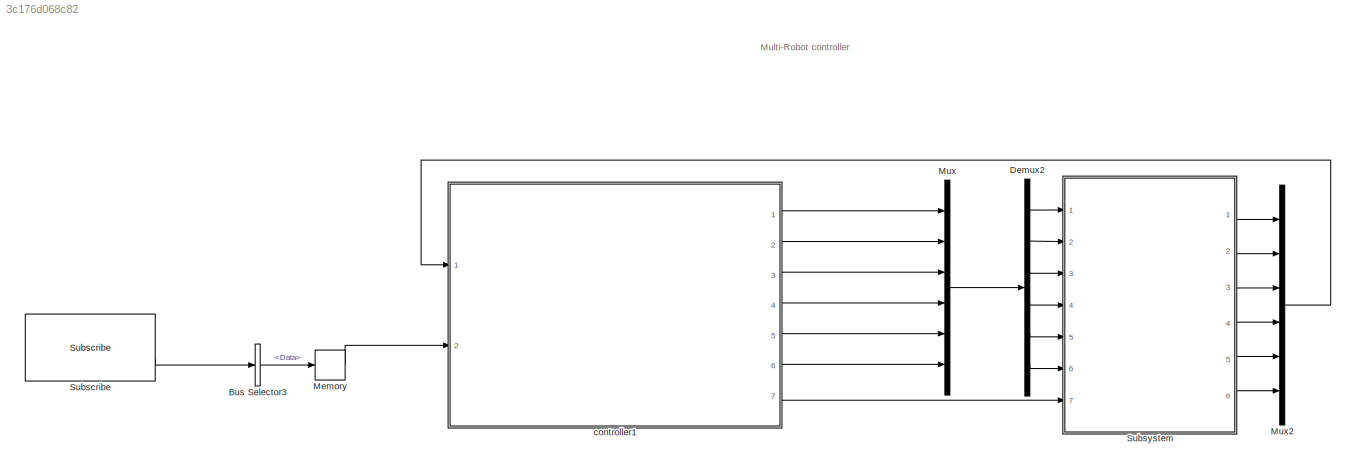
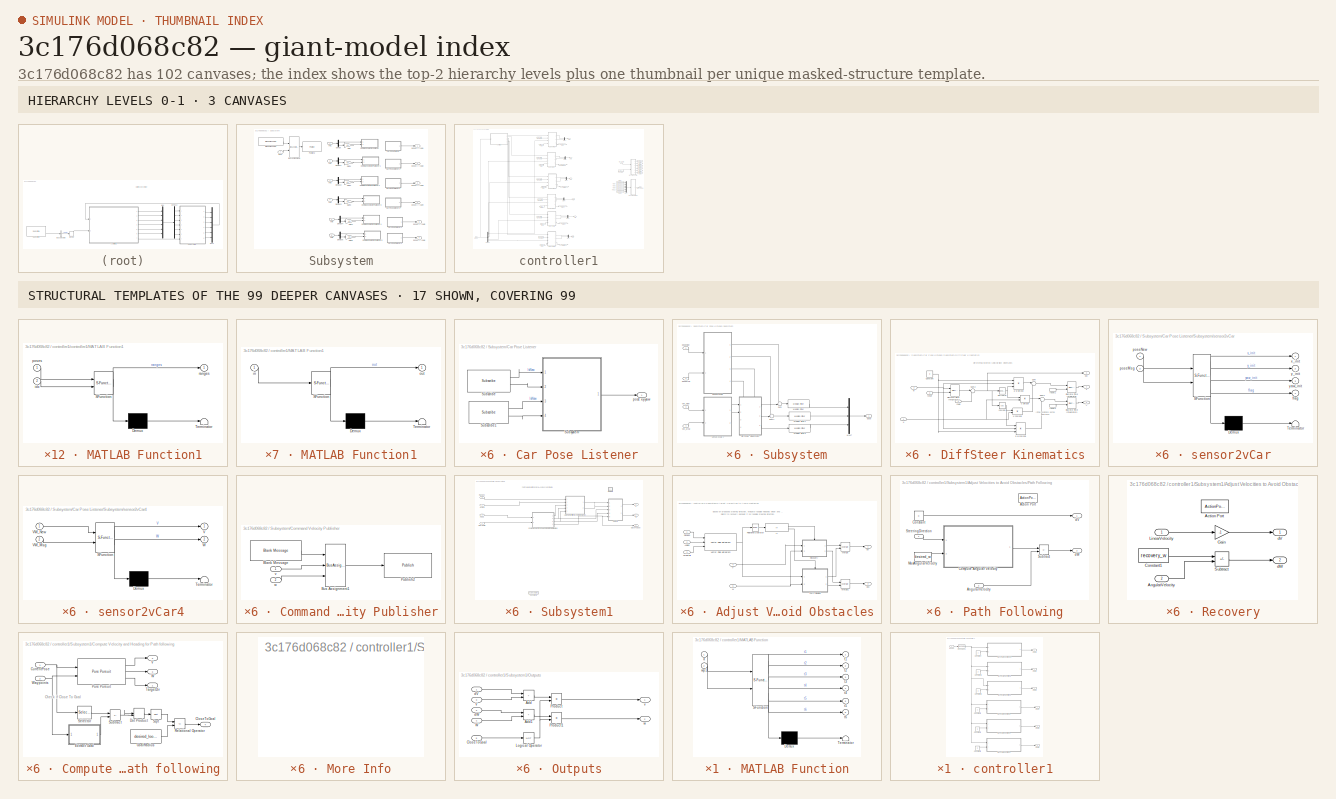
[diagram: thumbnail index - top-2 hierarchy levels (3 canvases) + 17 structural-template representatives of the remaining 99 canvases]
MODEL slx_3c176d068c82
KIND model
CONFIG AbsTol = auto
CONFIG EnableMultiTasking = on
CONFIG FixedStep = sampleTime
CONFIG InitFcn = sampleTime = 0.05;\nnMedianSize=3;\n %load boundaryMap\n\n% Robot parameters\nwheelRadius = 0.0303; \nrobotRadius = 0.8*0.116;   %小车在仿真中显示的圆形的半径大小\nTrackwidth = 0.0847;  %定义向量场直方图算法中小车的宽度\n\n% Lidar parameters\nsensorOffset = [0,0];\nscanAngles = linspace(-pi,pi,73)';%y = linspace(x1,x2,n) 生成 n 个点。这些点的间距为 (x2-x1)/(n-1)。\nmaxRange = 0.25;\n\n%%%%%%\nks=1;\n\n\nA=0.3;\nC=1.7;\nB=(A+C)/2;\n\nwp1=[A,A; B,A;  C,A; C,B;C,C; ...<+1023ch>
CONFIG MaxStep = auto
CONFIG MinStep = auto
CONFIG PreLoadFcn = %load emptyMap
CONFIG RelTol = 1e-3
CONFIG SampleTimeConstraint = Unconstrained
CONFIG SolverName = FixedStepDiscrete
CONFIG StartTime = 0.0
CONFIG StopTime = Inf
BLOCK [BusSelector] Bus Selector3
  OutputSignals = Data
  Ports = [1, 1]
BLOCK [Demux] Demux2
  Outputs = 6
  Ports = [1, 6]
BLOCK [Memory] Memory
  InitialCondition = 123567
BLOCK [Mux] Mux
  DisplayOption = bar
  Inputs = 6
  Ports = [6, 1]
BLOCK [Mux] Mux2
  DisplayOption = bar
  Inputs = 6
  Ports = [6, 1]
BLOCK [Reference] Subscribe  REF=robotlib/Subscribe
  Ports = [0, 2]
  SourceBlock = robotlib/Subscribe
  SourceProductBaseCode = RR
  SourceType = ROS Subscribe
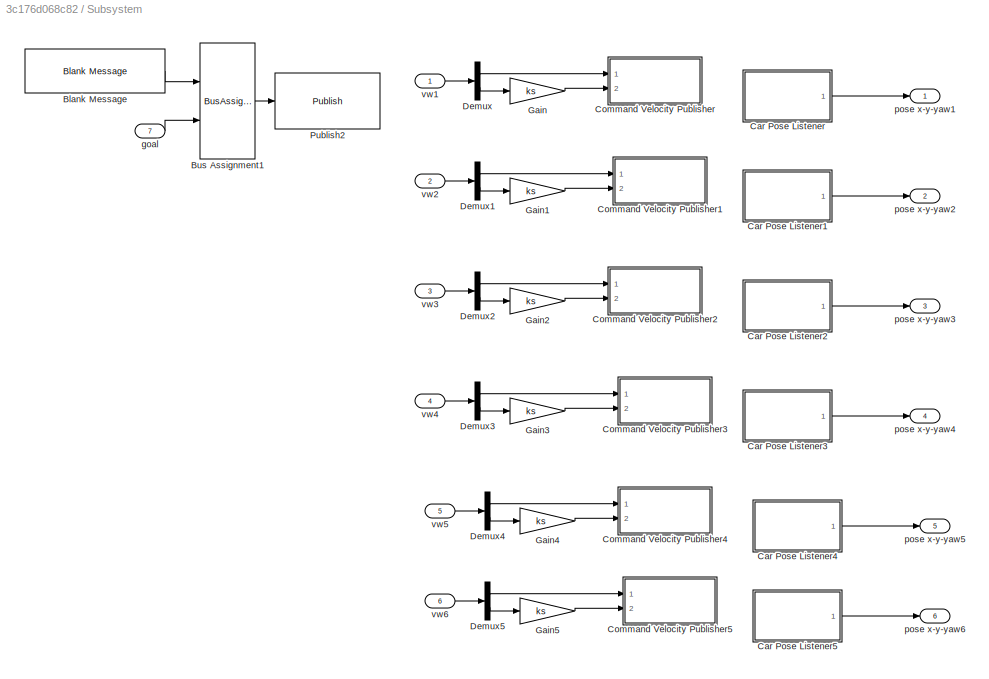
BLOCK [SubSystem] Subsystem
  Ports = [7, 6]
  RequestExecContextInheritance = off
BLOCK [Reference] Subsystem/Blank Message  REF=robotlib/Blank Message
  Ports = [0, 1]
  SourceBlock = robotlib/Blank Message
  SourceProductBaseCode = RR
  SourceType = ROS Blank Message
BLOCK [BusAssignment] Subsystem/Bus Assignment1
  AssignedSignals = Data
  DialogController = Simulink.DDGSource_BusAssignment
  Ports = [2, 1]
BLOCK [SubSystem] Subsystem/Car Pose Listener
  Ports = [0, 1]
  RequestExecContextInheritance = off
BLOCK [Reference] Subsystem/Car Pose Listener/Subscribe  REF=robotlib/Subscribe
  Ports = [0, 2]
  SourceBlock = robotlib/Subscribe
  SourceProductBaseCode = RR
  SourceType = ROS Subscribe
BLOCK [Reference] Subsystem/Car Pose Listener/Subscribe1  REF=robotlib/Subscribe
  Ports = [0, 2]
  SourceBlock = robotlib/Subscribe
  SourceProductBaseCode = RR
  SourceType = ROS Subscribe
BLOCK [SubSystem] Subsystem/Car Pose Listener/Subsystem
  Ports = [4, 1]
  RequestExecContextInheritance = off
BLOCK [SubSystem] Subsystem/Car Pose Listener/Subsystem/DiffSteer Kinematics
  PortSchema = {"entries":[{"content":{"sides":[{"content":{"connectorIds":["In1","In2"]},"type":"ConnectorPlacement.EquallySpacedRectSide","uuid":"0032ed68-1de4-4b1c-b237-9372fedc8a7a"},{"content":{"connectorIds":["Out1","Out2","Out3"],"side":"RIGHT"},"type":"ConnectorPlacement.EquallySpacedRectSide","uuid":"d0c861bd-7497-47fe-b183-36da470ee2c6"},{"content":{"connectorIds":["In3","In4"],"side":"TOP"},"type":"Co...<+271ch>  <repeated x6 — deduplicated; at blocks: DiffSteer Kinematics>
  Ports = [4, 3]
  RequestExecContextInheritance = off
BLOCK [Constant] Subsystem/Car Pose Listener/Subsystem/DiffSteer Kinematics/Constant
  Value = 0
BLOCK [DiscreteIntegrator] Subsystem/Car Pose Listener/Subsystem/DiffSteer Kinematics/Discrete-Time Integrator
  ExternalReset = falling
  ICPrevOutput = DiscIntNeverNeededParam
  ICPrevScaledInput = DiscIntNeverNeededParam
  InitialConditionSetting = Auto
  Ports = [2, 1]
  SampleTime = -1
BLOCK [DiscreteIntegrator] Subsystem/Car Pose Listener/Subsystem/DiffSteer Kinematics/Discrete-Time Integrator1
  ExternalReset = falling
  ICPrevOutput = DiscIntNeverNeededParam
  ICPrevScaledInput = DiscIntNeverNeededParam
  InitialConditionSetting = Auto
  Ports = [2, 1]
  SampleTime = -1
BLOCK [DiscreteIntegrator] Subsystem/Car Pose Listener/Subsystem/DiffSteer Kinematics/Discrete-Time Integrator2
  ExternalReset = falling
  ICPrevOutput = DiscIntNeverNeededParam
  ICPrevScaledInput = DiscIntNeverNeededParam
  InitialConditionSetting = Auto
  IntegratorMethod = Integration: Backward Euler
  Ports = [2, 1]
  SampleTime = -1
BLOCK [Sum] Subsystem/Car Pose Listener/Subsystem/DiffSteer Kinematics/Sum
  Inputs = |-+
  Ports = [2, 1]
  SaturateOnIntegerOverflow = on
BLOCK [Sum] Subsystem/Car Pose Listener/Subsystem/DiffSteer Kinematics/Sum1
  Inputs = |++
  Ports = [2, 1]
  SaturateOnIntegerOverflow = on
BLOCK [Sum] Subsystem/Car Pose Listener/Subsystem/DiffSteer Kinematics/Sum2
  Inputs = |++
  Ports = [2, 1]
BLOCK [Product] Subsystem/Car Pose Listener/Subsystem/DiffSteer Kinematics/a w cos(psi)
  Inputs = 3
  OutDataTypeStr = Inherit: Same as first input
  Ports = [3, 1]
  SaturateOnIntegerOverflow = on
BLOCK [Product] Subsystem/Car Pose Listener/Subsystem/DiffSteer Kinematics/a w sin(psi)
  Inputs = 3
  OutDataTypeStr = Inherit: Same as first input
  Ports = [3, 1]
  SaturateOnIntegerOverflow = on
BLOCK [Trigonometry] Subsystem/Car Pose Listener/Subsystem/DiffSteer Kinematics/cos(psi)
  Operator = cos
  Ports = [1, 1]
BLOCK [Outport] Subsystem/Car Pose Listener/Subsystem/DiffSteer Kinematics/psi
  Port = 3
BLOCK [Inport] Subsystem/Car Pose Listener/Subsystem/DiffSteer Kinematics/reset
  Port = 3
BLOCK [InportShadow] Subsystem/Car Pose Listener/Subsystem/DiffSteer Kinematics/reset1
  Port = 3
BLOCK [InportShadow] Subsystem/Car Pose Listener/Subsystem/DiffSteer Kinematics/reset2
  Port = 3
BLOCK [Trigonometry] Subsystem/Car Pose Listener/Subsystem/DiffSteer Kinematics/sin(theta)
  Ports = [1, 1]
BLOCK [Inport] Subsystem/Car Pose Listener/Subsystem/DiffSteer Kinematics/u
BLOCK [Product] Subsystem/Car Pose Listener/Subsystem/DiffSteer Kinematics/u cos(psi)
  OutDataTypeStr = Inherit: Same as first input
  Ports = [2, 1]
  SaturateOnIntegerOverflow = on
BLOCK [Product] Subsystem/Car Pose Listener/Subsystem/DiffSteer Kinematics/u sin(psi)
  OutDataTypeStr = Inherit: Same as first input
  Ports = [2, 1]
  SaturateOnIntegerOverflow = on
BLOCK [Inport] Subsystem/Car Pose Listener/Subsystem/DiffSteer Kinematics/w
  Port = 2
BLOCK [Outport] Subsystem/Car Pose Listener/Subsystem/DiffSteer Kinematics/x
BLOCK [Outport] Subsystem/Car Pose Listener/Subsystem/DiffSteer Kinematics/y
  Port = 2
BLOCK [Inport] Subsystem/Car Pose Listener/Subsystem/DiffSteer Kinematics/yaw0
  Port = 4
BLOCK [Reference] Subsystem/Car Pose Listener/Subsystem/Median Filter  REF=dspstat3/Median
Filter
  Ports = [1, 1]
  SourceBlock = dspstat3/Median\nFilter
  SourceProductBaseCode = DS
  SourceType = dsp.MedianFilter
BLOCK [Reference] Subsystem/Car Pose Listener/Subsystem/Median Filter1  REF=dspstat3/Median
Filter
  Ports = [1, 1]
  SourceBlock = dspstat3/Median\nFilter
  SourceProductBaseCode = DS
  SourceType = dsp.MedianFilter
BLOCK [Reference] Subsystem/Car Pose Listener/Subsystem/Median Filter2  REF=dspstat3/Median
Filter
  Ports = [1, 1]
  SourceBlock = dspstat3/Median\nFilter
  SourceProductBaseCode = DS
  SourceType = dsp.MedianFilter
BLOCK [Mux] Subsystem/Car Pose Listener/Subsystem/Mux7
  DisplayOption = bar
  Inputs = 3
  Ports = [3, 1]
BLOCK [Sum] Subsystem/Car Pose Listener/Subsystem/Sum
  Inputs = ++|
  Ports = [2, 1]
BLOCK [Sum] Subsystem/Car Pose Listener/Subsystem/Sum1
  Inputs = ++|
  Ports = [2, 1]
BLOCK [Inport] Subsystem/Car Pose Listener/Subsystem/VW_Msg
  Port = 4
BLOCK [Inport] Subsystem/Car Pose Listener/Subsystem/VW_New
  Port = 3
BLOCK [Outport] Subsystem/Car Pose Listener/Subsystem/pose
BLOCK [Inport] Subsystem/Car Pose Listener/Subsystem/poseMsg
  Port = 2
BLOCK [Inport] Subsystem/Car Pose Listener/Subsystem/poseNew
BLOCK [SubSystem] Subsystem/Car Pose Listener/Subsystem/sensor2vCar
  ErrorFcn = Stateflow.Translate.translate
  PermitHierarchicalResolution = ExplicitOnly
  Ports = [2, 4]
  RequestExecContextInheritance = off
  SFBlockType = MATLAB Function
  TreatAsAtomicUnit = on
BLOCK [Demux] Subsystem/Car Pose Listener/Subsystem/sensor2vCar/ Demux 
  Outputs = 1
  Ports = [1, 1]
BLOCK [S-Function] Subsystem/Car Pose Listener/Subsystem/sensor2vCar/ SFunction 
  EnableBusSupport = on
  FunctionName = sf_sfun
  PortCounts = [2 5]
  Ports = [2, 5]
  SFcnIsStateOwnerBlock = off
  SFunctionDeploymentMode = off
  Tag = Stateflow S-Function 12
BLOCK [Terminator] Subsystem/Car Pose Listener/Subsystem/sensor2vCar/ Terminator 
BLOCK [Outport] Subsystem/Car Pose Listener/Subsystem/sensor2vCar/flag
  Port = 4
BLOCK [Inport] Subsystem/Car Pose Listener/Subsystem/sensor2vCar/poseMsg
  Port = 2
BLOCK [Inport] Subsystem/Car Pose Listener/Subsystem/sensor2vCar/poseNew
BLOCK [Outport] Subsystem/Car Pose Listener/Subsystem/sensor2vCar/x_init
BLOCK [Outport] Subsystem/Car Pose Listener/Subsystem/sensor2vCar/y_init
  Port = 2
BLOCK [Outport] Subsystem/Car Pose Listener/Subsystem/sensor2vCar/yaw_init
  Port = 3
BLOCK [SubSystem] Subsystem/Car Pose Listener/Subsystem/sensor2vCar4
  ErrorFcn = Stateflow.Translate.translate
  PermitHierarchicalResolution = ExplicitOnly
  Ports = [2, 2]
  RequestExecContextInheritance = off
  SFBlockType = MATLAB Function
  TreatAsAtomicUnit = on
BLOCK [Demux] Subsystem/Car Pose Listener/Subsystem/sensor2vCar4/ Demux 
  Outputs = 1
  Ports = [1, 1]
BLOCK [S-Function] Subsystem/Car Pose Listener/Subsystem/sensor2vCar4/ SFunction 
  EnableBusSupport = on
  FunctionName = sf_sfun
  PortCounts = [2 3]
  Ports = [2, 3]
  SFcnIsStateOwnerBlock = off
  SFunctionDeploymentMode = off
  Tag = Stateflow S-Function 13
BLOCK [Terminator] Subsystem/Car Pose Listener/Subsystem/sensor2vCar4/ Terminator 
BLOCK [Outport] Subsystem/Car Pose Listener/Subsystem/sensor2vCar4/V
BLOCK [Inport] Subsystem/Car Pose Listener/Subsystem/sensor2vCar4/VW_Msg
  Port = 2
BLOCK [Inport] Subsystem/Car Pose Listener/Subsystem/sensor2vCar4/VW_New
BLOCK [Outport] Subsystem/Car Pose Listener/Subsystem/sensor2vCar4/W
  Port = 2
BLOCK [Outport] Subsystem/Car Pose Listener/pose x-y-yaw
BLOCK [SubSystem] Subsystem/Car Pose Listener1
  Ports = [0, 1]
  RequestExecContextInheritance = off
BLOCK [Reference] Subsystem/Car Pose Listener1/Subscribe  REF=robotlib/Subscribe
  Ports = [0, 2]
  SourceBlock = robotlib/Subscribe
  SourceProductBaseCode = RR
  SourceType = ROS Subscribe
BLOCK [Reference] Subsystem/Car Pose Listener1/Subscribe1  REF=robotlib/Subscribe
  Ports = [0, 2]
  SourceBlock = robotlib/Subscribe
  SourceProductBaseCode = RR
  SourceType = ROS Subscribe
BLOCK [SubSystem] Subsystem/Car Pose Listener1/Subsystem
  Ports = [4, 1]
  RequestExecContextInheritance = off
BLOCK [SubSystem] Subsystem/Car Pose Listener1/Subsystem/DiffSteer Kinematics
  Ports = [4, 3]
  RequestExecContextInheritance = off
BLOCK [Constant] Subsystem/Car Pose Listener1/Subsystem/DiffSteer Kinematics/Constant
  Value = 0
BLOCK [DiscreteIntegrator] Subsystem/Car Pose Listener1/Subsystem/DiffSteer Kinematics/Discrete-Time Integrator
  ExternalReset = falling
  ICPrevOutput = DiscIntNeverNeededParam
  ICPrevScaledInput = DiscIntNeverNeededParam
  InitialConditionSetting = Auto
  Ports = [2, 1]
  SampleTime = -1
BLOCK [DiscreteIntegrator] Subsystem/Car Pose Listener1/Subsystem/DiffSteer Kinematics/Discrete-Time Integrator1
  ExternalReset = falling
  ICPrevOutput = DiscIntNeverNeededParam
  ICPrevScaledInput = DiscIntNeverNeededParam
  InitialConditionSetting = Auto
  Ports = [2, 1]
  SampleTime = -1
BLOCK [DiscreteIntegrator] Subsystem/Car Pose Listener1/Subsystem/DiffSteer Kinematics/Discrete-Time Integrator2
  ExternalReset = falling
  ICPrevOutput = DiscIntNeverNeededParam
  ICPrevScaledInput = DiscIntNeverNeededParam
  InitialConditionSetting = Auto
  IntegratorMethod = Integration: Backward Euler
  Ports = [2, 1]
  SampleTime = -1
BLOCK [Sum] Subsystem/Car Pose Listener1/Subsystem/DiffSteer Kinematics/Sum
  Inputs = |-+
  Ports = [2, 1]
  SaturateOnIntegerOverflow = on
BLOCK [Sum] Subsystem/Car Pose Listener1/Subsystem/DiffSteer Kinematics/Sum1
  Inputs = |++
  Ports = [2, 1]
  SaturateOnIntegerOverflow = on
BLOCK [Sum] Subsystem/Car Pose Listener1/Subsystem/DiffSteer Kinematics/Sum2
  Inputs = |++
  Ports = [2, 1]
BLOCK [Product] Subsystem/Car Pose Listener1/Subsystem/DiffSteer Kinematics/a w cos(psi)
  Inputs = 3
  OutDataTypeStr = Inherit: Same as first input
  Ports = [3, 1]
  SaturateOnIntegerOverflow = on
BLOCK [Product] Subsystem/Car Pose Listener1/Subsystem/DiffSteer Kinematics/a w sin(psi)
  Inputs = 3
  OutDataTypeStr = Inherit: Same as first input
  Ports = [3, 1]
  SaturateOnIntegerOverflow = on
BLOCK [Trigonometry] Subsystem/Car Pose Listener1/Subsystem/DiffSteer Kinematics/cos(psi)
  Operator = cos
  Ports = [1, 1]
BLOCK [Outport] Subsystem/Car Pose Listener1/Subsystem/DiffSteer Kinematics/psi
  Port = 3
BLOCK [Inport] Subsystem/Car Pose Listener1/Subsystem/DiffSteer Kinematics/reset
  Port = 3
BLOCK [InportShadow] Subsystem/Car Pose Listener1/Subsystem/DiffSteer Kinematics/reset1
  Port = 3
BLOCK [InportShadow] Subsystem/Car Pose Listener1/Subsystem/DiffSteer Kinematics/reset2
  Port = 3
BLOCK [Trigonometry] Subsystem/Car Pose Listener1/Subsystem/DiffSteer Kinematics/sin(theta)
  Ports = [1, 1]
BLOCK [Inport] Subsystem/Car Pose Listener1/Subsystem/DiffSteer Kinematics/u
BLOCK [Product] Subsystem/Car Pose Listener1/Subsystem/DiffSteer Kinematics/u cos(psi)
  OutDataTypeStr = Inherit: Same as first input
  Ports = [2, 1]
  SaturateOnIntegerOverflow = on
BLOCK [Product] Subsystem/Car Pose Listener1/Subsystem/DiffSteer Kinematics/u sin(psi)
  OutDataTypeStr = Inherit: Same as first input
  Ports = [2, 1]
  SaturateOnIntegerOverflow = on
BLOCK [Inport] Subsystem/Car Pose Listener1/Subsystem/DiffSteer Kinematics/w
  Port = 2
BLOCK [Outport] Subsystem/Car Pose Listener1/Subsystem/DiffSteer Kinematics/x
BLOCK [Outport] Subsystem/Car Pose Listener1/Subsystem/DiffSteer Kinematics/y
  Port = 2
BLOCK [Inport] Subsystem/Car Pose Listener1/Subsystem/DiffSteer Kinematics/yaw0
  Port = 4
BLOCK [Reference] Subsystem/Car Pose Listener1/Subsystem/Median Filter  REF=dspstat3/Median
Filter
  Ports = [1, 1]
  SourceBlock = dspstat3/Median\nFilter
  SourceProductBaseCode = DS
  SourceType = dsp.MedianFilter
BLOCK [Reference] Subsystem/Car Pose Listener1/Subsystem/Median Filter1  REF=dspstat3/Median
Filter
  Ports = [1, 1]
  SourceBlock = dspstat3/Median\nFilter
  SourceProductBaseCode = DS
  SourceType = dsp.MedianFilter
BLOCK [Reference] Subsystem/Car Pose Listener1/Subsystem/Median Filter2  REF=dspstat3/Median
Filter
  Ports = [1, 1]
  SourceBlock = dspstat3/Median\nFilter
  SourceProductBaseCode = DS
  SourceType = dsp.MedianFilter
BLOCK [Mux] Subsystem/Car Pose Listener1/Subsystem/Mux7
  DisplayOption = bar
  Inputs = 3
  Ports = [3, 1]
BLOCK [Sum] Subsystem/Car Pose Listener1/Subsystem/Sum
  Inputs = ++|
  Ports = [2, 1]
BLOCK [Sum] Subsystem/Car Pose Listener1/Subsystem/Sum1
  Inputs = ++|
  Ports = [2, 1]
BLOCK [Inport] Subsystem/Car Pose Listener1/Subsystem/VW_Msg
  Port = 4
BLOCK [Inport] Subsystem/Car Pose Listener1/Subsystem/VW_New
  Port = 3
BLOCK [Outport] Subsystem/Car Pose Listener1/Subsystem/pose
BLOCK [Inport] Subsystem/Car Pose Listener1/Subsystem/poseMsg
  Port = 2
BLOCK [Inport] Subsystem/Car Pose Listener1/Subsystem/poseNew
BLOCK [SubSystem] Subsystem/Car Pose Listener1/Subsystem/sensor2vCar
  ErrorFcn = Stateflow.Translate.translate
  PermitHierarchicalResolution = ExplicitOnly
  Ports = [2, 4]
  RequestExecContextInheritance = off
  SFBlockType = MATLAB Function
  TreatAsAtomicUnit = on
BLOCK [Demux] Subsystem/Car Pose Listener1/Subsystem/sensor2vCar/ Demux 
  Outputs = 1
  Ports = [1, 1]
BLOCK [S-Function] Subsystem/Car Pose Listener1/Subsystem/sensor2vCar/ SFunction 
  EnableBusSupport = on
  FunctionName = sf_sfun
  PortCounts = [2 5]
  Ports = [2, 5]
  SFcnIsStateOwnerBlock = off
  SFunctionDeploymentMode = off
  Tag = Stateflow S-Function 10
BLOCK [Terminator] Subsystem/Car Pose Listener1/Subsystem/sensor2vCar/ Terminator 
BLOCK [Outport] Subsystem/Car Pose Listener1/Subsystem/sensor2vCar/flag
  Port = 4
BLOCK [Inport] Subsystem/Car Pose Listener1/Subsystem/sensor2vCar/poseMsg
  Port = 2
BLOCK [Inport] Subsystem/Car Pose Listener1/Subsystem/sensor2vCar/poseNew
BLOCK [Outport] Subsystem/Car Pose Listener1/Subsystem/sensor2vCar/x_init
BLOCK [Outport] Subsystem/Car Pose Listener1/Subsystem/sensor2vCar/y_init
  Port = 2
BLOCK [Outport] Subsystem/Car Pose Listener1/Subsystem/sensor2vCar/yaw_init
  Port = 3
BLOCK [SubSystem] Subsystem/Car Pose Listener1/Subsystem/sensor2vCar4
  ErrorFcn = Stateflow.Translate.translate
  PermitHierarchicalResolution = ExplicitOnly
  Ports = [2, 2]
  RequestExecContextInheritance = off
  SFBlockType = MATLAB Function
  TreatAsAtomicUnit = on
BLOCK [Demux] Subsystem/Car Pose Listener1/Subsystem/sensor2vCar4/ Demux 
  Outputs = 1
  Ports = [1, 1]
BLOCK [S-Function] Subsystem/Car Pose Listener1/Subsystem/sensor2vCar4/ SFunction 
  EnableBusSupport = on
  FunctionName = sf_sfun
  PortCounts = [2 3]
  Ports = [2, 3]
  SFcnIsStateOwnerBlock = off
  SFunctionDeploymentMode = off
  Tag = Stateflow S-Function 11
BLOCK [Terminator] Subsystem/Car Pose Listener1/Subsystem/sensor2vCar4/ Terminator 
BLOCK [Outport] Subsystem/Car Pose Listener1/Subsystem/sensor2vCar4/V
BLOCK [Inport] Subsystem/Car Pose Listener1/Subsystem/sensor2vCar4/VW_Msg
  Port = 2
BLOCK [Inport] Subsystem/Car Pose Listener1/Subsystem/sensor2vCar4/VW_New
BLOCK [Outport] Subsystem/Car Pose Listener1/Subsystem/sensor2vCar4/W
  Port = 2
BLOCK [Outport] Subsystem/Car Pose Listener1/pose x-y-yaw
BLOCK [SubSystem] Subsystem/Car Pose Listener2
  Ports = [0, 1]
  RequestExecContextInheritance = off
BLOCK [Reference] Subsystem/Car Pose Listener2/Subscribe  REF=robotlib/Subscribe
  Ports = [0, 2]
  SourceBlock = robotlib/Subscribe
  SourceProductBaseCode = RR
  SourceType = ROS Subscribe
BLOCK [Reference] Subsystem/Car Pose Listener2/Subscribe1  REF=robotlib/Subscribe
  Ports = [0, 2]
  SourceBlock = robotlib/Subscribe
  SourceProductBaseCode = RR
  SourceType = ROS Subscribe
BLOCK [SubSystem] Subsystem/Car Pose Listener2/Subsystem
  Ports = [4, 1]
  RequestExecContextInheritance = off
BLOCK [SubSystem] Subsystem/Car Pose Listener2/Subsystem/DiffSteer Kinematics
  Ports = [4, 3]
  RequestExecContextInheritance = off
BLOCK [Constant] Subsystem/Car Pose Listener2/Subsystem/DiffSteer Kinematics/Constant
  Value = 0
BLOCK [DiscreteIntegrator] Subsystem/Car Pose Listener2/Subsystem/DiffSteer Kinematics/Discrete-Time Integrator
  ExternalReset = falling
  ICPrevOutput = DiscIntNeverNeededParam
  ICPrevScaledInput = DiscIntNeverNeededParam
  InitialConditionSetting = Auto
  Ports = [2, 1]
  SampleTime = -1
BLOCK [DiscreteIntegrator] Subsystem/Car Pose Listener2/Subsystem/DiffSteer Kinematics/Discrete-Time Integrator1
  ExternalReset = falling
  ICPrevOutput = DiscIntNeverNeededParam
  ICPrevScaledInput = DiscIntNeverNeededParam
  InitialConditionSetting = Auto
  Ports = [2, 1]
  SampleTime = -1
BLOCK [DiscreteIntegrator] Subsystem/Car Pose Listener2/Subsystem/DiffSteer Kinematics/Discrete-Time Integrator2
  ExternalReset = falling
  ICPrevOutput = DiscIntNeverNeededParam
  ICPrevScaledInput = DiscIntNeverNeededParam
  InitialConditionSetting = Auto
  IntegratorMethod = Integration: Backward Euler
  Ports = [2, 1]
  SampleTime = -1
BLOCK [Sum] Subsystem/Car Pose Listener2/Subsystem/DiffSteer Kinematics/Sum
  Inputs = |-+
  Ports = [2, 1]
  SaturateOnIntegerOverflow = on
BLOCK [Sum] Subsystem/Car Pose Listener2/Subsystem/DiffSteer Kinematics/Sum1
  Inputs = |++
  Ports = [2, 1]
  SaturateOnIntegerOverflow = on
BLOCK [Sum] Subsystem/Car Pose Listener2/Subsystem/DiffSteer Kinematics/Sum2
  Inputs = |++
  Ports = [2, 1]
BLOCK [Product] Subsystem/Car Pose Listener2/Subsystem/DiffSteer Kinematics/a w cos(psi)
  Inputs = 3
  OutDataTypeStr = Inherit: Same as first input
  Ports = [3, 1]
  SaturateOnIntegerOverflow = on
BLOCK [Product] Subsystem/Car Pose Listener2/Subsystem/DiffSteer Kinematics/a w sin(psi)
  Inputs = 3
  OutDataTypeStr = Inherit: Same as first input
  Ports = [3, 1]
  SaturateOnIntegerOverflow = on
BLOCK [Trigonometry] Subsystem/Car Pose Listener2/Subsystem/DiffSteer Kinematics/cos(psi)
  Operator = cos
  Ports = [1, 1]
BLOCK [Outport] Subsystem/Car Pose Listener2/Subsystem/DiffSteer Kinematics/psi
  Port = 3
BLOCK [Inport] Subsystem/Car Pose Listener2/Subsystem/DiffSteer Kinematics/reset
  Port = 3
BLOCK [InportShadow] Subsystem/Car Pose Listener2/Subsystem/DiffSteer Kinematics/reset1
  Port = 3
BLOCK [InportShadow] Subsystem/Car Pose Listener2/Subsystem/DiffSteer Kinematics/reset2
  Port = 3
BLOCK [Trigonometry] Subsystem/Car Pose Listener2/Subsystem/DiffSteer Kinematics/sin(theta)
  Ports = [1, 1]
BLOCK [Inport] Subsystem/Car Pose Listener2/Subsystem/DiffSteer Kinematics/u
BLOCK [Product] Subsystem/Car Pose Listener2/Subsystem/DiffSteer Kinematics/u cos(psi)
  OutDataTypeStr = Inherit: Same as first input
  Ports = [2, 1]
  SaturateOnIntegerOverflow = on
BLOCK [Product] Subsystem/Car Pose Listener2/Subsystem/DiffSteer Kinematics/u sin(psi)
  OutDataTypeStr = Inherit: Same as first input
  Ports = [2, 1]
  SaturateOnIntegerOverflow = on
BLOCK [Inport] Subsystem/Car Pose Listener2/Subsystem/DiffSteer Kinematics/w
  Port = 2
BLOCK [Outport] Subsystem/Car Pose Listener2/Subsystem/DiffSteer Kinematics/x
BLOCK [Outport] Subsystem/Car Pose Listener2/Subsystem/DiffSteer Kinematics/y
  Port = 2
BLOCK [Inport] Subsystem/Car Pose Listener2/Subsystem/DiffSteer Kinematics/yaw0
  Port = 4
BLOCK [Reference] Subsystem/Car Pose Listener2/Subsystem/Median Filter  REF=dspstat3/Median
Filter
  Ports = [1, 1]
  SourceBlock = dspstat3/Median\nFilter
  SourceProductBaseCode = DS
  SourceType = dsp.MedianFilter
BLOCK [Reference] Subsystem/Car Pose Listener2/Subsystem/Median Filter1  REF=dspstat3/Median
Filter
  Ports = [1, 1]
  SourceBlock = dspstat3/Median\nFilter
  SourceProductBaseCode = DS
  SourceType = dsp.MedianFilter
BLOCK [Reference] Subsystem/Car Pose Listener2/Subsystem/Median Filter2  REF=dspstat3/Median
Filter
  Ports = [1, 1]
  SourceBlock = dspstat3/Median\nFilter
  SourceProductBaseCode = DS
  SourceType = dsp.MedianFilter
BLOCK [Mux] Subsystem/Car Pose Listener2/Subsystem/Mux7
  DisplayOption = bar
  Inputs = 3
  Ports = [3, 1]
BLOCK [Sum] Subsystem/Car Pose Listener2/Subsystem/Sum
  Inputs = ++|
  Ports = [2, 1]
BLOCK [Sum] Subsystem/Car Pose Listener2/Subsystem/Sum1
  Inputs = ++|
  Ports = [2, 1]
BLOCK [Inport] Subsystem/Car Pose Listener2/Subsystem/VW_Msg
  Port = 4
BLOCK [Inport] Subsystem/Car Pose Listener2/Subsystem/VW_New
  Port = 3
BLOCK [Outport] Subsystem/Car Pose Listener2/Subsystem/pose
BLOCK [Inport] Subsystem/Car Pose Listener2/Subsystem/poseMsg
  Port = 2
BLOCK [Inport] Subsystem/Car Pose Listener2/Subsystem/poseNew
BLOCK [SubSystem] Subsystem/Car Pose Listener2/Subsystem/sensor2vCar
  ErrorFcn = Stateflow.Translate.translate
  PermitHierarchicalResolution = ExplicitOnly
  Ports = [2, 4]
  RequestExecContextInheritance = off
  SFBlockType = MATLAB Function
  TreatAsAtomicUnit = on
BLOCK [Demux] Subsystem/Car Pose Listener2/Subsystem/sensor2vCar/ Demux 
  Outputs = 1
  Ports = [1, 1]
BLOCK [S-Function] Subsystem/Car Pose Listener2/Subsystem/sensor2vCar/ SFunction 
  EnableBusSupport = on
  FunctionName = sf_sfun
  PortCounts = [2 5]
  Ports = [2, 5]
  SFcnIsStateOwnerBlock = off
  SFunctionDeploymentMode = off
  Tag = Stateflow S-Function 8
BLOCK [Terminator] Subsystem/Car Pose Listener2/Subsystem/sensor2vCar/ Terminator 
BLOCK [Outport] Subsystem/Car Pose Listener2/Subsystem/sensor2vCar/flag
  Port = 4
BLOCK [Inport] Subsystem/Car Pose Listener2/Subsystem/sensor2vCar/poseMsg
  Port = 2
BLOCK [Inport] Subsystem/Car Pose Listener2/Subsystem/sensor2vCar/poseNew
BLOCK [Outport] Subsystem/Car Pose Listener2/Subsystem/sensor2vCar/x_init
BLOCK [Outport] Subsystem/Car Pose Listener2/Subsystem/sensor2vCar/y_init
  Port = 2
BLOCK [Outport] Subsystem/Car Pose Listener2/Subsystem/sensor2vCar/yaw_init
  Port = 3
BLOCK [SubSystem] Subsystem/Car Pose Listener2/Subsystem/sensor2vCar4
  ErrorFcn = Stateflow.Translate.translate
  PermitHierarchicalResolution = ExplicitOnly
  Ports = [2, 2]
  RequestExecContextInheritance = off
  SFBlockType = MATLAB Function
  TreatAsAtomicUnit = on
BLOCK [Demux] Subsystem/Car Pose Listener2/Subsystem/sensor2vCar4/ Demux 
  Outputs = 1
  Ports = [1, 1]
BLOCK [S-Function] Subsystem/Car Pose Listener2/Subsystem/sensor2vCar4/ SFunction 
  EnableBusSupport = on
  FunctionName = sf_sfun
  PortCounts = [2 3]
  Ports = [2, 3]
  SFcnIsStateOwnerBlock = off
  SFunctionDeploymentMode = off
  Tag = Stateflow S-Function 9
BLOCK [Terminator] Subsystem/Car Pose Listener2/Subsystem/sensor2vCar4/ Terminator 
BLOCK [Outport] Subsystem/Car Pose Listener2/Subsystem/sensor2vCar4/V
BLOCK [Inport] Subsystem/Car Pose Listener2/Subsystem/sensor2vCar4/VW_Msg
  Port = 2
BLOCK [Inport] Subsystem/Car Pose Listener2/Subsystem/sensor2vCar4/VW_New
BLOCK [Outport] Subsystem/Car Pose Listener2/Subsystem/sensor2vCar4/W
  Port = 2
BLOCK [Outport] Subsystem/Car Pose Listener2/pose x-y-yaw
BLOCK [SubSystem] Subsystem/Car Pose Listener3
  Ports = [0, 1]
  RequestExecContextInheritance = off
BLOCK [Reference] Subsystem/Car Pose Listener3/Subscribe  REF=robotlib/Subscribe
  Ports = [0, 2]
  SourceBlock = robotlib/Subscribe
  SourceProductBaseCode = RR
  SourceType = ROS Subscribe
BLOCK [Reference] Subsystem/Car Pose Listener3/Subscribe1  REF=robotlib/Subscribe
  Ports = [0, 2]
  SourceBlock = robotlib/Subscribe
  SourceProductBaseCode = RR
  SourceType = ROS Subscribe
BLOCK [SubSystem] Subsystem/Car Pose Listener3/Subsystem
  Ports = [4, 1]
  RequestExecContextInheritance = off
BLOCK [SubSystem] Subsystem/Car Pose Listener3/Subsystem/DiffSteer Kinematics
  Ports = [4, 3]
  RequestExecContextInheritance = off
BLOCK [Constant] Subsystem/Car Pose Listener3/Subsystem/DiffSteer Kinematics/Constant
  Value = 0
BLOCK [DiscreteIntegrator] Subsystem/Car Pose Listener3/Subsystem/DiffSteer Kinematics/Discrete-Time Integrator
  ExternalReset = falling
  ICPrevOutput = DiscIntNeverNeededParam
  ICPrevScaledInput = DiscIntNeverNeededParam
  InitialConditionSetting = Auto
  Ports = [2, 1]
  SampleTime = -1
BLOCK [DiscreteIntegrator] Subsystem/Car Pose Listener3/Subsystem/DiffSteer Kinematics/Discrete-Time Integrator1
  ExternalReset = falling
  ICPrevOutput = DiscIntNeverNeededParam
  ICPrevScaledInput = DiscIntNeverNeededParam
  InitialConditionSetting = Auto
  Ports = [2, 1]
  SampleTime = -1
BLOCK [DiscreteIntegrator] Subsystem/Car Pose Listener3/Subsystem/DiffSteer Kinematics/Discrete-Time Integrator2
  ExternalReset = falling
  ICPrevOutput = DiscIntNeverNeededParam
  ICPrevScaledInput = DiscIntNeverNeededParam
  InitialConditionSetting = Auto
  IntegratorMethod = Integration: Backward Euler
  Ports = [2, 1]
  SampleTime = -1
BLOCK [Sum] Subsystem/Car Pose Listener3/Subsystem/DiffSteer Kinematics/Sum
  Inputs = |-+
  Ports = [2, 1]
  SaturateOnIntegerOverflow = on
BLOCK [Sum] Subsystem/Car Pose Listener3/Subsystem/DiffSteer Kinematics/Sum1
  Inputs = |++
  Ports = [2, 1]
  SaturateOnIntegerOverflow = on
BLOCK [Sum] Subsystem/Car Pose Listener3/Subsystem/DiffSteer Kinematics/Sum2
  Inputs = |++
  Ports = [2, 1]
BLOCK [Product] Subsystem/Car Pose Listener3/Subsystem/DiffSteer Kinematics/a w cos(psi)
  Inputs = 3
  OutDataTypeStr = Inherit: Same as first input
  Ports = [3, 1]
  SaturateOnIntegerOverflow = on
BLOCK [Product] Subsystem/Car Pose Listener3/Subsystem/DiffSteer Kinematics/a w sin(psi)
  Inputs = 3
  OutDataTypeStr = Inherit: Same as first input
  Ports = [3, 1]
  SaturateOnIntegerOverflow = on
BLOCK [Trigonometry] Subsystem/Car Pose Listener3/Subsystem/DiffSteer Kinematics/cos(psi)
  Operator = cos
  Ports = [1, 1]
BLOCK [Outport] Subsystem/Car Pose Listener3/Subsystem/DiffSteer Kinematics/psi
  Port = 3
BLOCK [Inport] Subsystem/Car Pose Listener3/Subsystem/DiffSteer Kinematics/reset
  Port = 3
BLOCK [InportShadow] Subsystem/Car Pose Listener3/Subsystem/DiffSteer Kinematics/reset1
  Port = 3
BLOCK [InportShadow] Subsystem/Car Pose Listener3/Subsystem/DiffSteer Kinematics/reset2
  Port = 3
BLOCK [Trigonometry] Subsystem/Car Pose Listener3/Subsystem/DiffSteer Kinematics/sin(theta)
  Ports = [1, 1]
BLOCK [Inport] Subsystem/Car Pose Listener3/Subsystem/DiffSteer Kinematics/u
BLOCK [Product] Subsystem/Car Pose Listener3/Subsystem/DiffSteer Kinematics/u cos(psi)
  OutDataTypeStr = Inherit: Same as first input
  Ports = [2, 1]
  SaturateOnIntegerOverflow = on
BLOCK [Product] Subsystem/Car Pose Listener3/Subsystem/DiffSteer Kinematics/u sin(psi)
  OutDataTypeStr = Inherit: Same as first input
  Ports = [2, 1]
  SaturateOnIntegerOverflow = on
BLOCK [Inport] Subsystem/Car Pose Listener3/Subsystem/DiffSteer Kinematics/w
  Port = 2
BLOCK [Outport] Subsystem/Car Pose Listener3/Subsystem/DiffSteer Kinematics/x
BLOCK [Outport] Subsystem/Car Pose Listener3/Subsystem/DiffSteer Kinematics/y
  Port = 2
BLOCK [Inport] Subsystem/Car Pose Listener3/Subsystem/DiffSteer Kinematics/yaw0
  Port = 4
BLOCK [Reference] Subsystem/Car Pose Listener3/Subsystem/Median Filter  REF=dspstat3/Median
Filter
  Ports = [1, 1]
  SourceBlock = dspstat3/Median\nFilter
  SourceProductBaseCode = DS
  SourceType = dsp.MedianFilter
BLOCK [Reference] Subsystem/Car Pose Listener3/Subsystem/Median Filter1  REF=dspstat3/Median
Filter
  Ports = [1, 1]
  SourceBlock = dspstat3/Median\nFilter
  SourceProductBaseCode = DS
  SourceType = dsp.MedianFilter
BLOCK [Reference] Subsystem/Car Pose Listener3/Subsystem/Median Filter2  REF=dspstat3/Median
Filter
  Ports = [1, 1]
  SourceBlock = dspstat3/Median\nFilter
  SourceProductBaseCode = DS
  SourceType = dsp.MedianFilter
BLOCK [Mux] Subsystem/Car Pose Listener3/Subsystem/Mux7
  DisplayOption = bar
  Inputs = 3
  Ports = [3, 1]
BLOCK [Sum] Subsystem/Car Pose Listener3/Subsystem/Sum
  Inputs = ++|
  Ports = [2, 1]
BLOCK [Sum] Subsystem/Car Pose Listener3/Subsystem/Sum1
  Inputs = ++|
  Ports = [2, 1]
BLOCK [Inport] Subsystem/Car Pose Listener3/Subsystem/VW_Msg
  Port = 4
BLOCK [Inport] Subsystem/Car Pose Listener3/Subsystem/VW_New
  Port = 3
BLOCK [Outport] Subsystem/Car Pose Listener3/Subsystem/pose
BLOCK [Inport] Subsystem/Car Pose Listener3/Subsystem/poseMsg
  Port = 2
BLOCK [Inport] Subsystem/Car Pose Listener3/Subsystem/poseNew
BLOCK [SubSystem] Subsystem/Car Pose Listener3/Subsystem/sensor2vCar
  ErrorFcn = Stateflow.Translate.translate
  PermitHierarchicalResolution = ExplicitOnly
  Ports = [2, 4]
  RequestExecContextInheritance = off
  SFBlockType = MATLAB Function
  TreatAsAtomicUnit = on
BLOCK [Demux] Subsystem/Car Pose Listener3/Subsystem/sensor2vCar/ Demux 
  Outputs = 1
  Ports = [1, 1]
BLOCK [S-Function] Subsystem/Car Pose Listener3/Subsystem/sensor2vCar/ SFunction 
  EnableBusSupport = on
  FunctionName = sf_sfun
  PortCounts = [2 5]
  Ports = [2, 5]
  SFcnIsStateOwnerBlock = off
  SFunctionDeploymentMode = off
  Tag = Stateflow S-Function 1
BLOCK [Terminator] Subsystem/Car Pose Listener3/Subsystem/sensor2vCar/ Terminator 
BLOCK [Outport] Subsystem/Car Pose Listener3/Subsystem/sensor2vCar/flag
  Port = 4
BLOCK [Inport] Subsystem/Car Pose Listener3/Subsystem/sensor2vCar/poseMsg
  Port = 2
BLOCK [Inport] Subsystem/Car Pose Listener3/Subsystem/sensor2vCar/poseNew
BLOCK [Outport] Subsystem/Car Pose Listener3/Subsystem/sensor2vCar/x_init
BLOCK [Outport] Subsystem/Car Pose Listener3/Subsystem/sensor2vCar/y_init
  Port = 2
BLOCK [Outport] Subsystem/Car Pose Listener3/Subsystem/sensor2vCar/yaw_init
  Port = 3
BLOCK [SubSystem] Subsystem/Car Pose Listener3/Subsystem/sensor2vCar4
  ErrorFcn = Stateflow.Translate.translate
  PermitHierarchicalResolution = ExplicitOnly
  Ports = [2, 2]
  RequestExecContextInheritance = off
  SFBlockType = MATLAB Function
  TreatAsAtomicUnit = on
BLOCK [Demux] Subsystem/Car Pose Listener3/Subsystem/sensor2vCar4/ Demux 
  Outputs = 1
  Ports = [1, 1]
BLOCK [S-Function] Subsystem/Car Pose Listener3/Subsystem/sensor2vCar4/ SFunction 
  EnableBusSupport = on
  FunctionName = sf_sfun
  PortCounts = [2 3]
  Ports = [2, 3]
  SFcnIsStateOwnerBlock = off
  SFunctionDeploymentMode = off
  Tag = Stateflow S-Function 2
BLOCK [Terminator] Subsystem/Car Pose Listener3/Subsystem/sensor2vCar4/ Terminator 
BLOCK [Outport] Subsystem/Car Pose Listener3/Subsystem/sensor2vCar4/V
BLOCK [Inport] Subsystem/Car Pose Listener3/Subsystem/sensor2vCar4/VW_Msg
  Port = 2
BLOCK [Inport] Subsystem/Car Pose Listener3/Subsystem/sensor2vCar4/VW_New
BLOCK [Outport] Subsystem/Car Pose Listener3/Subsystem/sensor2vCar4/W
  Port = 2
BLOCK [Outport] Subsystem/Car Pose Listener3/pose x-y-yaw
BLOCK [SubSystem] Subsystem/Car Pose Listener4
  Ports = [0, 1]
  RequestExecContextInheritance = off
BLOCK [Reference] Subsystem/Car Pose Listener4/Subscribe  REF=robotlib/Subscribe
  Ports = [0, 2]
  SourceBlock = robotlib/Subscribe
  SourceProductBaseCode = RR
  SourceType = ROS Subscribe
BLOCK [Reference] Subsystem/Car Pose Listener4/Subscribe1  REF=robotlib/Subscribe
  Ports = [0, 2]
  SourceBlock = robotlib/Subscribe
  SourceProductBaseCode = RR
  SourceType = ROS Subscribe
BLOCK [SubSystem] Subsystem/Car Pose Listener4/Subsystem
  Ports = [4, 1]
  RequestExecContextInheritance = off
BLOCK [SubSystem] Subsystem/Car Pose Listener4/Subsystem/DiffSteer Kinematics
  Ports = [4, 3]
  RequestExecContextInheritance = off
BLOCK [Constant] Subsystem/Car Pose Listener4/Subsystem/DiffSteer Kinematics/Constant
  Value = 0
BLOCK [DiscreteIntegrator] Subsystem/Car Pose Listener4/Subsystem/DiffSteer Kinematics/Discrete-Time Integrator
  ExternalReset = falling
  ICPrevOutput = DiscIntNeverNeededParam
  ICPrevScaledInput = DiscIntNeverNeededParam
  InitialConditionSetting = Auto
  Ports = [2, 1]
  SampleTime = -1
BLOCK [DiscreteIntegrator] Subsystem/Car Pose Listener4/Subsystem/DiffSteer Kinematics/Discrete-Time Integrator1
  ExternalReset = falling
  ICPrevOutput = DiscIntNeverNeededParam
  ICPrevScaledInput = DiscIntNeverNeededParam
  InitialConditionSetting = Auto
  Ports = [2, 1]
  SampleTime = -1
BLOCK [DiscreteIntegrator] Subsystem/Car Pose Listener4/Subsystem/DiffSteer Kinematics/Discrete-Time Integrator2
  ExternalReset = falling
  ICPrevOutput = DiscIntNeverNeededParam
  ICPrevScaledInput = DiscIntNeverNeededParam
  InitialConditionSetting = Auto
  IntegratorMethod = Integration: Backward Euler
  Ports = [2, 1]
  SampleTime = -1
BLOCK [Sum] Subsystem/Car Pose Listener4/Subsystem/DiffSteer Kinematics/Sum
  Inputs = |-+
  Ports = [2, 1]
  SaturateOnIntegerOverflow = on
BLOCK [Sum] Subsystem/Car Pose Listener4/Subsystem/DiffSteer Kinematics/Sum1
  Inputs = |++
  Ports = [2, 1]
  SaturateOnIntegerOverflow = on
BLOCK [Sum] Subsystem/Car Pose Listener4/Subsystem/DiffSteer Kinematics/Sum2
  Inputs = |++
  Ports = [2, 1]
BLOCK [Product] Subsystem/Car Pose Listener4/Subsystem/DiffSteer Kinematics/a w cos(psi)
  Inputs = 3
  OutDataTypeStr = Inherit: Same as first input
  Ports = [3, 1]
  SaturateOnIntegerOverflow = on
BLOCK [Product] Subsystem/Car Pose Listener4/Subsystem/DiffSteer Kinematics/a w sin(psi)
  Inputs = 3
  OutDataTypeStr = Inherit: Same as first input
  Ports = [3, 1]
  SaturateOnIntegerOverflow = on
BLOCK [Trigonometry] Subsystem/Car Pose Listener4/Subsystem/DiffSteer Kinematics/cos(psi)
  Operator = cos
  Ports = [1, 1]
BLOCK [Outport] Subsystem/Car Pose Listener4/Subsystem/DiffSteer Kinematics/psi
  Port = 3
BLOCK [Inport] Subsystem/Car Pose Listener4/Subsystem/DiffSteer Kinematics/reset
  Port = 3
BLOCK [InportShadow] Subsystem/Car Pose Listener4/Subsystem/DiffSteer Kinematics/reset1
  Port = 3
BLOCK [InportShadow] Subsystem/Car Pose Listener4/Subsystem/DiffSteer Kinematics/reset2
  Port = 3
BLOCK [Trigonometry] Subsystem/Car Pose Listener4/Subsystem/DiffSteer Kinematics/sin(theta)
  Ports = [1, 1]
BLOCK [Inport] Subsystem/Car Pose Listener4/Subsystem/DiffSteer Kinematics/u
BLOCK [Product] Subsystem/Car Pose Listener4/Subsystem/DiffSteer Kinematics/u cos(psi)
  OutDataTypeStr = Inherit: Same as first input
  Ports = [2, 1]
  SaturateOnIntegerOverflow = on
BLOCK [Product] Subsystem/Car Pose Listener4/Subsystem/DiffSteer Kinematics/u sin(psi)
  OutDataTypeStr = Inherit: Same as first input
  Ports = [2, 1]
  SaturateOnIntegerOverflow = on
BLOCK [Inport] Subsystem/Car Pose Listener4/Subsystem/DiffSteer Kinematics/w
  Port = 2
BLOCK [Outport] Subsystem/Car Pose Listener4/Subsystem/DiffSteer Kinematics/x
BLOCK [Outport] Subsystem/Car Pose Listener4/Subsystem/DiffSteer Kinematics/y
  Port = 2
BLOCK [Inport] Subsystem/Car Pose Listener4/Subsystem/DiffSteer Kinematics/yaw0
  Port = 4
BLOCK [Reference] Subsystem/Car Pose Listener4/Subsystem/Median Filter  REF=dspstat3/Median
Filter
  Ports = [1, 1]
  SourceBlock = dspstat3/Median\nFilter
  SourceProductBaseCode = DS
  SourceType = dsp.MedianFilter
BLOCK [Reference] Subsystem/Car Pose Listener4/Subsystem/Median Filter1  REF=dspstat3/Median
Filter
  Ports = [1, 1]
  SourceBlock = dspstat3/Median\nFilter
  SourceProductBaseCode = DS
  SourceType = dsp.MedianFilter
BLOCK [Reference] Subsystem/Car Pose Listener4/Subsystem/Median Filter2  REF=dspstat3/Median
Filter
  Ports = [1, 1]
  SourceBlock = dspstat3/Median\nFilter
  SourceProductBaseCode = DS
  SourceType = dsp.MedianFilter
BLOCK [Mux] Subsystem/Car Pose Listener4/Subsystem/Mux7
  DisplayOption = bar
  Inputs = 3
  Ports = [3, 1]
BLOCK [Sum] Subsystem/Car Pose Listener4/Subsystem/Sum
  Inputs = ++|
  Ports = [2, 1]
BLOCK [Sum] Subsystem/Car Pose Listener4/Subsystem/Sum1
  Inputs = ++|
  Ports = [2, 1]
BLOCK [Inport] Subsystem/Car Pose Listener4/Subsystem/VW_Msg
  Port = 4
BLOCK [Inport] Subsystem/Car Pose Listener4/Subsystem/VW_New
  Port = 3
BLOCK [Outport] Subsystem/Car Pose Listener4/Subsystem/pose
BLOCK [Inport] Subsystem/Car Pose Listener4/Subsystem/poseMsg
  Port = 2
BLOCK [Inport] Subsystem/Car Pose Listener4/Subsystem/poseNew
BLOCK [SubSystem] Subsystem/Car Pose Listener4/Subsystem/sensor2vCar
  ErrorFcn = Stateflow.Translate.translate
  PermitHierarchicalResolution = ExplicitOnly
  Ports = [2, 4]
  RequestExecContextInheritance = off
  SFBlockType = MATLAB Function
  TreatAsAtomicUnit = on
BLOCK [Demux] Subsystem/Car Pose Listener4/Subsystem/sensor2vCar/ Demux 
  Outputs = 1
  Ports = [1, 1]
BLOCK [S-Function] Subsystem/Car Pose Listener4/Subsystem/sensor2vCar/ SFunction 
  EnableBusSupport = on
  FunctionName = sf_sfun
  PortCounts = [2 5]
  Ports = [2, 5]
  SFcnIsStateOwnerBlock = off
  SFunctionDeploymentMode = off
  Tag = Stateflow S-Function 3
BLOCK [Terminator] Subsystem/Car Pose Listener4/Subsystem/sensor2vCar/ Terminator 
BLOCK [Outport] Subsystem/Car Pose Listener4/Subsystem/sensor2vCar/flag
  Port = 4
BLOCK [Inport] Subsystem/Car Pose Listener4/Subsystem/sensor2vCar/poseMsg
  Port = 2
BLOCK [Inport] Subsystem/Car Pose Listener4/Subsystem/sensor2vCar/poseNew
BLOCK [Outport] Subsystem/Car Pose Listener4/Subsystem/sensor2vCar/x_init
BLOCK [Outport] Subsystem/Car Pose Listener4/Subsystem/sensor2vCar/y_init
  Port = 2
BLOCK [Outport] Subsystem/Car Pose Listener4/Subsystem/sensor2vCar/yaw_init
  Port = 3
BLOCK [SubSystem] Subsystem/Car Pose Listener4/Subsystem/sensor2vCar4
  ErrorFcn = Stateflow.Translate.translate
  PermitHierarchicalResolution = ExplicitOnly
  Ports = [2, 2]
  RequestExecContextInheritance = off
  SFBlockType = MATLAB Function
  TreatAsAtomicUnit = on
BLOCK [Demux] Subsystem/Car Pose Listener4/Subsystem/sensor2vCar4/ Demux 
  Outputs = 1
  Ports = [1, 1]
BLOCK [S-Function] Subsystem/Car Pose Listener4/Subsystem/sensor2vCar4/ SFunction 
  EnableBusSupport = on
  FunctionName = sf_sfun
  PortCounts = [2 3]
  Ports = [2, 3]
  SFcnIsStateOwnerBlock = off
  SFunctionDeploymentMode = off
  Tag = Stateflow S-Function 4
BLOCK [Terminator] Subsystem/Car Pose Listener4/Subsystem/sensor2vCar4/ Terminator 
BLOCK [Outport] Subsystem/Car Pose Listener4/Subsystem/sensor2vCar4/V
BLOCK [Inport] Subsystem/Car Pose Listener4/Subsystem/sensor2vCar4/VW_Msg
  Port = 2
BLOCK [Inport] Subsystem/Car Pose Listener4/Subsystem/sensor2vCar4/VW_New
BLOCK [Outport] Subsystem/Car Pose Listener4/Subsystem/sensor2vCar4/W
  Port = 2
BLOCK [Outport] Subsystem/Car Pose Listener4/pose x-y-yaw
BLOCK [SubSystem] Subsystem/Car Pose Listener5
  Ports = [0, 1]
  RequestExecContextInheritance = off
BLOCK [Reference] Subsystem/Car Pose Listener5/Subscribe  REF=robotlib/Subscribe
  Ports = [0, 2]
  SourceBlock = robotlib/Subscribe
  SourceProductBaseCode = RR
  SourceType = ROS Subscribe
BLOCK [Reference] Subsystem/Car Pose Listener5/Subscribe1  REF=robotlib/Subscribe
  Ports = [0, 2]
  SourceBlock = robotlib/Subscribe
  SourceProductBaseCode = RR
  SourceType = ROS Subscribe
BLOCK [SubSystem] Subsystem/Car Pose Listener5/Subsystem
  Ports = [4, 1]
  RequestExecContextInheritance = off
BLOCK [SubSystem] Subsystem/Car Pose Listener5/Subsystem/DiffSteer Kinematics
  Ports = [4, 3]
  RequestExecContextInheritance = off
BLOCK [Constant] Subsystem/Car Pose Listener5/Subsystem/DiffSteer Kinematics/Constant
  Value = 0
BLOCK [DiscreteIntegrator] Subsystem/Car Pose Listener5/Subsystem/DiffSteer Kinematics/Discrete-Time Integrator
  ExternalReset = falling
  ICPrevOutput = DiscIntNeverNeededParam
  ICPrevScaledInput = DiscIntNeverNeededParam
  InitialConditionSetting = Auto
  Ports = [2, 1]
  SampleTime = -1
BLOCK [DiscreteIntegrator] Subsystem/Car Pose Listener5/Subsystem/DiffSteer Kinematics/Discrete-Time Integrator1
  ExternalReset = falling
  ICPrevOutput = DiscIntNeverNeededParam
  ICPrevScaledInput = DiscIntNeverNeededParam
  InitialConditionSetting = Auto
  Ports = [2, 1]
  SampleTime = -1
BLOCK [DiscreteIntegrator] Subsystem/Car Pose Listener5/Subsystem/DiffSteer Kinematics/Discrete-Time Integrator2
  ExternalReset = falling
  ICPrevOutput = DiscIntNeverNeededParam
  ICPrevScaledInput = DiscIntNeverNeededParam
  InitialConditionSetting = Auto
  IntegratorMethod = Integration: Backward Euler
  Ports = [2, 1]
  SampleTime = -1
BLOCK [Sum] Subsystem/Car Pose Listener5/Subsystem/DiffSteer Kinematics/Sum
  Inputs = |-+
  Ports = [2, 1]
  SaturateOnIntegerOverflow = on
BLOCK [Sum] Subsystem/Car Pose Listener5/Subsystem/DiffSteer Kinematics/Sum1
  Inputs = |++
  Ports = [2, 1]
  SaturateOnIntegerOverflow = on
BLOCK [Sum] Subsystem/Car Pose Listener5/Subsystem/DiffSteer Kinematics/Sum2
  Inputs = |++
  Ports = [2, 1]
BLOCK [Product] Subsystem/Car Pose Listener5/Subsystem/DiffSteer Kinematics/a w cos(psi)
  Inputs = 3
  OutDataTypeStr = Inherit: Same as first input
  Ports = [3, 1]
  SaturateOnIntegerOverflow = on
BLOCK [Product] Subsystem/Car Pose Listener5/Subsystem/DiffSteer Kinematics/a w sin(psi)
  Inputs = 3
  OutDataTypeStr = Inherit: Same as first input
  Ports = [3, 1]
  SaturateOnIntegerOverflow = on
BLOCK [Trigonometry] Subsystem/Car Pose Listener5/Subsystem/DiffSteer Kinematics/cos(psi)
  Operator = cos
  Ports = [1, 1]
BLOCK [Outport] Subsystem/Car Pose Listener5/Subsystem/DiffSteer Kinematics/psi
  Port = 3
BLOCK [Inport] Subsystem/Car Pose Listener5/Subsystem/DiffSteer Kinematics/reset
  Port = 3
BLOCK [InportShadow] Subsystem/Car Pose Listener5/Subsystem/DiffSteer Kinematics/reset1
  Port = 3
BLOCK [InportShadow] Subsystem/Car Pose Listener5/Subsystem/DiffSteer Kinematics/reset2
  Port = 3
BLOCK [Trigonometry] Subsystem/Car Pose Listener5/Subsystem/DiffSteer Kinematics/sin(theta)
  Ports = [1, 1]
BLOCK [Inport] Subsystem/Car Pose Listener5/Subsystem/DiffSteer Kinematics/u
BLOCK [Product] Subsystem/Car Pose Listener5/Subsystem/DiffSteer Kinematics/u cos(psi)
  OutDataTypeStr = Inherit: Same as first input
  Ports = [2, 1]
  SaturateOnIntegerOverflow = on
BLOCK [Product] Subsystem/Car Pose Listener5/Subsystem/DiffSteer Kinematics/u sin(psi)
  OutDataTypeStr = Inherit: Same as first input
  Ports = [2, 1]
  SaturateOnIntegerOverflow = on
BLOCK [Inport] Subsystem/Car Pose Listener5/Subsystem/DiffSteer Kinematics/w
  Port = 2
BLOCK [Outport] Subsystem/Car Pose Listener5/Subsystem/DiffSteer Kinematics/x
BLOCK [Outport] Subsystem/Car Pose Listener5/Subsystem/DiffSteer Kinematics/y
  Port = 2
BLOCK [Inport] Subsystem/Car Pose Listener5/Subsystem/DiffSteer Kinematics/yaw0
  Port = 4
BLOCK [Reference] Subsystem/Car Pose Listener5/Subsystem/Median Filter  REF=dspstat3/Median
Filter
  Ports = [1, 1]
  SourceBlock = dspstat3/Median\nFilter
  SourceProductBaseCode = DS
  SourceType = dsp.MedianFilter
BLOCK [Reference] Subsystem/Car Pose Listener5/Subsystem/Median Filter1  REF=dspstat3/Median
Filter
  Ports = [1, 1]
  SourceBlock = dspstat3/Median\nFilter
  SourceProductBaseCode = DS
  SourceType = dsp.MedianFilter
BLOCK [Reference] Subsystem/Car Pose Listener5/Subsystem/Median Filter2  REF=dspstat3/Median
Filter
  Ports = [1, 1]
  SourceBlock = dspstat3/Median\nFilter
  SourceProductBaseCode = DS
  SourceType = dsp.MedianFilter
BLOCK [Mux] Subsystem/Car Pose Listener5/Subsystem/Mux7
  DisplayOption = bar
  Inputs = 3
  Ports = [3, 1]
BLOCK [Sum] Subsystem/Car Pose Listener5/Subsystem/Sum
  Inputs = ++|
  Ports = [2, 1]
BLOCK [Sum] Subsystem/Car Pose Listener5/Subsystem/Sum1
  Inputs = ++|
  Ports = [2, 1]
BLOCK [Inport] Subsystem/Car Pose Listener5/Subsystem/VW_Msg
  Port = 4
BLOCK [Inport] Subsystem/Car Pose Listener5/Subsystem/VW_New
  Port = 3
BLOCK [Outport] Subsystem/Car Pose Listener5/Subsystem/pose
BLOCK [Inport] Subsystem/Car Pose Listener5/Subsystem/poseMsg
  Port = 2
BLOCK [Inport] Subsystem/Car Pose Listener5/Subsystem/poseNew
BLOCK [SubSystem] Subsystem/Car Pose Listener5/Subsystem/sensor2vCar
  ErrorFcn = Stateflow.Translate.translate
  PermitHierarchicalResolution = ExplicitOnly
  Ports = [2, 4]
  RequestExecContextInheritance = off
  SFBlockType = MATLAB Function
  TreatAsAtomicUnit = on
BLOCK [Demux] Subsystem/Car Pose Listener5/Subsystem/sensor2vCar/ Demux 
  Outputs = 1
  Ports = [1, 1]
BLOCK [S-Function] Subsystem/Car Pose Listener5/Subsystem/sensor2vCar/ SFunction 
  EnableBusSupport = on
  FunctionName = sf_sfun
  PortCounts = [2 5]
  Ports = [2, 5]
  SFcnIsStateOwnerBlock = off
  SFunctionDeploymentMode = off
  Tag = Stateflow S-Function 5
BLOCK [Terminator] Subsystem/Car Pose Listener5/Subsystem/sensor2vCar/ Terminator 
BLOCK [Outport] Subsystem/Car Pose Listener5/Subsystem/sensor2vCar/flag
  Port = 4
BLOCK [Inport] Subsystem/Car Pose Listener5/Subsystem/sensor2vCar/poseMsg
  Port = 2
BLOCK [Inport] Subsystem/Car Pose Listener5/Subsystem/sensor2vCar/poseNew
BLOCK [Outport] Subsystem/Car Pose Listener5/Subsystem/sensor2vCar/x_init
BLOCK [Outport] Subsystem/Car Pose Listener5/Subsystem/sensor2vCar/y_init
  Port = 2
BLOCK [Outport] Subsystem/Car Pose Listener5/Subsystem/sensor2vCar/yaw_init
  Port = 3
BLOCK [SubSystem] Subsystem/Car Pose Listener5/Subsystem/sensor2vCar4
  ErrorFcn = Stateflow.Translate.translate
  PermitHierarchicalResolution = ExplicitOnly
  Ports = [2, 2]
  RequestExecContextInheritance = off
  SFBlockType = MATLAB Function
  TreatAsAtomicUnit = on
BLOCK [Demux] Subsystem/Car Pose Listener5/Subsystem/sensor2vCar4/ Demux 
  Outputs = 1
  Ports = [1, 1]
BLOCK [S-Function] Subsystem/Car Pose Listener5/Subsystem/sensor2vCar4/ SFunction 
  EnableBusSupport = on
  FunctionName = sf_sfun
  PortCounts = [2 3]
  Ports = [2, 3]
  SFcnIsStateOwnerBlock = off
  SFunctionDeploymentMode = off
  Tag = Stateflow S-Function 6
BLOCK [Terminator] Subsystem/Car Pose Listener5/Subsystem/sensor2vCar4/ Terminator 
BLOCK [Outport] Subsystem/Car Pose Listener5/Subsystem/sensor2vCar4/V
BLOCK [Inport] Subsystem/Car Pose Listener5/Subsystem/sensor2vCar4/VW_Msg
  Port = 2
BLOCK [Inport] Subsystem/Car Pose Listener5/Subsystem/sensor2vCar4/VW_New
BLOCK [Outport] Subsystem/Car Pose Listener5/Subsystem/sensor2vCar4/W
  Port = 2
BLOCK [Outport] Subsystem/Car Pose Listener5/pose x-y-yaw
BLOCK [SubSystem] Subsystem/Command Velocity Publisher
  Ports = [2]
  RequestExecContextInheritance = off
BLOCK [Reference] Subsystem/Command Velocity Publisher/Blank Message  REF=robotlib/Blank Message
  Ports = [0, 1]
  SourceBlock = robotlib/Blank Message
  SourceProductBaseCode = RR
  SourceType = ROS Blank Message
BLOCK [BusAssignment] Subsystem/Command Velocity Publisher/Bus Assignment1
  AssignedSignals = Linear.X,Angular.Z
  DialogController = Simulink.DDGSource_BusAssignment
  Ports = [3, 1]
BLOCK [Reference] Subsystem/Command Velocity Publisher/Publish2  REF=robotlib/Publish
  AttributesFormatString = %<messageType>
  Ports = [1]
  SourceBlock = robotlib/Publish
  SourceProductBaseCode = RR
  SourceType = ROS Publish
BLOCK [Inport] Subsystem/Command Velocity Publisher/v
BLOCK [Inport] Subsystem/Command Velocity Publisher/w
  Port = 2
BLOCK [SubSystem] Subsystem/Command Velocity Publisher1
  Ports = [2]
  RequestExecContextInheritance = off
BLOCK [Reference] Subsystem/Command Velocity Publisher1/Blank Message  REF=robotlib/Blank Message
  Ports = [0, 1]
  SourceBlock = robotlib/Blank Message
  SourceProductBaseCode = RR
  SourceType = ROS Blank Message
BLOCK [BusAssignment] Subsystem/Command Velocity Publisher1/Bus Assignment1
  AssignedSignals = Linear.X,Angular.Z
  DialogController = Simulink.DDGSource_BusAssignment
  Ports = [3, 1]
BLOCK [Reference] Subsystem/Command Velocity Publisher1/Publish2  REF=robotlib/Publish
  AttributesFormatString = %<messageType>
  Ports = [1]
  SourceBlock = robotlib/Publish
  SourceProductBaseCode = RR
  SourceType = ROS Publish
BLOCK [Inport] Subsystem/Command Velocity Publisher1/v
BLOCK [Inport] Subsystem/Command Velocity Publisher1/w
  Port = 2
BLOCK [SubSystem] Subsystem/Command Velocity Publisher2
  Ports = [2]
  RequestExecContextInheritance = off
BLOCK [Reference] Subsystem/Command Velocity Publisher2/Blank Message  REF=robotlib/Blank Message
  Ports = [0, 1]
  SourceBlock = robotlib/Blank Message
  SourceProductBaseCode = RR
  SourceType = ROS Blank Message
BLOCK [BusAssignment] Subsystem/Command Velocity Publisher2/Bus Assignment1
  AssignedSignals = Linear.X,Angular.Z
  DialogController = Simulink.DDGSource_BusAssignment
  Ports = [3, 1]
BLOCK [Reference] Subsystem/Command Velocity Publisher2/Publish2  REF=robotlib/Publish
  AttributesFormatString = %<messageType>
  Ports = [1]
  SourceBlock = robotlib/Publish
  SourceProductBaseCode = RR
  SourceType = ROS Publish
BLOCK [Inport] Subsystem/Command Velocity Publisher2/v
BLOCK [Inport] Subsystem/Command Velocity Publisher2/w
  Port = 2
BLOCK [SubSystem] Subsystem/Command Velocity Publisher3
  Ports = [2]
  RequestExecContextInheritance = off
BLOCK [Reference] Subsystem/Command Velocity Publisher3/Blank Message  REF=robotlib/Blank Message
  Ports = [0, 1]
  SourceBlock = robotlib/Blank Message
  SourceProductBaseCode = RR
  SourceType = ROS Blank Message
BLOCK [BusAssignment] Subsystem/Command Velocity Publisher3/Bus Assignment1
  AssignedSignals = Linear.X,Angular.Z
  DialogController = Simulink.DDGSource_BusAssignment
  Ports = [3, 1]
BLOCK [Reference] Subsystem/Command Velocity Publisher3/Publish2  REF=robotlib/Publish
  AttributesFormatString = %<messageType>
  Ports = [1]
  SourceBlock = robotlib/Publish
  SourceProductBaseCode = RR
  SourceType = ROS Publish
BLOCK [Inport] Subsystem/Command Velocity Publisher3/v
BLOCK [Inport] Subsystem/Command Velocity Publisher3/w
  Port = 2
BLOCK [SubSystem] Subsystem/Command Velocity Publisher4
  Ports = [2]
  RequestExecContextInheritance = off
BLOCK [Reference] Subsystem/Command Velocity Publisher4/Blank Message  REF=robotlib/Blank Message
  Ports = [0, 1]
  SourceBlock = robotlib/Blank Message
  SourceProductBaseCode = RR
  SourceType = ROS Blank Message
BLOCK [BusAssignment] Subsystem/Command Velocity Publisher4/Bus Assignment1
  AssignedSignals = Linear.X,Angular.Z
  DialogController = Simulink.DDGSource_BusAssignment
  Ports = [3, 1]
BLOCK [Reference] Subsystem/Command Velocity Publisher4/Publish2  REF=robotlib/Publish
  AttributesFormatString = %<messageType>
  Ports = [1]
  SourceBlock = robotlib/Publish
  SourceProductBaseCode = RR
  SourceType = ROS Publish
BLOCK [Inport] Subsystem/Command Velocity Publisher4/v
BLOCK [Inport] Subsystem/Command Velocity Publisher4/w
  Port = 2
BLOCK [SubSystem] Subsystem/Command Velocity Publisher5
  Ports = [2]
  RequestExecContextInheritance = off
BLOCK [Reference] Subsystem/Command Velocity Publisher5/Blank Message  REF=robotlib/Blank Message
  Ports = [0, 1]
  SourceBlock = robotlib/Blank Message
  SourceProductBaseCode = RR
  SourceType = ROS Blank Message
BLOCK [BusAssignment] Subsystem/Command Velocity Publisher5/Bus Assignment1
  AssignedSignals = Linear.X,Angular.Z
  DialogController = Simulink.DDGSource_BusAssignment
  Ports = [3, 1]
BLOCK [Reference] Subsystem/Command Velocity Publisher5/Publish2  REF=robotlib/Publish
  AttributesFormatString = %<messageType>
  Ports = [1]
  SourceBlock = robotlib/Publish
  SourceProductBaseCode = RR
  SourceType = ROS Publish
BLOCK [Inport] Subsystem/Command Velocity Publisher5/v
BLOCK [Inport] Subsystem/Command Velocity Publisher5/w
  Port = 2
BLOCK [Demux] Subsystem/Demux
  Outputs = 2
  Ports = [1, 2]
BLOCK [Demux] Subsystem/Demux1
  Outputs = 2
  Ports = [1, 2]
BLOCK [Demux] Subsystem/Demux2
  Outputs = 2
  Ports = [1, 2]
BLOCK [Demux] Subsystem/Demux3
  Outputs = 2
  Ports = [1, 2]
BLOCK [Demux] Subsystem/Demux4
  Outputs = 2
  Ports = [1, 2]
BLOCK [Demux] Subsystem/Demux5
  Outputs = 2
  Ports = [1, 2]
BLOCK [Gain] Subsystem/Gain
  Gain = ks
BLOCK [Gain] Subsystem/Gain1
  Gain = ks
BLOCK [Gain] Subsystem/Gain2
  Gain = ks
BLOCK [Gain] Subsystem/Gain3
  Gain = ks
BLOCK [Gain] Subsystem/Gain4
  Gain = ks
BLOCK [Gain] Subsystem/Gain5
  Gain = ks
BLOCK [Reference] Subsystem/Publish2  REF=robotlib/Publish
  AttributesFormatString = %<messageType>
  Ports = [1]
  SourceBlock = robotlib/Publish
  SourceProductBaseCode = RR
  SourceType = ROS Publish
BLOCK [Inport] Subsystem/goal
  Port = 7
BLOCK [Outport] Subsystem/pose x-y-yaw1
BLOCK [Outport] Subsystem/pose x-y-yaw2
  Port = 2
BLOCK [Outport] Subsystem/pose x-y-yaw3
  Port = 3
BLOCK [Outport] Subsystem/pose x-y-yaw4
  Port = 4
BLOCK [Outport] Subsystem/pose x-y-yaw5
  Port = 5
BLOCK [Outport] Subsystem/pose x-y-yaw6
  Port = 6
BLOCK [Inport] Subsystem/vw1
BLOCK [Inport] Subsystem/vw2
  Port = 2
BLOCK [Inport] Subsystem/vw3
  Port = 3
BLOCK [Inport] Subsystem/vw4
  Port = 4
BLOCK [Inport] Subsystem/vw5
  Port = 5
BLOCK [Inport] Subsystem/vw6
  Port = 6
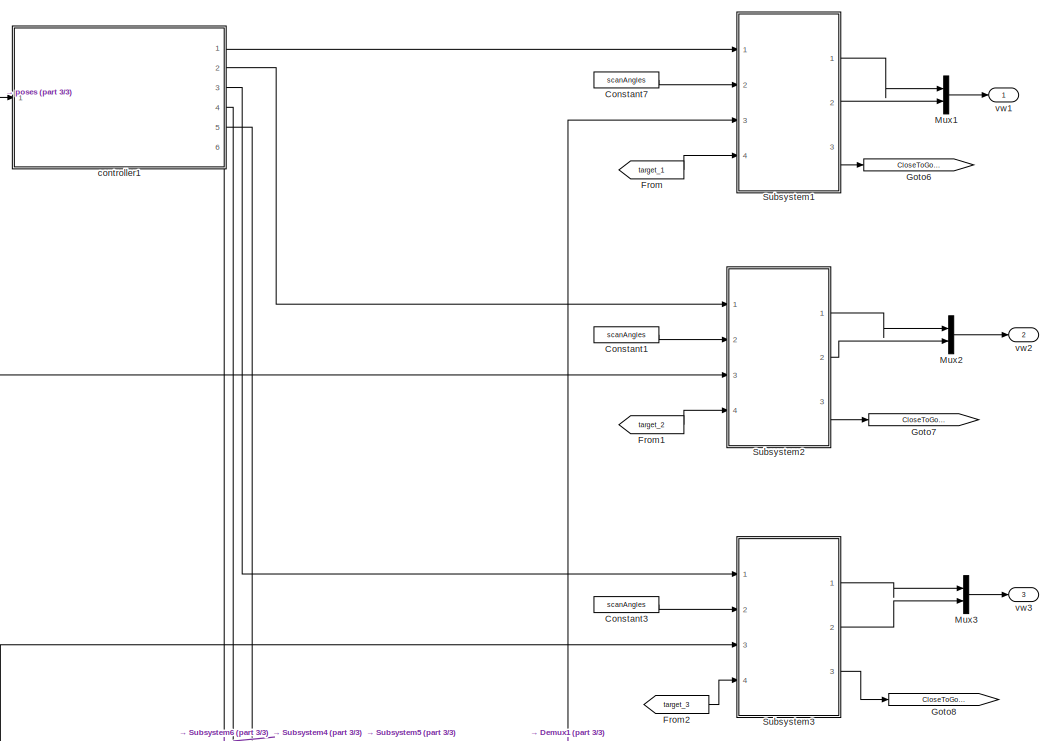
[diagram: controller1 - part 1/3, top center region]
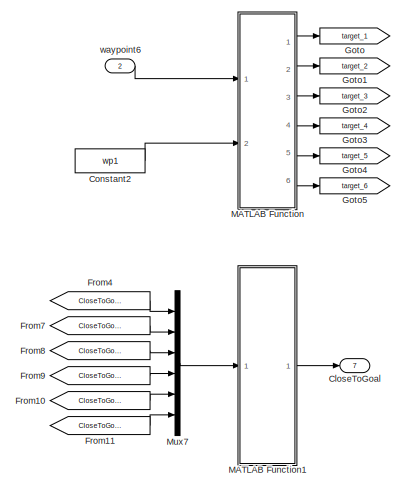
[diagram: controller1 - part 2/3, middle right region]
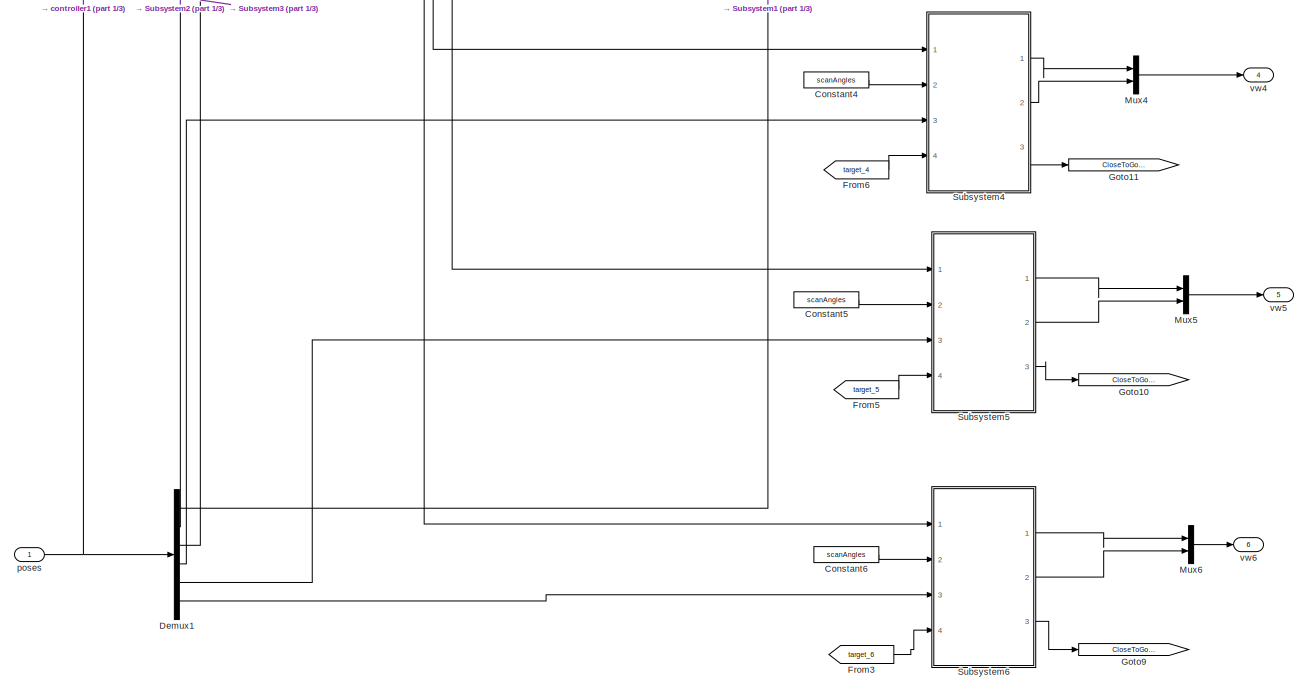
[diagram: controller1 - part 3/3, bottom left region]
BLOCK [SubSystem] controller1
  Ports = [2, 7]
  RequestExecContextInheritance = off
BLOCK [Outport] controller1/CloseToGoal
  Port = 7
BLOCK [Constant] controller1/Constant1
  Value = scanAngles
BLOCK [Constant] controller1/Constant2
  Value = wp1
BLOCK [Constant] controller1/Constant3
  Value = scanAngles
BLOCK [Constant] controller1/Constant4
  Value = scanAngles
BLOCK [Constant] controller1/Constant5
  Value = scanAngles
BLOCK [Constant] controller1/Constant6
  Value = scanAngles
BLOCK [Constant] controller1/Constant7
  Value = scanAngles
BLOCK [Demux] controller1/Demux1
  Outputs = 6
  Ports = [1, 6]
BLOCK [From] controller1/From
  GotoTag = target_1
BLOCK [From] controller1/From1
  GotoTag = target_2
BLOCK [From] controller1/From10
  GotoTag = CloseToGoal_5
BLOCK [From] controller1/From11
  GotoTag = CloseToGoal_6
BLOCK [From] controller1/From2
  GotoTag = target_3
BLOCK [From] controller1/From3
  GotoTag = target_6
BLOCK [From] controller1/From4
  GotoTag = CloseToGoal_1
BLOCK [From] controller1/From5
  GotoTag = target_5
BLOCK [From] controller1/From6
  GotoTag = target_4
BLOCK [From] controller1/From7
  GotoTag = CloseToGoal_2
BLOCK [From] controller1/From8
  GotoTag = CloseToGoal_3
BLOCK [From] controller1/From9
  GotoTag = CloseToGoal_4
BLOCK [Goto] controller1/Goto
  GotoTag = target_1
BLOCK [Goto] controller1/Goto1
  GotoTag = target_2
BLOCK [Goto] controller1/Goto10
  GotoTag = CloseToGoal_5
BLOCK [Goto] controller1/Goto11
  GotoTag = CloseToGoal_4
BLOCK [Goto] controller1/Goto2
  GotoTag = target_3
BLOCK [Goto] controller1/Goto3
  GotoTag = target_4
BLOCK [Goto] controller1/Goto4
  GotoTag = target_5
BLOCK [Goto] controller1/Goto5
  GotoTag = target_6
BLOCK [Goto] controller1/Goto6
  GotoTag = CloseToGoal_1
BLOCK [Goto] controller1/Goto7
  GotoTag = CloseToGoal_2
BLOCK [Goto] controller1/Goto8
  GotoTag = CloseToGoal_3
BLOCK [Goto] controller1/Goto9
  GotoTag = CloseToGoal_6
BLOCK [SubSystem] controller1/MATLAB Function
  ErrorFcn = Stateflow.Translate.translate
  PermitHierarchicalResolution = ExplicitOnly
  Ports = [2, 6]
  RequestExecContextInheritance = off
  SFBlockType = MATLAB Function
  TreatAsAtomicUnit = on
BLOCK [Demux] controller1/MATLAB Function/ Demux 
  Outputs = 1
  Ports = [1, 1]
BLOCK [S-Function] controller1/MATLAB Function/ SFunction 
  EnableBusSupport = on
  FunctionName = sf_sfun
  PortCounts = [2 7]
  Ports = [2, 7]
  SFcnIsStateOwnerBlock = off
  SFunctionDeploymentMode = off
  Tag = Stateflow S-Function 29
BLOCK [Terminator] controller1/MATLAB Function/ Terminator 
BLOCK [Inport] controller1/MATLAB Function/a
BLOCK [Outport] controller1/MATLAB Function/t1
BLOCK [Outport] controller1/MATLAB Function/t2
  Port = 2
BLOCK [Outport] controller1/MATLAB Function/t3
  Port = 3
BLOCK [Outport] controller1/MATLAB Function/t4
  Port = 4
BLOCK [Outport] controller1/MATLAB Function/t5
  Port = 5
BLOCK [Outport] controller1/MATLAB Function/t6
  Port = 6
BLOCK [Inport] controller1/MATLAB Function/wp1
  Port = 2
BLOCK [SubSystem] controller1/MATLAB Function1
  ErrorFcn = Stateflow.Translate.translate
  PermitHierarchicalResolution = ExplicitOnly
  Ports = [1, 1]
  RequestExecContextInheritance = off
  SFBlockType = MATLAB Function
  TreatAsAtomicUnit = on
BLOCK [Demux] controller1/MATLAB Function1/ Demux 
  Outputs = 1
  Ports = [1, 1]
BLOCK [S-Function] controller1/MATLAB Function1/ SFunction 
  EnableBusSupport = on
  FunctionName = sf_sfun
  PortCounts = [1 2]
  Ports = [1, 2]
  SFcnIsStateOwnerBlock = off
  SFunctionDeploymentMode = off
  Tag = Stateflow S-Function 46
BLOCK [Terminator] controller1/MATLAB Function1/ Terminator 
BLOCK [Inport] controller1/MATLAB Function1/in
BLOCK [Outport] controller1/MATLAB Function1/out
BLOCK [Mux] controller1/Mux1
  DisplayOption = bar
  Inputs = 2
  Ports = [2, 1]
BLOCK [Mux] controller1/Mux2
  DisplayOption = bar
  Inputs = 2
  Ports = [2, 1]
BLOCK [Mux] controller1/Mux3
  DisplayOption = bar
  Inputs = 2
  Ports = [2, 1]
BLOCK [Mux] controller1/Mux4
  DisplayOption = bar
  Inputs = 2
  Ports = [2, 1]
BLOCK [Mux] controller1/Mux5
  DisplayOption = bar
  Inputs = 2
  Ports = [2, 1]
BLOCK [Mux] controller1/Mux6
  DisplayOption = bar
  Inputs = 2
  Ports = [2, 1]
BLOCK [Mux] controller1/Mux7
  DisplayOption = bar
  Inputs = 6
  Ports = [6, 1]
BLOCK [SubSystem] controller1/Subsystem1
  Ports = [4, 3]
  RequestExecContextInheritance = off
BLOCK [SubSystem] controller1/Subsystem1/Adjust Velocities to Avoid Obstacles
  Ports = [5, 2]
  RequestExecContextInheritance = off
BLOCK [Inport] controller1/Subsystem1/Adjust Velocities to Avoid Obstacles/Angles
  Port = 2
BLOCK [If] controller1/Subsystem1/Adjust Velocities to Avoid Obstacles/If
  IfExpression = u1 == 1
  Ports = [1, 2]
BLOCK [Merge] controller1/Subsystem1/Adjust Velocities to Avoid Obstacles/Merge
  Ports = [2, 1]
BLOCK [Merge] controller1/Subsystem1/Adjust Velocities to Avoid Obstacles/Merge1
  Ports = [2, 1]
BLOCK [SubSystem] controller1/Subsystem1/Adjust Velocities to Avoid Obstacles/Path Following
  Ports = [2, 2, 0, 0, 0, 0, 0, 1]
  RequestExecContextInheritance = off
  TreatAsAtomicUnit = on
BLOCK [ActionPort] controller1/Subsystem1/Adjust Velocities to Avoid Obstacles/Path Following/Action Port
  ActionPortLabel = else
BLOCK [Inport] controller1/Subsystem1/Adjust Velocities to Avoid Obstacles/Path Following/AngularVelocity
  Port = 2
BLOCK [SubSystem] controller1/Subsystem1/Adjust Velocities to Avoid Obstacles/Path Following/Compute Angular Velocity
  ErrorFcn = Stateflow.Translate.translate
  PermitHierarchicalResolution = ExplicitOnly
  Ports = [2, 1]
  RequestExecContextInheritance = off
  SFBlockType = MATLAB Function
  TreatAsAtomicUnit = on
BLOCK [Demux] controller1/Subsystem1/Adjust Velocities to Avoid Obstacles/Path Following/Compute Angular Velocity/ Demux 
  Outputs = 1
  Ports = [1, 1]
BLOCK [S-Function] controller1/Subsystem1/Adjust Velocities to Avoid Obstacles/Path Following/Compute Angular Velocity/ SFunction 
  EnableBusSupport = on
  FunctionName = sf_sfun
  PortCounts = [2 2]
  Ports = [2, 2]
  SFcnIsStateOwnerBlock = off
  SFunctionDeploymentMode = off
  Tag = Stateflow S-Function 27
BLOCK [Terminator] controller1/Subsystem1/Adjust Velocities to Avoid Obstacles/Path Following/Compute Angular Velocity/ Terminator 
BLOCK [Inport] controller1/Subsystem1/Adjust Velocities to Avoid Obstacles/Path Following/Compute Angular Velocity/steeringDir
BLOCK [Outport] controller1/Subsystem1/Adjust Velocities to Avoid Obstacles/Path Following/Compute Angular Velocity/w
  VectorParamsAs1DForOutWhenUnconnected = off
BLOCK [Inport] controller1/Subsystem1/Adjust Velocities to Avoid Obstacles/Path Following/Compute Angular Velocity/wMax
  Port = 2
BLOCK [Constant] controller1/Subsystem1/Adjust Velocities to Avoid Obstacles/Path Following/Constant
  Value = 0
BLOCK [Constant] controller1/Subsystem1/Adjust Velocities to Avoid Obstacles/Path Following/MaxAngularVelocity
  Value = desired_w
BLOCK [Inport] controller1/Subsystem1/Adjust Velocities to Avoid Obstacles/Path Following/SteeringDirection
BLOCK [Sum] controller1/Subsystem1/Adjust Velocities to Avoid Obstacles/Path Following/Subtract
  IconShape = rectangular
  Inputs = +-
  Ports = [2, 1]
BLOCK [Outport] controller1/Subsystem1/Adjust Velocities to Avoid Obstacles/Path Following/dV
  VectorParamsAs1DForOutWhenUnconnected = off
BLOCK [Outport] controller1/Subsystem1/Adjust Velocities to Avoid Obstacles/Path Following/dW
  Port = 2
  VectorParamsAs1DForOutWhenUnconnected = off
BLOCK [Inport] controller1/Subsystem1/Adjust Velocities to Avoid Obstacles/Ranges
BLOCK [SubSystem] controller1/Subsystem1/Adjust Velocities to Avoid Obstacles/Recovery
  Ports = [2, 2, 0, 0, 0, 0, 0, 1]
  RequestExecContextInheritance = off
  TreatAsAtomicUnit = on
BLOCK [ActionPort] controller1/Subsystem1/Adjust Velocities to Avoid Obstacles/Recovery/Action Port
  ActionPortLabel = if(u1 == 1)
BLOCK [Inport] controller1/Subsystem1/Adjust Velocities to Avoid Obstacles/Recovery/AngularVelocity
  Port = 2
BLOCK [Constant] controller1/Subsystem1/Adjust Velocities to Avoid Obstacles/Recovery/Constant1
  Value = recovery_w
BLOCK [Gain] controller1/Subsystem1/Adjust Velocities to Avoid Obstacles/Recovery/Gain
  Gain = -1
BLOCK [Inport] controller1/Subsystem1/Adjust Velocities to Avoid Obstacles/Recovery/LinearVelocity
BLOCK [Sum] controller1/Subsystem1/Adjust Velocities to Avoid Obstacles/Recovery/Subtract
  IconShape = rectangular
  Inputs = +-
  Ports = [2, 1]
BLOCK [Outport] controller1/Subsystem1/Adjust Velocities to Avoid Obstacles/Recovery/dV
  VectorParamsAs1DForOutWhenUnconnected = off
BLOCK [Outport] controller1/Subsystem1/Adjust Velocities to Avoid Obstacles/Recovery/dW
  Port = 2
  VectorParamsAs1DForOutWhenUnconnected = off
BLOCK [RelationalOperator] controller1/Subsystem1/Adjust Velocities to Avoid Obstacles/Relational Operator
  InputSameDT = off
  Operator = isNaN
  OutDataTypeStr = boolean
  Ports = [1, 1]
  RndMeth = Simplest
BLOCK [Inport] controller1/Subsystem1/Adjust Velocities to Avoid Obstacles/TargetDir
  Port = 3
BLOCK [Inport] controller1/Subsystem1/Adjust Velocities to Avoid Obstacles/V
  Port = 4
BLOCK [Reference] controller1/Subsystem1/Adjust Velocities to Avoid Obstacles/Vector Field Histogram  REF=robotalgslib/Vector Field Histogram
  Ports = [3, 1]
  SourceBlock = robotalgslib/Vector Field Histogram
  SourceProductBaseCode = NV,RO
  SourceType = nav.slalgs.internal.VectorFieldHistogram
BLOCK [Inport] controller1/Subsystem1/Adjust Velocities to Avoid Obstacles/W
  Port = 5
BLOCK [Outport] controller1/Subsystem1/Adjust Velocities to Avoid Obstacles/dV
  VectorParamsAs1DForOutWhenUnconnected = off
BLOCK [Outport] controller1/Subsystem1/Adjust Velocities to Avoid Obstacles/dW
  Port = 2
  VectorParamsAs1DForOutWhenUnconnected = off
BLOCK [Inport] controller1/Subsystem1/Angels
  Port = 2
BLOCK [Outport] controller1/Subsystem1/CloseToGoal
  Port = 3
BLOCK [SubSystem] controller1/Subsystem1/Compute Velocity and Heading for Path following
  Ports = [2, 4]
  RequestExecContextInheritance = off
BLOCK [SubSystem] controller1/Subsystem1/Compute Velocity and Heading for Path following/ Extract Goal
  ErrorFcn = Stateflow.Translate.translate
  PermitHierarchicalResolution = ExplicitOnly
  Ports = [1, 1]
  RequestExecContextInheritance = off
  SFBlockType = MATLAB Function
  TreatAsAtomicUnit = on
BLOCK [Demux] controller1/Subsystem1/Compute Velocity and Heading for Path following/ Extract Goal/ Demux 
  Outputs = 1
  Ports = [1, 1]
BLOCK [S-Function] controller1/Subsystem1/Compute Velocity and Heading for Path following/ Extract Goal/ SFunction 
  EnableBusSupport = on
  FunctionName = sf_sfun
  PortCounts = [1 2]
  Ports = [1, 2]
  SFcnIsStateOwnerBlock = off
  SFunctionDeploymentMode = off
  Tag = Stateflow S-Function 28
BLOCK [Terminator] controller1/Subsystem1/Compute Velocity and Heading for Path following/ Extract Goal/ Terminator 
BLOCK [Outport] controller1/Subsystem1/Compute Velocity and Heading for Path following/ Extract Goal/Goal
  VectorParamsAs1DForOutWhenUnconnected = off
BLOCK [Inport] controller1/Subsystem1/Compute Velocity and Heading for Path following/ Extract Goal/Waypoints
BLOCK [Outport] controller1/Subsystem1/Compute Velocity and Heading for Path following/CloseToGoal
  Port = 4
  VectorParamsAs1DForOutWhenUnconnected = off
BLOCK [Inport] controller1/Subsystem1/Compute Velocity and Heading for Path following/CurrentPose
BLOCK [DotProduct] controller1/Subsystem1/Compute Velocity and Heading for Path following/Dot Product
  OutDataTypeStr = Inherit: Inherit via internal rule
BLOCK [Constant] controller1/Subsystem1/Compute Velocity and Heading for Path following/GoalRadius
  Value = desired_lookahead
BLOCK [Reference] controller1/Subsystem1/Compute Velocity and Heading for Path following/Pure Pursuit  REF=robotalgslib/Pure Pursuit
  Ports = [2, 3]
  SourceBlock = robotalgslib/Pure Pursuit
  SourceProductBaseCode = NV,RO
  SourceType = nav.slalgs.internal.PurePursuit
BLOCK [RelationalOperator] controller1/Subsystem1/Compute Velocity and Heading for Path following/Relational Operator
  InputSameDT = off
  Operator = <=
  OutDataTypeStr = boolean
  Ports = [2, 1]
  RndMeth = Simplest
BLOCK [Selector] controller1/Subsystem1/Compute Velocity and Heading for Path following/Selector
  IndexOptions = Index vector (dialog)
  Indices = [1 2]
  InputPortWidth = 3
  OutputSizes = 1
  Ports = [1, 1]
BLOCK [Sqrt] controller1/Subsystem1/Compute Velocity and Heading for Path following/Sqrt
BLOCK [Sum] controller1/Subsystem1/Compute Velocity and Heading for Path following/Subtract
  IconShape = rectangular
  Inputs = +-
  Ports = [2, 1]
BLOCK [Outport] controller1/Subsystem1/Compute Velocity and Heading for Path following/TargetDir
  VectorParamsAs1DForOutWhenUnconnected = off
BLOCK [Outport] controller1/Subsystem1/Compute Velocity and Heading for Path following/V
  Port = 2
  VectorParamsAs1DForOutWhenUnconnected = off
BLOCK [Outport] controller1/Subsystem1/Compute Velocity and Heading for Path following/W
  Port = 3
  VectorParamsAs1DForOutWhenUnconnected = off
BLOCK [Inport] controller1/Subsystem1/Compute Velocity and Heading for Path following/Waypoints
  Port = 2
BLOCK [Constant] controller1/Subsystem1/Constant1
  Value = scanAngles
BLOCK [SubSystem] controller1/Subsystem1/More Info
  OpenFcn = showdemo(bdroot(gcb))
  Ports = []
  RequestExecContextInheritance = off
BLOCK [SubSystem] controller1/Subsystem1/Outputs
  Ports = [5, 2]
  RequestExecContextInheritance = off
BLOCK [Sum] controller1/Subsystem1/Outputs/Add
  IconShape = rectangular
  Ports = [2, 1]
BLOCK [Sum] controller1/Subsystem1/Outputs/Add1
  IconShape = rectangular
  Ports = [2, 1]
BLOCK [Inport] controller1/Subsystem1/Outputs/CloseToGoal
  Port = 5
BLOCK [Logic] controller1/Subsystem1/Outputs/Logical Operator
  AllPortsSameDT = off
  Operator = NOT
  OutDataTypeStr = boolean
  Ports = [1, 1]
BLOCK [Product] controller1/Subsystem1/Outputs/Product
  Ports = [2, 1]
BLOCK [Product] controller1/Subsystem1/Outputs/Product1
  Ports = [2, 1]
BLOCK [Inport] controller1/Subsystem1/Outputs/V
  Port = 3
BLOCK [Inport] controller1/Subsystem1/Outputs/W
  Port = 4
BLOCK [Inport] controller1/Subsystem1/Outputs/dV
BLOCK [Inport] controller1/Subsystem1/Outputs/dW
  Port = 2
BLOCK [Outport] controller1/Subsystem1/Outputs/v
BLOCK [Outport] controller1/Subsystem1/Outputs/w
  Port = 2
BLOCK [Inport] controller1/Subsystem1/Pose
  Port = 3
BLOCK [Inport] controller1/Subsystem1/Ranges
BLOCK [Inport] controller1/Subsystem1/WayPoints
  Port = 4
BLOCK [Outport] controller1/Subsystem1/v
BLOCK [Outport] controller1/Subsystem1/w
  Port = 2
BLOCK [SubSystem] controller1/Subsystem2
  Ports = [4, 3]
  RequestExecContextInheritance = off
BLOCK [SubSystem] controller1/Subsystem2/Adjust Velocities to Avoid Obstacles
  Ports = [5, 2]
  RequestExecContextInheritance = off
BLOCK [Inport] controller1/Subsystem2/Adjust Velocities to Avoid Obstacles/Angles
  Port = 2
BLOCK [If] controller1/Subsystem2/Adjust Velocities to Avoid Obstacles/If
  IfExpression = u1 == 1
  Ports = [1, 2]
BLOCK [Merge] controller1/Subsystem2/Adjust Velocities to Avoid Obstacles/Merge
  Ports = [2, 1]
BLOCK [Merge] controller1/Subsystem2/Adjust Velocities to Avoid Obstacles/Merge1
  Ports = [2, 1]
BLOCK [SubSystem] controller1/Subsystem2/Adjust Velocities to Avoid Obstacles/Path Following
  Ports = [2, 2, 0, 0, 0, 0, 0, 1]
  RequestExecContextInheritance = off
  TreatAsAtomicUnit = on
BLOCK [ActionPort] controller1/Subsystem2/Adjust Velocities to Avoid Obstacles/Path Following/Action Port
  ActionPortLabel = else
BLOCK [Inport] controller1/Subsystem2/Adjust Velocities to Avoid Obstacles/Path Following/AngularVelocity
  Port = 2
BLOCK [SubSystem] controller1/Subsystem2/Adjust Velocities to Avoid Obstacles/Path Following/Compute Angular Velocity
  ErrorFcn = Stateflow.Translate.translate
  PermitHierarchicalResolution = ExplicitOnly
  Ports = [2, 1]
  RequestExecContextInheritance = off
  SFBlockType = MATLAB Function
  TreatAsAtomicUnit = on
BLOCK [Demux] controller1/Subsystem2/Adjust Velocities to Avoid Obstacles/Path Following/Compute Angular Velocity/ Demux 
  Outputs = 1
  Ports = [1, 1]
BLOCK [S-Function] controller1/Subsystem2/Adjust Velocities to Avoid Obstacles/Path Following/Compute Angular Velocity/ SFunction 
  EnableBusSupport = on
  FunctionName = sf_sfun
  PortCounts = [2 2]
  Ports = [2, 2]
  SFcnIsStateOwnerBlock = off
  SFunctionDeploymentMode = off
  Tag = Stateflow S-Function 14
BLOCK [Terminator] controller1/Subsystem2/Adjust Velocities to Avoid Obstacles/Path Following/Compute Angular Velocity/ Terminator 
BLOCK [Inport] controller1/Subsystem2/Adjust Velocities to Avoid Obstacles/Path Following/Compute Angular Velocity/steeringDir
BLOCK [Outport] controller1/Subsystem2/Adjust Velocities to Avoid Obstacles/Path Following/Compute Angular Velocity/w
  VectorParamsAs1DForOutWhenUnconnected = off
BLOCK [Inport] controller1/Subsystem2/Adjust Velocities to Avoid Obstacles/Path Following/Compute Angular Velocity/wMax
  Port = 2
BLOCK [Constant] controller1/Subsystem2/Adjust Velocities to Avoid Obstacles/Path Following/Constant
  Value = 0
BLOCK [Constant] controller1/Subsystem2/Adjust Velocities to Avoid Obstacles/Path Following/MaxAngularVelocity
  Value = desired_w
BLOCK [Inport] controller1/Subsystem2/Adjust Velocities to Avoid Obstacles/Path Following/SteeringDirection
BLOCK [Sum] controller1/Subsystem2/Adjust Velocities to Avoid Obstacles/Path Following/Subtract
  IconShape = rectangular
  Inputs = +-
  Ports = [2, 1]
BLOCK [Outport] controller1/Subsystem2/Adjust Velocities to Avoid Obstacles/Path Following/dV
  VectorParamsAs1DForOutWhenUnconnected = off
BLOCK [Outport] controller1/Subsystem2/Adjust Velocities to Avoid Obstacles/Path Following/dW
  Port = 2
  VectorParamsAs1DForOutWhenUnconnected = off
BLOCK [Inport] controller1/Subsystem2/Adjust Velocities to Avoid Obstacles/Ranges
BLOCK [SubSystem] controller1/Subsystem2/Adjust Velocities to Avoid Obstacles/Recovery
  Ports = [2, 2, 0, 0, 0, 0, 0, 1]
  RequestExecContextInheritance = off
  TreatAsAtomicUnit = on
BLOCK [ActionPort] controller1/Subsystem2/Adjust Velocities to Avoid Obstacles/Recovery/Action Port
  ActionPortLabel = if(u1 == 1)
BLOCK [Inport] controller1/Subsystem2/Adjust Velocities to Avoid Obstacles/Recovery/AngularVelocity
  Port = 2
BLOCK [Constant] controller1/Subsystem2/Adjust Velocities to Avoid Obstacles/Recovery/Constant1
  Value = recovery_w
BLOCK [Gain] controller1/Subsystem2/Adjust Velocities to Avoid Obstacles/Recovery/Gain
  Gain = -1
BLOCK [Inport] controller1/Subsystem2/Adjust Velocities to Avoid Obstacles/Recovery/LinearVelocity
BLOCK [Sum] controller1/Subsystem2/Adjust Velocities to Avoid Obstacles/Recovery/Subtract
  IconShape = rectangular
  Inputs = +-
  Ports = [2, 1]
BLOCK [Outport] controller1/Subsystem2/Adjust Velocities to Avoid Obstacles/Recovery/dV
  VectorParamsAs1DForOutWhenUnconnected = off
BLOCK [Outport] controller1/Subsystem2/Adjust Velocities to Avoid Obstacles/Recovery/dW
  Port = 2
  VectorParamsAs1DForOutWhenUnconnected = off
BLOCK [RelationalOperator] controller1/Subsystem2/Adjust Velocities to Avoid Obstacles/Relational Operator
  InputSameDT = off
  Operator = isNaN
  OutDataTypeStr = boolean
  Ports = [1, 1]
  RndMeth = Simplest
BLOCK [Inport] controller1/Subsystem2/Adjust Velocities to Avoid Obstacles/TargetDir
  Port = 3
BLOCK [Inport] controller1/Subsystem2/Adjust Velocities to Avoid Obstacles/V
  Port = 4
BLOCK [Reference] controller1/Subsystem2/Adjust Velocities to Avoid Obstacles/Vector Field Histogram  REF=robotalgslib/Vector Field Histogram
  Ports = [3, 1]
  SourceBlock = robotalgslib/Vector Field Histogram
  SourceProductBaseCode = NV,RO
  SourceType = nav.slalgs.internal.VectorFieldHistogram
BLOCK [Inport] controller1/Subsystem2/Adjust Velocities to Avoid Obstacles/W
  Port = 5
BLOCK [Outport] controller1/Subsystem2/Adjust Velocities to Avoid Obstacles/dV
  VectorParamsAs1DForOutWhenUnconnected = off
BLOCK [Outport] controller1/Subsystem2/Adjust Velocities to Avoid Obstacles/dW
  Port = 2
  VectorParamsAs1DForOutWhenUnconnected = off
BLOCK [Inport] controller1/Subsystem2/Angels
  Port = 2
BLOCK [Outport] controller1/Subsystem2/CloseToGoal
  Port = 3
BLOCK [SubSystem] controller1/Subsystem2/Compute Velocity and Heading for Path following
  Ports = [2, 4]
  RequestExecContextInheritance = off
BLOCK [SubSystem] controller1/Subsystem2/Compute Velocity and Heading for Path following/ Extract Goal
  ErrorFcn = Stateflow.Translate.translate
  PermitHierarchicalResolution = ExplicitOnly
  Ports = [1, 1]
  RequestExecContextInheritance = off
  SFBlockType = MATLAB Function
  TreatAsAtomicUnit = on
BLOCK [Demux] controller1/Subsystem2/Compute Velocity and Heading for Path following/ Extract Goal/ Demux 
  Outputs = 1
  Ports = [1, 1]
BLOCK [S-Function] controller1/Subsystem2/Compute Velocity and Heading for Path following/ Extract Goal/ SFunction 
  EnableBusSupport = on
  FunctionName = sf_sfun
  PortCounts = [1 2]
  Ports = [1, 2]
  SFcnIsStateOwnerBlock = off
  SFunctionDeploymentMode = off
  Tag = Stateflow S-Function 15
BLOCK [Terminator] controller1/Subsystem2/Compute Velocity and Heading for Path following/ Extract Goal/ Terminator 
BLOCK [Outport] controller1/Subsystem2/Compute Velocity and Heading for Path following/ Extract Goal/Goal
  VectorParamsAs1DForOutWhenUnconnected = off
BLOCK [Inport] controller1/Subsystem2/Compute Velocity and Heading for Path following/ Extract Goal/Waypoints
BLOCK [Outport] controller1/Subsystem2/Compute Velocity and Heading for Path following/CloseToGoal
  Port = 4
  VectorParamsAs1DForOutWhenUnconnected = off
BLOCK [Inport] controller1/Subsystem2/Compute Velocity and Heading for Path following/CurrentPose
BLOCK [DotProduct] controller1/Subsystem2/Compute Velocity and Heading for Path following/Dot Product
  OutDataTypeStr = Inherit: Inherit via internal rule
BLOCK [Constant] controller1/Subsystem2/Compute Velocity and Heading for Path following/GoalRadius
  Value = desired_lookahead
BLOCK [Reference] controller1/Subsystem2/Compute Velocity and Heading for Path following/Pure Pursuit  REF=robotalgslib/Pure Pursuit
  Ports = [2, 3]
  SourceBlock = robotalgslib/Pure Pursuit
  SourceProductBaseCode = NV,RO
  SourceType = nav.slalgs.internal.PurePursuit
BLOCK [RelationalOperator] controller1/Subsystem2/Compute Velocity and Heading for Path following/Relational Operator
  InputSameDT = off
  Operator = <=
  OutDataTypeStr = boolean
  Ports = [2, 1]
  RndMeth = Simplest
BLOCK [Selector] controller1/Subsystem2/Compute Velocity and Heading for Path following/Selector
  IndexOptions = Index vector (dialog)
  Indices = [1 2]
  InputPortWidth = 3
  OutputSizes = 1
  Ports = [1, 1]
BLOCK [Sqrt] controller1/Subsystem2/Compute Velocity and Heading for Path following/Sqrt
BLOCK [Sum] controller1/Subsystem2/Compute Velocity and Heading for Path following/Subtract
  IconShape = rectangular
  Inputs = +-
  Ports = [2, 1]
BLOCK [Outport] controller1/Subsystem2/Compute Velocity and Heading for Path following/TargetDir
  VectorParamsAs1DForOutWhenUnconnected = off
BLOCK [Outport] controller1/Subsystem2/Compute Velocity and Heading for Path following/V
  Port = 2
  VectorParamsAs1DForOutWhenUnconnected = off
BLOCK [Outport] controller1/Subsystem2/Compute Velocity and Heading for Path following/W
  Port = 3
  VectorParamsAs1DForOutWhenUnconnected = off
BLOCK [Inport] controller1/Subsystem2/Compute Velocity and Heading for Path following/Waypoints
  Port = 2
BLOCK [Constant] controller1/Subsystem2/Constant1
  Value = scanAngles
BLOCK [SubSystem] controller1/Subsystem2/More Info
  OpenFcn = showdemo(bdroot(gcb))
  Ports = []
  RequestExecContextInheritance = off
BLOCK [SubSystem] controller1/Subsystem2/Outputs
  Ports = [5, 2]
  RequestExecContextInheritance = off
BLOCK [Sum] controller1/Subsystem2/Outputs/Add
  IconShape = rectangular
  Ports = [2, 1]
BLOCK [Sum] controller1/Subsystem2/Outputs/Add1
  IconShape = rectangular
  Ports = [2, 1]
BLOCK [Inport] controller1/Subsystem2/Outputs/CloseToGoal
  Port = 5
BLOCK [Logic] controller1/Subsystem2/Outputs/Logical Operator
  AllPortsSameDT = off
  Operator = NOT
  OutDataTypeStr = boolean
  Ports = [1, 1]
BLOCK [Product] controller1/Subsystem2/Outputs/Product
  Ports = [2, 1]
BLOCK [Product] controller1/Subsystem2/Outputs/Product1
  Ports = [2, 1]
BLOCK [Inport] controller1/Subsystem2/Outputs/V
  Port = 3
BLOCK [Inport] controller1/Subsystem2/Outputs/W
  Port = 4
BLOCK [Inport] controller1/Subsystem2/Outputs/dV
BLOCK [Inport] controller1/Subsystem2/Outputs/dW
  Port = 2
BLOCK [Outport] controller1/Subsystem2/Outputs/v
BLOCK [Outport] controller1/Subsystem2/Outputs/w
  Port = 2
BLOCK [Inport] controller1/Subsystem2/Pose
  Port = 3
BLOCK [Inport] controller1/Subsystem2/Ranges
BLOCK [Inport] controller1/Subsystem2/WayPoints
  Port = 4
BLOCK [Outport] controller1/Subsystem2/v
BLOCK [Outport] controller1/Subsystem2/w
  Port = 2
BLOCK [SubSystem] controller1/Subsystem3
  Ports = [4, 3]
  RequestExecContextInheritance = off
BLOCK [SubSystem] controller1/Subsystem3/Adjust Velocities to Avoid Obstacles
  Ports = [5, 2]
  RequestExecContextInheritance = off
BLOCK [Inport] controller1/Subsystem3/Adjust Velocities to Avoid Obstacles/Angles
  Port = 2
BLOCK [If] controller1/Subsystem3/Adjust Velocities to Avoid Obstacles/If
  IfExpression = u1 == 1
  Ports = [1, 2]
BLOCK [Merge] controller1/Subsystem3/Adjust Velocities to Avoid Obstacles/Merge
  Ports = [2, 1]
BLOCK [Merge] controller1/Subsystem3/Adjust Velocities to Avoid Obstacles/Merge1
  Ports = [2, 1]
BLOCK [SubSystem] controller1/Subsystem3/Adjust Velocities to Avoid Obstacles/Path Following
  Ports = [2, 2, 0, 0, 0, 0, 0, 1]
  RequestExecContextInheritance = off
  TreatAsAtomicUnit = on
BLOCK [ActionPort] controller1/Subsystem3/Adjust Velocities to Avoid Obstacles/Path Following/Action Port
  ActionPortLabel = else
BLOCK [Inport] controller1/Subsystem3/Adjust Velocities to Avoid Obstacles/Path Following/AngularVelocity
  Port = 2
BLOCK [SubSystem] controller1/Subsystem3/Adjust Velocities to Avoid Obstacles/Path Following/Compute Angular Velocity
  ErrorFcn = Stateflow.Translate.translate
  PermitHierarchicalResolution = ExplicitOnly
  Ports = [2, 1]
  RequestExecContextInheritance = off
  SFBlockType = MATLAB Function
  TreatAsAtomicUnit = on
BLOCK [Demux] controller1/Subsystem3/Adjust Velocities to Avoid Obstacles/Path Following/Compute Angular Velocity/ Demux 
  Outputs = 1
  Ports = [1, 1]
BLOCK [S-Function] controller1/Subsystem3/Adjust Velocities to Avoid Obstacles/Path Following/Compute Angular Velocity/ SFunction 
  EnableBusSupport = on
  FunctionName = sf_sfun
  PortCounts = [2 2]
  Ports = [2, 2]
  SFcnIsStateOwnerBlock = off
  SFunctionDeploymentMode = off
  Tag = Stateflow S-Function 16
BLOCK [Terminator] controller1/Subsystem3/Adjust Velocities to Avoid Obstacles/Path Following/Compute Angular Velocity/ Terminator 
BLOCK [Inport] controller1/Subsystem3/Adjust Velocities to Avoid Obstacles/Path Following/Compute Angular Velocity/steeringDir
BLOCK [Outport] controller1/Subsystem3/Adjust Velocities to Avoid Obstacles/Path Following/Compute Angular Velocity/w
  VectorParamsAs1DForOutWhenUnconnected = off
BLOCK [Inport] controller1/Subsystem3/Adjust Velocities to Avoid Obstacles/Path Following/Compute Angular Velocity/wMax
  Port = 2
BLOCK [Constant] controller1/Subsystem3/Adjust Velocities to Avoid Obstacles/Path Following/Constant
  Value = 0
BLOCK [Constant] controller1/Subsystem3/Adjust Velocities to Avoid Obstacles/Path Following/MaxAngularVelocity
  Value = desired_w
BLOCK [Inport] controller1/Subsystem3/Adjust Velocities to Avoid Obstacles/Path Following/SteeringDirection
BLOCK [Sum] controller1/Subsystem3/Adjust Velocities to Avoid Obstacles/Path Following/Subtract
  IconShape = rectangular
  Inputs = +-
  Ports = [2, 1]
BLOCK [Outport] controller1/Subsystem3/Adjust Velocities to Avoid Obstacles/Path Following/dV
  VectorParamsAs1DForOutWhenUnconnected = off
BLOCK [Outport] controller1/Subsystem3/Adjust Velocities to Avoid Obstacles/Path Following/dW
  Port = 2
  VectorParamsAs1DForOutWhenUnconnected = off
BLOCK [Inport] controller1/Subsystem3/Adjust Velocities to Avoid Obstacles/Ranges
BLOCK [SubSystem] controller1/Subsystem3/Adjust Velocities to Avoid Obstacles/Recovery
  Ports = [2, 2, 0, 0, 0, 0, 0, 1]
  RequestExecContextInheritance = off
  TreatAsAtomicUnit = on
BLOCK [ActionPort] controller1/Subsystem3/Adjust Velocities to Avoid Obstacles/Recovery/Action Port
  ActionPortLabel = if(u1 == 1)
BLOCK [Inport] controller1/Subsystem3/Adjust Velocities to Avoid Obstacles/Recovery/AngularVelocity
  Port = 2
BLOCK [Constant] controller1/Subsystem3/Adjust Velocities to Avoid Obstacles/Recovery/Constant1
  Value = recovery_w
BLOCK [Gain] controller1/Subsystem3/Adjust Velocities to Avoid Obstacles/Recovery/Gain
  Gain = -1
BLOCK [Inport] controller1/Subsystem3/Adjust Velocities to Avoid Obstacles/Recovery/LinearVelocity
BLOCK [Sum] controller1/Subsystem3/Adjust Velocities to Avoid Obstacles/Recovery/Subtract
  IconShape = rectangular
  Inputs = +-
  Ports = [2, 1]
BLOCK [Outport] controller1/Subsystem3/Adjust Velocities to Avoid Obstacles/Recovery/dV
  VectorParamsAs1DForOutWhenUnconnected = off
BLOCK [Outport] controller1/Subsystem3/Adjust Velocities to Avoid Obstacles/Recovery/dW
  Port = 2
  VectorParamsAs1DForOutWhenUnconnected = off
BLOCK [RelationalOperator] controller1/Subsystem3/Adjust Velocities to Avoid Obstacles/Relational Operator
  InputSameDT = off
  Operator = isNaN
  OutDataTypeStr = boolean
  Ports = [1, 1]
  RndMeth = Simplest
BLOCK [Inport] controller1/Subsystem3/Adjust Velocities to Avoid Obstacles/TargetDir
  Port = 3
BLOCK [Inport] controller1/Subsystem3/Adjust Velocities to Avoid Obstacles/V
  Port = 4
BLOCK [Reference] controller1/Subsystem3/Adjust Velocities to Avoid Obstacles/Vector Field Histogram  REF=robotalgslib/Vector Field Histogram
  Ports = [3, 1]
  SourceBlock = robotalgslib/Vector Field Histogram
  SourceProductBaseCode = NV,RO
  SourceType = nav.slalgs.internal.VectorFieldHistogram
BLOCK [Inport] controller1/Subsystem3/Adjust Velocities to Avoid Obstacles/W
  Port = 5
BLOCK [Outport] controller1/Subsystem3/Adjust Velocities to Avoid Obstacles/dV
  VectorParamsAs1DForOutWhenUnconnected = off
BLOCK [Outport] controller1/Subsystem3/Adjust Velocities to Avoid Obstacles/dW
  Port = 2
  VectorParamsAs1DForOutWhenUnconnected = off
BLOCK [Inport] controller1/Subsystem3/Angels
  Port = 2
BLOCK [Outport] controller1/Subsystem3/CloseToGoal
  Port = 3
BLOCK [SubSystem] controller1/Subsystem3/Compute Velocity and Heading for Path following
  Ports = [2, 4]
  RequestExecContextInheritance = off
BLOCK [SubSystem] controller1/Subsystem3/Compute Velocity and Heading for Path following/ Extract Goal
  ErrorFcn = Stateflow.Translate.translate
  PermitHierarchicalResolution = ExplicitOnly
  Ports = [1, 1]
  RequestExecContextInheritance = off
  SFBlockType = MATLAB Function
  TreatAsAtomicUnit = on
BLOCK [Demux] controller1/Subsystem3/Compute Velocity and Heading for Path following/ Extract Goal/ Demux 
  Outputs = 1
  Ports = [1, 1]
BLOCK [S-Function] controller1/Subsystem3/Compute Velocity and Heading for Path following/ Extract Goal/ SFunction 
  EnableBusSupport = on
  FunctionName = sf_sfun
  PortCounts = [1 2]
  Ports = [1, 2]
  SFcnIsStateOwnerBlock = off
  SFunctionDeploymentMode = off
  Tag = Stateflow S-Function 17
BLOCK [Terminator] controller1/Subsystem3/Compute Velocity and Heading for Path following/ Extract Goal/ Terminator 
BLOCK [Outport] controller1/Subsystem3/Compute Velocity and Heading for Path following/ Extract Goal/Goal
  VectorParamsAs1DForOutWhenUnconnected = off
BLOCK [Inport] controller1/Subsystem3/Compute Velocity and Heading for Path following/ Extract Goal/Waypoints
BLOCK [Outport] controller1/Subsystem3/Compute Velocity and Heading for Path following/CloseToGoal
  Port = 4
  VectorParamsAs1DForOutWhenUnconnected = off
BLOCK [Inport] controller1/Subsystem3/Compute Velocity and Heading for Path following/CurrentPose
BLOCK [DotProduct] controller1/Subsystem3/Compute Velocity and Heading for Path following/Dot Product
  OutDataTypeStr = Inherit: Inherit via internal rule
BLOCK [Constant] controller1/Subsystem3/Compute Velocity and Heading for Path following/GoalRadius
  Value = desired_lookahead
BLOCK [Reference] controller1/Subsystem3/Compute Velocity and Heading for Path following/Pure Pursuit  REF=robotalgslib/Pure Pursuit
  Ports = [2, 3]
  SourceBlock = robotalgslib/Pure Pursuit
  SourceProductBaseCode = NV,RO
  SourceType = nav.slalgs.internal.PurePursuit
BLOCK [RelationalOperator] controller1/Subsystem3/Compute Velocity and Heading for Path following/Relational Operator
  InputSameDT = off
  Operator = <=
  OutDataTypeStr = boolean
  Ports = [2, 1]
  RndMeth = Simplest
BLOCK [Selector] controller1/Subsystem3/Compute Velocity and Heading for Path following/Selector
  IndexOptions = Index vector (dialog)
  Indices = [1 2]
  InputPortWidth = 3
  OutputSizes = 1
  Ports = [1, 1]
BLOCK [Sqrt] controller1/Subsystem3/Compute Velocity and Heading for Path following/Sqrt
BLOCK [Sum] controller1/Subsystem3/Compute Velocity and Heading for Path following/Subtract
  IconShape = rectangular
  Inputs = +-
  Ports = [2, 1]
BLOCK [Outport] controller1/Subsystem3/Compute Velocity and Heading for Path following/TargetDir
  VectorParamsAs1DForOutWhenUnconnected = off
BLOCK [Outport] controller1/Subsystem3/Compute Velocity and Heading for Path following/V
  Port = 2
  VectorParamsAs1DForOutWhenUnconnected = off
BLOCK [Outport] controller1/Subsystem3/Compute Velocity and Heading for Path following/W
  Port = 3
  VectorParamsAs1DForOutWhenUnconnected = off
BLOCK [Inport] controller1/Subsystem3/Compute Velocity and Heading for Path following/Waypoints
  Port = 2
BLOCK [Constant] controller1/Subsystem3/Constant1
  Value = scanAngles
BLOCK [SubSystem] controller1/Subsystem3/More Info
  OpenFcn = showdemo(bdroot(gcb))
  Ports = []
  RequestExecContextInheritance = off
BLOCK [SubSystem] controller1/Subsystem3/Outputs
  Ports = [5, 2]
  RequestExecContextInheritance = off
BLOCK [Sum] controller1/Subsystem3/Outputs/Add
  IconShape = rectangular
  Ports = [2, 1]
BLOCK [Sum] controller1/Subsystem3/Outputs/Add1
  IconShape = rectangular
  Ports = [2, 1]
BLOCK [Inport] controller1/Subsystem3/Outputs/CloseToGoal
  Port = 5
BLOCK [Logic] controller1/Subsystem3/Outputs/Logical Operator
  AllPortsSameDT = off
  Operator = NOT
  OutDataTypeStr = boolean
  Ports = [1, 1]
BLOCK [Product] controller1/Subsystem3/Outputs/Product
  Ports = [2, 1]
BLOCK [Product] controller1/Subsystem3/Outputs/Product1
  Ports = [2, 1]
BLOCK [Inport] controller1/Subsystem3/Outputs/V
  Port = 3
BLOCK [Inport] controller1/Subsystem3/Outputs/W
  Port = 4
BLOCK [Inport] controller1/Subsystem3/Outputs/dV
BLOCK [Inport] controller1/Subsystem3/Outputs/dW
  Port = 2
BLOCK [Outport] controller1/Subsystem3/Outputs/v
BLOCK [Outport] controller1/Subsystem3/Outputs/w
  Port = 2
BLOCK [Inport] controller1/Subsystem3/Pose
  Port = 3
BLOCK [Inport] controller1/Subsystem3/Ranges
BLOCK [Inport] controller1/Subsystem3/WayPoints
  Port = 4
BLOCK [Outport] controller1/Subsystem3/v
BLOCK [Outport] controller1/Subsystem3/w
  Port = 2
BLOCK [SubSystem] controller1/Subsystem4
  Ports = [4, 3]
  RequestExecContextInheritance = off
BLOCK [SubSystem] controller1/Subsystem4/Adjust Velocities to Avoid Obstacles
  Ports = [5, 2]
  RequestExecContextInheritance = off
BLOCK [Inport] controller1/Subsystem4/Adjust Velocities to Avoid Obstacles/Angles
  Port = 2
BLOCK [If] controller1/Subsystem4/Adjust Velocities to Avoid Obstacles/If
  IfExpression = u1 == 1
  Ports = [1, 2]
BLOCK [Merge] controller1/Subsystem4/Adjust Velocities to Avoid Obstacles/Merge
  Ports = [2, 1]
BLOCK [Merge] controller1/Subsystem4/Adjust Velocities to Avoid Obstacles/Merge1
  Ports = [2, 1]
BLOCK [SubSystem] controller1/Subsystem4/Adjust Velocities to Avoid Obstacles/Path Following
  Ports = [2, 2, 0, 0, 0, 0, 0, 1]
  RequestExecContextInheritance = off
  TreatAsAtomicUnit = on
BLOCK [ActionPort] controller1/Subsystem4/Adjust Velocities to Avoid Obstacles/Path Following/Action Port
  ActionPortLabel = else
BLOCK [Inport] controller1/Subsystem4/Adjust Velocities to Avoid Obstacles/Path Following/AngularVelocity
  Port = 2
BLOCK [SubSystem] controller1/Subsystem4/Adjust Velocities to Avoid Obstacles/Path Following/Compute Angular Velocity
  ErrorFcn = Stateflow.Translate.translate
  PermitHierarchicalResolution = ExplicitOnly
  Ports = [2, 1]
  RequestExecContextInheritance = off
  SFBlockType = MATLAB Function
  TreatAsAtomicUnit = on
BLOCK [Demux] controller1/Subsystem4/Adjust Velocities to Avoid Obstacles/Path Following/Compute Angular Velocity/ Demux 
  Outputs = 1
  Ports = [1, 1]
BLOCK [S-Function] controller1/Subsystem4/Adjust Velocities to Avoid Obstacles/Path Following/Compute Angular Velocity/ SFunction 
  EnableBusSupport = on
  FunctionName = sf_sfun
  PortCounts = [2 2]
  Ports = [2, 2]
  SFcnIsStateOwnerBlock = off
  SFunctionDeploymentMode = off
  Tag = Stateflow S-Function 18
BLOCK [Terminator] controller1/Subsystem4/Adjust Velocities to Avoid Obstacles/Path Following/Compute Angular Velocity/ Terminator 
BLOCK [Inport] controller1/Subsystem4/Adjust Velocities to Avoid Obstacles/Path Following/Compute Angular Velocity/steeringDir
BLOCK [Outport] controller1/Subsystem4/Adjust Velocities to Avoid Obstacles/Path Following/Compute Angular Velocity/w
  VectorParamsAs1DForOutWhenUnconnected = off
BLOCK [Inport] controller1/Subsystem4/Adjust Velocities to Avoid Obstacles/Path Following/Compute Angular Velocity/wMax
  Port = 2
BLOCK [Constant] controller1/Subsystem4/Adjust Velocities to Avoid Obstacles/Path Following/Constant
  Value = 0
BLOCK [Constant] controller1/Subsystem4/Adjust Velocities to Avoid Obstacles/Path Following/MaxAngularVelocity
  Value = desired_w
BLOCK [Inport] controller1/Subsystem4/Adjust Velocities to Avoid Obstacles/Path Following/SteeringDirection
BLOCK [Sum] controller1/Subsystem4/Adjust Velocities to Avoid Obstacles/Path Following/Subtract
  IconShape = rectangular
  Inputs = +-
  Ports = [2, 1]
BLOCK [Outport] controller1/Subsystem4/Adjust Velocities to Avoid Obstacles/Path Following/dV
  VectorParamsAs1DForOutWhenUnconnected = off
BLOCK [Outport] controller1/Subsystem4/Adjust Velocities to Avoid Obstacles/Path Following/dW
  Port = 2
  VectorParamsAs1DForOutWhenUnconnected = off
BLOCK [Inport] controller1/Subsystem4/Adjust Velocities to Avoid Obstacles/Ranges
BLOCK [SubSystem] controller1/Subsystem4/Adjust Velocities to Avoid Obstacles/Recovery
  Ports = [2, 2, 0, 0, 0, 0, 0, 1]
  RequestExecContextInheritance = off
  TreatAsAtomicUnit = on
BLOCK [ActionPort] controller1/Subsystem4/Adjust Velocities to Avoid Obstacles/Recovery/Action Port
  ActionPortLabel = if(u1 == 1)
BLOCK [Inport] controller1/Subsystem4/Adjust Velocities to Avoid Obstacles/Recovery/AngularVelocity
  Port = 2
BLOCK [Constant] controller1/Subsystem4/Adjust Velocities to Avoid Obstacles/Recovery/Constant1
  Value = recovery_w
BLOCK [Gain] controller1/Subsystem4/Adjust Velocities to Avoid Obstacles/Recovery/Gain
  Gain = -1
BLOCK [Inport] controller1/Subsystem4/Adjust Velocities to Avoid Obstacles/Recovery/LinearVelocity
BLOCK [Sum] controller1/Subsystem4/Adjust Velocities to Avoid Obstacles/Recovery/Subtract
  IconShape = rectangular
  Inputs = +-
  Ports = [2, 1]
BLOCK [Outport] controller1/Subsystem4/Adjust Velocities to Avoid Obstacles/Recovery/dV
  VectorParamsAs1DForOutWhenUnconnected = off
BLOCK [Outport] controller1/Subsystem4/Adjust Velocities to Avoid Obstacles/Recovery/dW
  Port = 2
  VectorParamsAs1DForOutWhenUnconnected = off
BLOCK [RelationalOperator] controller1/Subsystem4/Adjust Velocities to Avoid Obstacles/Relational Operator
  InputSameDT = off
  Operator = isNaN
  OutDataTypeStr = boolean
  Ports = [1, 1]
  RndMeth = Simplest
BLOCK [Inport] controller1/Subsystem4/Adjust Velocities to Avoid Obstacles/TargetDir
  Port = 3
BLOCK [Inport] controller1/Subsystem4/Adjust Velocities to Avoid Obstacles/V
  Port = 4
BLOCK [Reference] controller1/Subsystem4/Adjust Velocities to Avoid Obstacles/Vector Field Histogram  REF=robotalgslib/Vector Field Histogram
  Ports = [3, 1]
  SourceBlock = robotalgslib/Vector Field Histogram
  SourceProductBaseCode = NV,RO
  SourceType = nav.slalgs.internal.VectorFieldHistogram
BLOCK [Inport] controller1/Subsystem4/Adjust Velocities to Avoid Obstacles/W
  Port = 5
BLOCK [Outport] controller1/Subsystem4/Adjust Velocities to Avoid Obstacles/dV
  VectorParamsAs1DForOutWhenUnconnected = off
BLOCK [Outport] controller1/Subsystem4/Adjust Velocities to Avoid Obstacles/dW
  Port = 2
  VectorParamsAs1DForOutWhenUnconnected = off
BLOCK [Inport] controller1/Subsystem4/Angels
  Port = 2
BLOCK [Outport] controller1/Subsystem4/CloseToGoal
  Port = 3
BLOCK [SubSystem] controller1/Subsystem4/Compute Velocity and Heading for Path following
  Ports = [2, 4]
  RequestExecContextInheritance = off
BLOCK [SubSystem] controller1/Subsystem4/Compute Velocity and Heading for Path following/ Extract Goal
  ErrorFcn = Stateflow.Translate.translate
  PermitHierarchicalResolution = ExplicitOnly
  Ports = [1, 1]
  RequestExecContextInheritance = off
  SFBlockType = MATLAB Function
  TreatAsAtomicUnit = on
BLOCK [Demux] controller1/Subsystem4/Compute Velocity and Heading for Path following/ Extract Goal/ Demux 
  Outputs = 1
  Ports = [1, 1]
BLOCK [S-Function] controller1/Subsystem4/Compute Velocity and Heading for Path following/ Extract Goal/ SFunction 
  EnableBusSupport = on
  FunctionName = sf_sfun
  PortCounts = [1 2]
  Ports = [1, 2]
  SFcnIsStateOwnerBlock = off
  SFunctionDeploymentMode = off
  Tag = Stateflow S-Function 19
BLOCK [Terminator] controller1/Subsystem4/Compute Velocity and Heading for Path following/ Extract Goal/ Terminator 
BLOCK [Outport] controller1/Subsystem4/Compute Velocity and Heading for Path following/ Extract Goal/Goal
  VectorParamsAs1DForOutWhenUnconnected = off
BLOCK [Inport] controller1/Subsystem4/Compute Velocity and Heading for Path following/ Extract Goal/Waypoints
BLOCK [Outport] controller1/Subsystem4/Compute Velocity and Heading for Path following/CloseToGoal
  Port = 4
  VectorParamsAs1DForOutWhenUnconnected = off
BLOCK [Inport] controller1/Subsystem4/Compute Velocity and Heading for Path following/CurrentPose
BLOCK [DotProduct] controller1/Subsystem4/Compute Velocity and Heading for Path following/Dot Product
  OutDataTypeStr = Inherit: Inherit via internal rule
BLOCK [Constant] controller1/Subsystem4/Compute Velocity and Heading for Path following/GoalRadius
  Value = desired_lookahead
BLOCK [Reference] controller1/Subsystem4/Compute Velocity and Heading for Path following/Pure Pursuit  REF=robotalgslib/Pure Pursuit
  Ports = [2, 3]
  SourceBlock = robotalgslib/Pure Pursuit
  SourceProductBaseCode = NV,RO
  SourceType = nav.slalgs.internal.PurePursuit
BLOCK [RelationalOperator] controller1/Subsystem4/Compute Velocity and Heading for Path following/Relational Operator
  InputSameDT = off
  Operator = <=
  OutDataTypeStr = boolean
  Ports = [2, 1]
  RndMeth = Simplest
BLOCK [Selector] controller1/Subsystem4/Compute Velocity and Heading for Path following/Selector
  IndexOptions = Index vector (dialog)
  Indices = [1 2]
  InputPortWidth = 3
  OutputSizes = 1
  Ports = [1, 1]
BLOCK [Sqrt] controller1/Subsystem4/Compute Velocity and Heading for Path following/Sqrt
BLOCK [Sum] controller1/Subsystem4/Compute Velocity and Heading for Path following/Subtract
  IconShape = rectangular
  Inputs = +-
  Ports = [2, 1]
BLOCK [Outport] controller1/Subsystem4/Compute Velocity and Heading for Path following/TargetDir
  VectorParamsAs1DForOutWhenUnconnected = off
BLOCK [Outport] controller1/Subsystem4/Compute Velocity and Heading for Path following/V
  Port = 2
  VectorParamsAs1DForOutWhenUnconnected = off
BLOCK [Outport] controller1/Subsystem4/Compute Velocity and Heading for Path following/W
  Port = 3
  VectorParamsAs1DForOutWhenUnconnected = off
BLOCK [Inport] controller1/Subsystem4/Compute Velocity and Heading for Path following/Waypoints
  Port = 2
BLOCK [Constant] controller1/Subsystem4/Constant1
  Value = scanAngles
BLOCK [SubSystem] controller1/Subsystem4/More Info
  OpenFcn = showdemo(bdroot(gcb))
  Ports = []
  RequestExecContextInheritance = off
BLOCK [SubSystem] controller1/Subsystem4/Outputs
  Ports = [5, 2]
  RequestExecContextInheritance = off
BLOCK [Sum] controller1/Subsystem4/Outputs/Add
  IconShape = rectangular
  Ports = [2, 1]
BLOCK [Sum] controller1/Subsystem4/Outputs/Add1
  IconShape = rectangular
  Ports = [2, 1]
BLOCK [Inport] controller1/Subsystem4/Outputs/CloseToGoal
  Port = 5
BLOCK [Logic] controller1/Subsystem4/Outputs/Logical Operator
  AllPortsSameDT = off
  Operator = NOT
  OutDataTypeStr = boolean
  Ports = [1, 1]
BLOCK [Product] controller1/Subsystem4/Outputs/Product
  Ports = [2, 1]
BLOCK [Product] controller1/Subsystem4/Outputs/Product1
  Ports = [2, 1]
BLOCK [Inport] controller1/Subsystem4/Outputs/V
  Port = 3
BLOCK [Inport] controller1/Subsystem4/Outputs/W
  Port = 4
BLOCK [Inport] controller1/Subsystem4/Outputs/dV
BLOCK [Inport] controller1/Subsystem4/Outputs/dW
  Port = 2
BLOCK [Outport] controller1/Subsystem4/Outputs/v
BLOCK [Outport] controller1/Subsystem4/Outputs/w
  Port = 2
BLOCK [Inport] controller1/Subsystem4/Pose
  Port = 3
BLOCK [Inport] controller1/Subsystem4/Ranges
BLOCK [Inport] controller1/Subsystem4/WayPoints
  Port = 4
BLOCK [Outport] controller1/Subsystem4/v
BLOCK [Outport] controller1/Subsystem4/w
  Port = 2
BLOCK [SubSystem] controller1/Subsystem5
  Ports = [4, 3]
  RequestExecContextInheritance = off
BLOCK [SubSystem] controller1/Subsystem5/Adjust Velocities to Avoid Obstacles
  Ports = [5, 2]
  RequestExecContextInheritance = off
BLOCK [Inport] controller1/Subsystem5/Adjust Velocities to Avoid Obstacles/Angles
  Port = 2
BLOCK [If] controller1/Subsystem5/Adjust Velocities to Avoid Obstacles/If
  IfExpression = u1 == 1
  Ports = [1, 2]
BLOCK [Merge] controller1/Subsystem5/Adjust Velocities to Avoid Obstacles/Merge
  Ports = [2, 1]
BLOCK [Merge] controller1/Subsystem5/Adjust Velocities to Avoid Obstacles/Merge1
  Ports = [2, 1]
BLOCK [SubSystem] controller1/Subsystem5/Adjust Velocities to Avoid Obstacles/Path Following
  Ports = [2, 2, 0, 0, 0, 0, 0, 1]
  RequestExecContextInheritance = off
  TreatAsAtomicUnit = on
BLOCK [ActionPort] controller1/Subsystem5/Adjust Velocities to Avoid Obstacles/Path Following/Action Port
  ActionPortLabel = else
BLOCK [Inport] controller1/Subsystem5/Adjust Velocities to Avoid Obstacles/Path Following/AngularVelocity
  Port = 2
BLOCK [SubSystem] controller1/Subsystem5/Adjust Velocities to Avoid Obstacles/Path Following/Compute Angular Velocity
  ErrorFcn = Stateflow.Translate.translate
  PermitHierarchicalResolution = ExplicitOnly
  Ports = [2, 1]
  RequestExecContextInheritance = off
  SFBlockType = MATLAB Function
  TreatAsAtomicUnit = on
BLOCK [Demux] controller1/Subsystem5/Adjust Velocities to Avoid Obstacles/Path Following/Compute Angular Velocity/ Demux 
  Outputs = 1
  Ports = [1, 1]
BLOCK [S-Function] controller1/Subsystem5/Adjust Velocities to Avoid Obstacles/Path Following/Compute Angular Velocity/ SFunction 
  EnableBusSupport = on
  FunctionName = sf_sfun
  PortCounts = [2 2]
  Ports = [2, 2]
  SFcnIsStateOwnerBlock = off
  SFunctionDeploymentMode = off
  Tag = Stateflow S-Function 26
BLOCK [Terminator] controller1/Subsystem5/Adjust Velocities to Avoid Obstacles/Path Following/Compute Angular Velocity/ Terminator 
BLOCK [Inport] controller1/Subsystem5/Adjust Velocities to Avoid Obstacles/Path Following/Compute Angular Velocity/steeringDir
BLOCK [Outport] controller1/Subsystem5/Adjust Velocities to Avoid Obstacles/Path Following/Compute Angular Velocity/w
  VectorParamsAs1DForOutWhenUnconnected = off
BLOCK [Inport] controller1/Subsystem5/Adjust Velocities to Avoid Obstacles/Path Following/Compute Angular Velocity/wMax
  Port = 2
BLOCK [Constant] controller1/Subsystem5/Adjust Velocities to Avoid Obstacles/Path Following/Constant
  Value = 0
BLOCK [Constant] controller1/Subsystem5/Adjust Velocities to Avoid Obstacles/Path Following/MaxAngularVelocity
  Value = desired_w
BLOCK [Inport] controller1/Subsystem5/Adjust Velocities to Avoid Obstacles/Path Following/SteeringDirection
BLOCK [Sum] controller1/Subsystem5/Adjust Velocities to Avoid Obstacles/Path Following/Subtract
  IconShape = rectangular
  Inputs = +-
  Ports = [2, 1]
BLOCK [Outport] controller1/Subsystem5/Adjust Velocities to Avoid Obstacles/Path Following/dV
  VectorParamsAs1DForOutWhenUnconnected = off
BLOCK [Outport] controller1/Subsystem5/Adjust Velocities to Avoid Obstacles/Path Following/dW
  Port = 2
  VectorParamsAs1DForOutWhenUnconnected = off
BLOCK [Inport] controller1/Subsystem5/Adjust Velocities to Avoid Obstacles/Ranges
BLOCK [SubSystem] controller1/Subsystem5/Adjust Velocities to Avoid Obstacles/Recovery
  Ports = [2, 2, 0, 0, 0, 0, 0, 1]
  RequestExecContextInheritance = off
  TreatAsAtomicUnit = on
BLOCK [ActionPort] controller1/Subsystem5/Adjust Velocities to Avoid Obstacles/Recovery/Action Port
  ActionPortLabel = if(u1 == 1)
BLOCK [Inport] controller1/Subsystem5/Adjust Velocities to Avoid Obstacles/Recovery/AngularVelocity
  Port = 2
BLOCK [Constant] controller1/Subsystem5/Adjust Velocities to Avoid Obstacles/Recovery/Constant1
  Value = recovery_w
BLOCK [Gain] controller1/Subsystem5/Adjust Velocities to Avoid Obstacles/Recovery/Gain
  Gain = -1
BLOCK [Inport] controller1/Subsystem5/Adjust Velocities to Avoid Obstacles/Recovery/LinearVelocity
BLOCK [Sum] controller1/Subsystem5/Adjust Velocities to Avoid Obstacles/Recovery/Subtract
  IconShape = rectangular
  Inputs = +-
  Ports = [2, 1]
BLOCK [Outport] controller1/Subsystem5/Adjust Velocities to Avoid Obstacles/Recovery/dV
  VectorParamsAs1DForOutWhenUnconnected = off
BLOCK [Outport] controller1/Subsystem5/Adjust Velocities to Avoid Obstacles/Recovery/dW
  Port = 2
  VectorParamsAs1DForOutWhenUnconnected = off
BLOCK [RelationalOperator] controller1/Subsystem5/Adjust Velocities to Avoid Obstacles/Relational Operator
  InputSameDT = off
  Operator = isNaN
  OutDataTypeStr = boolean
  Ports = [1, 1]
  RndMeth = Simplest
BLOCK [Inport] controller1/Subsystem5/Adjust Velocities to Avoid Obstacles/TargetDir
  Port = 3
BLOCK [Inport] controller1/Subsystem5/Adjust Velocities to Avoid Obstacles/V
  Port = 4
BLOCK [Reference] controller1/Subsystem5/Adjust Velocities to Avoid Obstacles/Vector Field Histogram  REF=robotalgslib/Vector Field Histogram
  Ports = [3, 1]
  SourceBlock = robotalgslib/Vector Field Histogram
  SourceProductBaseCode = NV,RO
  SourceType = nav.slalgs.internal.VectorFieldHistogram
BLOCK [Inport] controller1/Subsystem5/Adjust Velocities to Avoid Obstacles/W
  Port = 5
BLOCK [Outport] controller1/Subsystem5/Adjust Velocities to Avoid Obstacles/dV
  VectorParamsAs1DForOutWhenUnconnected = off
BLOCK [Outport] controller1/Subsystem5/Adjust Velocities to Avoid Obstacles/dW
  Port = 2
  VectorParamsAs1DForOutWhenUnconnected = off
BLOCK [Inport] controller1/Subsystem5/Angels
  Port = 2
BLOCK [Outport] controller1/Subsystem5/CloseToGoal
  Port = 3
BLOCK [SubSystem] controller1/Subsystem5/Compute Velocity and Heading for Path following
  Ports = [2, 4]
  RequestExecContextInheritance = off
BLOCK [SubSystem] controller1/Subsystem5/Compute Velocity and Heading for Path following/ Extract Goal
  ErrorFcn = Stateflow.Translate.translate
  PermitHierarchicalResolution = ExplicitOnly
  Ports = [1, 1]
  RequestExecContextInheritance = off
  SFBlockType = MATLAB Function
  TreatAsAtomicUnit = on
BLOCK [Demux] controller1/Subsystem5/Compute Velocity and Heading for Path following/ Extract Goal/ Demux 
  Outputs = 1
  Ports = [1, 1]
BLOCK [S-Function] controller1/Subsystem5/Compute Velocity and Heading for Path following/ Extract Goal/ SFunction 
  EnableBusSupport = on
  FunctionName = sf_sfun
  PortCounts = [1 2]
  Ports = [1, 2]
  SFcnIsStateOwnerBlock = off
  SFunctionDeploymentMode = off
  Tag = Stateflow S-Function 30
BLOCK [Terminator] controller1/Subsystem5/Compute Velocity and Heading for Path following/ Extract Goal/ Terminator 
BLOCK [Outport] controller1/Subsystem5/Compute Velocity and Heading for Path following/ Extract Goal/Goal
  VectorParamsAs1DForOutWhenUnconnected = off
BLOCK [Inport] controller1/Subsystem5/Compute Velocity and Heading for Path following/ Extract Goal/Waypoints
BLOCK [Outport] controller1/Subsystem5/Compute Velocity and Heading for Path following/CloseToGoal
  Port = 4
  VectorParamsAs1DForOutWhenUnconnected = off
BLOCK [Inport] controller1/Subsystem5/Compute Velocity and Heading for Path following/CurrentPose
BLOCK [DotProduct] controller1/Subsystem5/Compute Velocity and Heading for Path following/Dot Product
  OutDataTypeStr = Inherit: Inherit via internal rule
BLOCK [Constant] controller1/Subsystem5/Compute Velocity and Heading for Path following/GoalRadius
  Value = desired_lookahead
BLOCK [Reference] controller1/Subsystem5/Compute Velocity and Heading for Path following/Pure Pursuit  REF=robotalgslib/Pure Pursuit
  Ports = [2, 3]
  SourceBlock = robotalgslib/Pure Pursuit
  SourceProductBaseCode = NV,RO
  SourceType = nav.slalgs.internal.PurePursuit
BLOCK [RelationalOperator] controller1/Subsystem5/Compute Velocity and Heading for Path following/Relational Operator
  InputSameDT = off
  Operator = <=
  OutDataTypeStr = boolean
  Ports = [2, 1]
  RndMeth = Simplest
BLOCK [Selector] controller1/Subsystem5/Compute Velocity and Heading for Path following/Selector
  IndexOptions = Index vector (dialog)
  Indices = [1 2]
  InputPortWidth = 3
  OutputSizes = 1
  Ports = [1, 1]
BLOCK [Sqrt] controller1/Subsystem5/Compute Velocity and Heading for Path following/Sqrt
BLOCK [Sum] controller1/Subsystem5/Compute Velocity and Heading for Path following/Subtract
  IconShape = rectangular
  Inputs = +-
  Ports = [2, 1]
BLOCK [Outport] controller1/Subsystem5/Compute Velocity and Heading for Path following/TargetDir
  VectorParamsAs1DForOutWhenUnconnected = off
BLOCK [Outport] controller1/Subsystem5/Compute Velocity and Heading for Path following/V
  Port = 2
  VectorParamsAs1DForOutWhenUnconnected = off
BLOCK [Outport] controller1/Subsystem5/Compute Velocity and Heading for Path following/W
  Port = 3
  VectorParamsAs1DForOutWhenUnconnected = off
BLOCK [Inport] controller1/Subsystem5/Compute Velocity and Heading for Path following/Waypoints
  Port = 2
BLOCK [Constant] controller1/Subsystem5/Constant1
  Value = scanAngles
BLOCK [SubSystem] controller1/Subsystem5/More Info
  OpenFcn = showdemo(bdroot(gcb))
  Ports = []
  RequestExecContextInheritance = off
BLOCK [SubSystem] controller1/Subsystem5/Outputs
  Ports = [5, 2]
  RequestExecContextInheritance = off
BLOCK [Sum] controller1/Subsystem5/Outputs/Add
  IconShape = rectangular
  Ports = [2, 1]
BLOCK [Sum] controller1/Subsystem5/Outputs/Add1
  IconShape = rectangular
  Ports = [2, 1]
BLOCK [Inport] controller1/Subsystem5/Outputs/CloseToGoal
  Port = 5
BLOCK [Logic] controller1/Subsystem5/Outputs/Logical Operator
  AllPortsSameDT = off
  Operator = NOT
  OutDataTypeStr = boolean
  Ports = [1, 1]
BLOCK [Product] controller1/Subsystem5/Outputs/Product
  Ports = [2, 1]
BLOCK [Product] controller1/Subsystem5/Outputs/Product1
  Ports = [2, 1]
BLOCK [Inport] controller1/Subsystem5/Outputs/V
  Port = 3
BLOCK [Inport] controller1/Subsystem5/Outputs/W
  Port = 4
BLOCK [Inport] controller1/Subsystem5/Outputs/dV
BLOCK [Inport] controller1/Subsystem5/Outputs/dW
  Port = 2
BLOCK [Outport] controller1/Subsystem5/Outputs/v
BLOCK [Outport] controller1/Subsystem5/Outputs/w
  Port = 2
BLOCK [Inport] controller1/Subsystem5/Pose
  Port = 3
BLOCK [Inport] controller1/Subsystem5/Ranges
BLOCK [Inport] controller1/Subsystem5/WayPoints
  Port = 4
BLOCK [Outport] controller1/Subsystem5/v
BLOCK [Outport] controller1/Subsystem5/w
  Port = 2
BLOCK [SubSystem] controller1/Subsystem6
  Ports = [4, 3]
  RequestExecContextInheritance = off
BLOCK [SubSystem] controller1/Subsystem6/Adjust Velocities to Avoid Obstacles
  Ports = [5, 2]
  RequestExecContextInheritance = off
BLOCK [Inport] controller1/Subsystem6/Adjust Velocities to Avoid Obstacles/Angles
  Port = 2
BLOCK [If] controller1/Subsystem6/Adjust Velocities to Avoid Obstacles/If
  IfExpression = u1 == 1
  Ports = [1, 2]
BLOCK [Merge] controller1/Subsystem6/Adjust Velocities to Avoid Obstacles/Merge
  Ports = [2, 1]
BLOCK [Merge] controller1/Subsystem6/Adjust Velocities to Avoid Obstacles/Merge1
  Ports = [2, 1]
BLOCK [SubSystem] controller1/Subsystem6/Adjust Velocities to Avoid Obstacles/Path Following
  Ports = [2, 2, 0, 0, 0, 0, 0, 1]
  RequestExecContextInheritance = off
  TreatAsAtomicUnit = on
BLOCK [ActionPort] controller1/Subsystem6/Adjust Velocities to Avoid Obstacles/Path Following/Action Port
  ActionPortLabel = else
BLOCK [Inport] controller1/Subsystem6/Adjust Velocities to Avoid Obstacles/Path Following/AngularVelocity
  Port = 2
BLOCK [SubSystem] controller1/Subsystem6/Adjust Velocities to Avoid Obstacles/Path Following/Compute Angular Velocity
  ErrorFcn = Stateflow.Translate.translate
  PermitHierarchicalResolution = ExplicitOnly
  Ports = [2, 1]
  RequestExecContextInheritance = off
  SFBlockType = MATLAB Function
  TreatAsAtomicUnit = on
BLOCK [Demux] controller1/Subsystem6/Adjust Velocities to Avoid Obstacles/Path Following/Compute Angular Velocity/ Demux 
  Outputs = 1
  Ports = [1, 1]
BLOCK [S-Function] controller1/Subsystem6/Adjust Velocities to Avoid Obstacles/Path Following/Compute Angular Velocity/ SFunction 
  EnableBusSupport = on
  FunctionName = sf_sfun
  PortCounts = [2 2]
  Ports = [2, 2]
  SFcnIsStateOwnerBlock = off
  SFunctionDeploymentMode = off
  Tag = Stateflow S-Function 31
BLOCK [Terminator] controller1/Subsystem6/Adjust Velocities to Avoid Obstacles/Path Following/Compute Angular Velocity/ Terminator 
BLOCK [Inport] controller1/Subsystem6/Adjust Velocities to Avoid Obstacles/Path Following/Compute Angular Velocity/steeringDir
BLOCK [Outport] controller1/Subsystem6/Adjust Velocities to Avoid Obstacles/Path Following/Compute Angular Velocity/w
  VectorParamsAs1DForOutWhenUnconnected = off
BLOCK [Inport] controller1/Subsystem6/Adjust Velocities to Avoid Obstacles/Path Following/Compute Angular Velocity/wMax
  Port = 2
BLOCK [Constant] controller1/Subsystem6/Adjust Velocities to Avoid Obstacles/Path Following/Constant
  Value = 0
BLOCK [Constant] controller1/Subsystem6/Adjust Velocities to Avoid Obstacles/Path Following/MaxAngularVelocity
  Value = desired_w
BLOCK [Inport] controller1/Subsystem6/Adjust Velocities to Avoid Obstacles/Path Following/SteeringDirection
BLOCK [Sum] controller1/Subsystem6/Adjust Velocities to Avoid Obstacles/Path Following/Subtract
  IconShape = rectangular
  Inputs = +-
  Ports = [2, 1]
BLOCK [Outport] controller1/Subsystem6/Adjust Velocities to Avoid Obstacles/Path Following/dV
  VectorParamsAs1DForOutWhenUnconnected = off
BLOCK [Outport] controller1/Subsystem6/Adjust Velocities to Avoid Obstacles/Path Following/dW
  Port = 2
  VectorParamsAs1DForOutWhenUnconnected = off
BLOCK [Inport] controller1/Subsystem6/Adjust Velocities to Avoid Obstacles/Ranges
BLOCK [SubSystem] controller1/Subsystem6/Adjust Velocities to Avoid Obstacles/Recovery
  Ports = [2, 2, 0, 0, 0, 0, 0, 1]
  RequestExecContextInheritance = off
  TreatAsAtomicUnit = on
BLOCK [ActionPort] controller1/Subsystem6/Adjust Velocities to Avoid Obstacles/Recovery/Action Port
  ActionPortLabel = if(u1 == 1)
BLOCK [Inport] controller1/Subsystem6/Adjust Velocities to Avoid Obstacles/Recovery/AngularVelocity
  Port = 2
BLOCK [Constant] controller1/Subsystem6/Adjust Velocities to Avoid Obstacles/Recovery/Constant1
  Value = recovery_w
BLOCK [Gain] controller1/Subsystem6/Adjust Velocities to Avoid Obstacles/Recovery/Gain
  Gain = -1
BLOCK [Inport] controller1/Subsystem6/Adjust Velocities to Avoid Obstacles/Recovery/LinearVelocity
BLOCK [Sum] controller1/Subsystem6/Adjust Velocities to Avoid Obstacles/Recovery/Subtract
  IconShape = rectangular
  Inputs = +-
  Ports = [2, 1]
BLOCK [Outport] controller1/Subsystem6/Adjust Velocities to Avoid Obstacles/Recovery/dV
  VectorParamsAs1DForOutWhenUnconnected = off
BLOCK [Outport] controller1/Subsystem6/Adjust Velocities to Avoid Obstacles/Recovery/dW
  Port = 2
  VectorParamsAs1DForOutWhenUnconnected = off
BLOCK [RelationalOperator] controller1/Subsystem6/Adjust Velocities to Avoid Obstacles/Relational Operator
  InputSameDT = off
  Operator = isNaN
  OutDataTypeStr = boolean
  Ports = [1, 1]
  RndMeth = Simplest
BLOCK [Inport] controller1/Subsystem6/Adjust Velocities to Avoid Obstacles/TargetDir
  Port = 3
BLOCK [Inport] controller1/Subsystem6/Adjust Velocities to Avoid Obstacles/V
  Port = 4
BLOCK [Reference] controller1/Subsystem6/Adjust Velocities to Avoid Obstacles/Vector Field Histogram  REF=robotalgslib/Vector Field Histogram
  Ports = [3, 1]
  SourceBlock = robotalgslib/Vector Field Histogram
  SourceProductBaseCode = NV,RO
  SourceType = nav.slalgs.internal.VectorFieldHistogram
BLOCK [Inport] controller1/Subsystem6/Adjust Velocities to Avoid Obstacles/W
  Port = 5
BLOCK [Outport] controller1/Subsystem6/Adjust Velocities to Avoid Obstacles/dV
  VectorParamsAs1DForOutWhenUnconnected = off
BLOCK [Outport] controller1/Subsystem6/Adjust Velocities to Avoid Obstacles/dW
  Port = 2
  VectorParamsAs1DForOutWhenUnconnected = off
BLOCK [Inport] controller1/Subsystem6/Angels
  Port = 2
BLOCK [Outport] controller1/Subsystem6/CloseToGoal
  Port = 3
BLOCK [SubSystem] controller1/Subsystem6/Compute Velocity and Heading for Path following
  Ports = [2, 4]
  RequestExecContextInheritance = off
BLOCK [SubSystem] controller1/Subsystem6/Compute Velocity and Heading for Path following/ Extract Goal
  ErrorFcn = Stateflow.Translate.translate
  PermitHierarchicalResolution = ExplicitOnly
  Ports = [1, 1]
  RequestExecContextInheritance = off
  SFBlockType = MATLAB Function
  TreatAsAtomicUnit = on
BLOCK [Demux] controller1/Subsystem6/Compute Velocity and Heading for Path following/ Extract Goal/ Demux 
  Outputs = 1
  Ports = [1, 1]
BLOCK [S-Function] controller1/Subsystem6/Compute Velocity and Heading for Path following/ Extract Goal/ SFunction 
  EnableBusSupport = on
  FunctionName = sf_sfun
  PortCounts = [1 2]
  Ports = [1, 2]
  SFcnIsStateOwnerBlock = off
  SFunctionDeploymentMode = off
  Tag = Stateflow S-Function 32
BLOCK [Terminator] controller1/Subsystem6/Compute Velocity and Heading for Path following/ Extract Goal/ Terminator 
BLOCK [Outport] controller1/Subsystem6/Compute Velocity and Heading for Path following/ Extract Goal/Goal
  VectorParamsAs1DForOutWhenUnconnected = off
BLOCK [Inport] controller1/Subsystem6/Compute Velocity and Heading for Path following/ Extract Goal/Waypoints
BLOCK [Outport] controller1/Subsystem6/Compute Velocity and Heading for Path following/CloseToGoal
  Port = 4
  VectorParamsAs1DForOutWhenUnconnected = off
BLOCK [Inport] controller1/Subsystem6/Compute Velocity and Heading for Path following/CurrentPose
BLOCK [DotProduct] controller1/Subsystem6/Compute Velocity and Heading for Path following/Dot Product
  OutDataTypeStr = Inherit: Inherit via internal rule
BLOCK [Constant] controller1/Subsystem6/Compute Velocity and Heading for Path following/GoalRadius
  Value = desired_lookahead
BLOCK [Reference] controller1/Subsystem6/Compute Velocity and Heading for Path following/Pure Pursuit  REF=robotalgslib/Pure Pursuit
  Ports = [2, 3]
  SourceBlock = robotalgslib/Pure Pursuit
  SourceProductBaseCode = NV,RO
  SourceType = nav.slalgs.internal.PurePursuit
BLOCK [RelationalOperator] controller1/Subsystem6/Compute Velocity and Heading for Path following/Relational Operator
  InputSameDT = off
  Operator = <=
  OutDataTypeStr = boolean
  Ports = [2, 1]
  RndMeth = Simplest
BLOCK [Selector] controller1/Subsystem6/Compute Velocity and Heading for Path following/Selector
  IndexOptions = Index vector (dialog)
  Indices = [1 2]
  InputPortWidth = 3
  OutputSizes = 1
  Ports = [1, 1]
BLOCK [Sqrt] controller1/Subsystem6/Compute Velocity and Heading for Path following/Sqrt
BLOCK [Sum] controller1/Subsystem6/Compute Velocity and Heading for Path following/Subtract
  IconShape = rectangular
  Inputs = +-
  Ports = [2, 1]
BLOCK [Outport] controller1/Subsystem6/Compute Velocity and Heading for Path following/TargetDir
  VectorParamsAs1DForOutWhenUnconnected = off
BLOCK [Outport] controller1/Subsystem6/Compute Velocity and Heading for Path following/V
  Port = 2
  VectorParamsAs1DForOutWhenUnconnected = off
BLOCK [Outport] controller1/Subsystem6/Compute Velocity and Heading for Path following/W
  Port = 3
  VectorParamsAs1DForOutWhenUnconnected = off
BLOCK [Inport] controller1/Subsystem6/Compute Velocity and Heading for Path following/Waypoints
  Port = 2
BLOCK [Constant] controller1/Subsystem6/Constant1
  Value = scanAngles
BLOCK [SubSystem] controller1/Subsystem6/More Info
  OpenFcn = showdemo(bdroot(gcb))
  Ports = []
  RequestExecContextInheritance = off
BLOCK [SubSystem] controller1/Subsystem6/Outputs
  Ports = [5, 2]
  RequestExecContextInheritance = off
BLOCK [Sum] controller1/Subsystem6/Outputs/Add
  IconShape = rectangular
  Ports = [2, 1]
BLOCK [Sum] controller1/Subsystem6/Outputs/Add1
  IconShape = rectangular
  Ports = [2, 1]
BLOCK [Inport] controller1/Subsystem6/Outputs/CloseToGoal
  Port = 5
BLOCK [Logic] controller1/Subsystem6/Outputs/Logical Operator
  AllPortsSameDT = off
  Operator = NOT
  OutDataTypeStr = boolean
  Ports = [1, 1]
BLOCK [Product] controller1/Subsystem6/Outputs/Product
  Ports = [2, 1]
BLOCK [Product] controller1/Subsystem6/Outputs/Product1
  Ports = [2, 1]
BLOCK [Inport] controller1/Subsystem6/Outputs/V
  Port = 3
BLOCK [Inport] controller1/Subsystem6/Outputs/W
  Port = 4
BLOCK [Inport] controller1/Subsystem6/Outputs/dV
BLOCK [Inport] controller1/Subsystem6/Outputs/dW
  Port = 2
BLOCK [Outport] controller1/Subsystem6/Outputs/v
BLOCK [Outport] controller1/Subsystem6/Outputs/w
  Port = 2
BLOCK [Inport] controller1/Subsystem6/Pose
  Port = 3
BLOCK [Inport] controller1/Subsystem6/Ranges
BLOCK [Inport] controller1/Subsystem6/WayPoints
  Port = 4
BLOCK [Outport] controller1/Subsystem6/v
BLOCK [Outport] controller1/Subsystem6/w
  Port = 2
BLOCK [SubSystem] controller1/controller1
  Ports = [1, 6]
  RequestExecContextInheritance = off
BLOCK [Constant] controller1/controller1/Constant
BLOCK [Constant] controller1/controller1/Constant1
  Value = 2
BLOCK [Constant] controller1/controller1/Constant2
  Value = 3
BLOCK [Constant] controller1/controller1/Constant3
  Value = 4
BLOCK [Constant] controller1/controller1/Constant4
  Value = 5
BLOCK [Constant] controller1/controller1/Constant5
  Value = 6
BLOCK [Outport] controller1/controller1/Lidar1
BLOCK [Outport] controller1/controller1/Lidar2
  Port = 2
BLOCK [Outport] controller1/controller1/Lidar3
  Port = 3
BLOCK [Outport] controller1/controller1/Lidar4
  Port = 4
BLOCK [Outport] controller1/controller1/Lidar5
  Port = 5
BLOCK [Outport] controller1/controller1/Lidar6
  Port = 6
BLOCK [SubSystem] controller1/controller1/MATLAB Function1
  ErrorFcn = Stateflow.Translate.translate
  PermitHierarchicalResolution = ExplicitOnly
  Ports = [2, 1]
  RequestExecContextInheritance = off
  SFBlockType = MATLAB Function
  TreatAsAtomicUnit = on
BLOCK [Demux] controller1/controller1/MATLAB Function1/ Demux 
  Outputs = 1
  Ports = [1, 1]
BLOCK [S-Function] controller1/controller1/MATLAB Function1/ SFunction 
  EnableBusSupport = on
  FunctionName = sf_sfun
  Parameters = maxRange,robotRadius,scanAngles
  PortCounts = [2 2]
  Ports = [2, 2]
  SFcnIsStateOwnerBlock = off
  SFunctionDeploymentMode = off
  Tag = Stateflow S-Function 7
BLOCK [Terminator] controller1/controller1/MATLAB Function1/ Terminator 
BLOCK [Inport] controller1/controller1/MATLAB Function1/idx
  Port = 2
BLOCK [Inport] controller1/controller1/MATLAB Function1/poses
BLOCK [Outport] controller1/controller1/MATLAB Function1/ranges
BLOCK [SubSystem] controller1/controller1/MATLAB Function10
  ErrorFcn = Stateflow.Translate.translate
  PermitHierarchicalResolution = ExplicitOnly
  Ports = [2, 1]
  RequestExecContextInheritance = off
  SFBlockType = MATLAB Function
  TreatAsAtomicUnit = on
BLOCK [Demux] controller1/controller1/MATLAB Function10/ Demux 
  Outputs = 1
  Ports = [1, 1]
BLOCK [S-Function] controller1/controller1/MATLAB Function10/ SFunction 
  EnableBusSupport = on
  FunctionName = sf_sfun
  Parameters = maxRange,robotRadius,scanAngles
  PortCounts = [2 2]
  Ports = [2, 2]
  SFcnIsStateOwnerBlock = off
  SFunctionDeploymentMode = off
  Tag = Stateflow S-Function 49
BLOCK [Terminator] controller1/controller1/MATLAB Function10/ Terminator 
BLOCK [Inport] controller1/controller1/MATLAB Function10/idx
  Port = 2
BLOCK [Inport] controller1/controller1/MATLAB Function10/poses
BLOCK [Outport] controller1/controller1/MATLAB Function10/ranges
BLOCK [SubSystem] controller1/controller1/MATLAB Function2
  ErrorFcn = Stateflow.Translate.translate
  PermitHierarchicalResolution = ExplicitOnly
  Ports = [2, 1]
  RequestExecContextInheritance = off
  SFBlockType = MATLAB Function
  TreatAsAtomicUnit = on
BLOCK [Demux] controller1/controller1/MATLAB Function2/ Demux 
  Outputs = 1
  Ports = [1, 1]
BLOCK [S-Function] controller1/controller1/MATLAB Function2/ SFunction 
  EnableBusSupport = on
  FunctionName = sf_sfun
  Parameters = maxRange,robotRadius,scanAngles
  PortCounts = [2 2]
  Ports = [2, 2]
  SFcnIsStateOwnerBlock = off
  SFunctionDeploymentMode = off
  Tag = Stateflow S-Function 47
BLOCK [Terminator] controller1/controller1/MATLAB Function2/ Terminator 
BLOCK [Inport] controller1/controller1/MATLAB Function2/idx
  Port = 2
BLOCK [Inport] controller1/controller1/MATLAB Function2/poses
BLOCK [Outport] controller1/controller1/MATLAB Function2/ranges
BLOCK [SubSystem] controller1/controller1/MATLAB Function3
  ErrorFcn = Stateflow.Translate.translate
  PermitHierarchicalResolution = ExplicitOnly
  Ports = [2, 1]
  RequestExecContextInheritance = off
  SFBlockType = MATLAB Function
  TreatAsAtomicUnit = on
BLOCK [Demux] controller1/controller1/MATLAB Function3/ Demux 
  Outputs = 1
  Ports = [1, 1]
BLOCK [S-Function] controller1/controller1/MATLAB Function3/ SFunction 
  EnableBusSupport = on
  FunctionName = sf_sfun
  Parameters = maxRange,robotRadius,scanAngles
  PortCounts = [2 2]
  Ports = [2, 2]
  SFcnIsStateOwnerBlock = off
  SFunctionDeploymentMode = off
  Tag = Stateflow S-Function 48
BLOCK [Terminator] controller1/controller1/MATLAB Function3/ Terminator 
BLOCK [Inport] controller1/controller1/MATLAB Function3/idx
  Port = 2
BLOCK [Inport] controller1/controller1/MATLAB Function3/poses
BLOCK [Outport] controller1/controller1/MATLAB Function3/ranges
BLOCK [SubSystem] controller1/controller1/MATLAB Function4
  ErrorFcn = Stateflow.Translate.translate
  PermitHierarchicalResolution = ExplicitOnly
  Ports = [2, 1]
  RequestExecContextInheritance = off
  SFBlockType = MATLAB Function
  TreatAsAtomicUnit = on
BLOCK [Demux] controller1/controller1/MATLAB Function4/ Demux 
  Outputs = 1
  Ports = [1, 1]
BLOCK [S-Function] controller1/controller1/MATLAB Function4/ SFunction 
  EnableBusSupport = on
  FunctionName = sf_sfun
  Parameters = maxRange,robotRadius,scanAngles
  PortCounts = [2 2]
  Ports = [2, 2]
  SFcnIsStateOwnerBlock = off
  SFunctionDeploymentMode = off
  Tag = Stateflow S-Function 50
BLOCK [Terminator] controller1/controller1/MATLAB Function4/ Terminator 
BLOCK [Inport] controller1/controller1/MATLAB Function4/idx
  Port = 2
BLOCK [Inport] controller1/controller1/MATLAB Function4/poses
BLOCK [Outport] controller1/controller1/MATLAB Function4/ranges
BLOCK [SubSystem] controller1/controller1/MATLAB Function5
  ErrorFcn = Stateflow.Translate.translate
  PermitHierarchicalResolution = ExplicitOnly
  Ports = [2, 1]
  RequestExecContextInheritance = off
  SFBlockType = MATLAB Function
  TreatAsAtomicUnit = on
BLOCK [Demux] controller1/controller1/MATLAB Function5/ Demux 
  Outputs = 1
  Ports = [1, 1]
BLOCK [S-Function] controller1/controller1/MATLAB Function5/ SFunction 
  EnableBusSupport = on
  FunctionName = sf_sfun
  Parameters = maxRange,robotRadius,scanAngles
  PortCounts = [2 2]
  Ports = [2, 2]
  SFcnIsStateOwnerBlock = off
  SFunctionDeploymentMode = off
  Tag = Stateflow S-Function 43
BLOCK [Terminator] controller1/controller1/MATLAB Function5/ Terminator 
BLOCK [Inport] controller1/controller1/MATLAB Function5/idx
  Port = 2
BLOCK [Inport] controller1/controller1/MATLAB Function5/poses
BLOCK [Outport] controller1/controller1/MATLAB Function5/ranges
BLOCK [Reshape] controller1/controller1/Reshape1
  OutputDimensionality = Customize
  OutputDimensions = [3,6]
  Ports = [1, 1]
BLOCK [Inport] controller1/controller1/poses
BLOCK [Inport] controller1/poses
BLOCK [Outport] controller1/vw1
BLOCK [Outport] controller1/vw2
  Port = 2
BLOCK [Outport] controller1/vw3
  Port = 3
BLOCK [Outport] controller1/vw4
  Port = 4
BLOCK [Outport] controller1/vw5
  Port = 5
BLOCK [Outport] controller1/vw6
  Port = 6
BLOCK [Inport] controller1/waypoint6
  Port = 2
ANNOTATION (root): Multi-Robot controller
ANNOTATION Subsystem/Car Pose Listener/Subsystem/DiffSteer Kinematics: Differential Steered (Unicycle-like) Kinematics
ANNOTATION Subsystem/Car Pose Listener/Subsystem/DiffSteer Kinematics: Initial conditions define initial pose
ANNOTATION Subsystem/Car Pose Listener1/Subsystem/DiffSteer Kinematics: Differential Steered (Unicycle-like) Kinematics
ANNOTATION Subsystem/Car Pose Listener1/Subsystem/DiffSteer Kinematics: Initial conditions define initial pose
ANNOTATION Subsystem/Car Pose Listener2/Subsystem/DiffSteer Kinematics: Differential Steered (Unicycle-like) Kinematics
ANNOTATION Subsystem/Car Pose Listener2/Subsystem/DiffSteer Kinematics: Initial conditions define initial pose
ANNOTATION Subsystem/Car Pose Listener3/Subsystem/DiffSteer Kinematics: Differential Steered (Unicycle-like) Kinematics
ANNOTATION Subsystem/Car Pose Listener3/Subsystem/DiffSteer Kinematics: Initial conditions define initial pose
ANNOTATION Subsystem/Car Pose Listener4/Subsystem/DiffSteer Kinematics: Differential Steered (Unicycle-like) Kinematics
ANNOTATION Subsystem/Car Pose Listener4/Subsystem/DiffSteer Kinematics: Initial conditions define initial pose
ANNOTATION Subsystem/Car Pose Listener5/Subsystem/DiffSteer Kinematics: Differential Steered (Unicycle-like) Kinematics
ANNOTATION Subsystem/Car Pose Listener5/Subsystem/DiffSteer Kinematics: Initial conditions define initial pose
ANNOTATION controller1/Subsystem1: Path Following with Obstacle Avoidance in Simulink
ANNOTATION controller1/Subsystem1/Adjust Velocities to Avoid Obstacles: Based on proposed steering direction, evaluate feasible velocities (linear and angular). Switch to recovery behavior if no feasible steering direction.
ANNOTATION controller1/Subsystem1/Compute Velocity and Heading for Path following: Check If Close To Goal
ANNOTATION controller1/Subsystem2: Path Following with Obstacle Avoidance in Simulink
ANNOTATION controller1/Subsystem2/Adjust Velocities to Avoid Obstacles: Based on proposed steering direction, evaluate feasible velocities (linear and angular). Switch to recovery behavior if no feasible steering direction.
ANNOTATION controller1/Subsystem2/Compute Velocity and Heading for Path following: Check If Close To Goal
ANNOTATION controller1/Subsystem3: Path Following with Obstacle Avoidance in Simulink
ANNOTATION controller1/Subsystem3/Adjust Velocities to Avoid Obstacles: Based on proposed steering direction, evaluate feasible velocities (linear and angular). Switch to recovery behavior if no feasible steering direction.
ANNOTATION controller1/Subsystem3/Compute Velocity and Heading for Path following: Check If Close To Goal
ANNOTATION controller1/Subsystem4: Path Following with Obstacle Avoidance in Simulink
ANNOTATION controller1/Subsystem4/Adjust Velocities to Avoid Obstacles: Based on proposed steering direction, evaluate feasible velocities (linear and angular). Switch to recovery behavior if no feasible steering direction.
ANNOTATION controller1/Subsystem4/Compute Velocity and Heading for Path following: Check If Close To Goal
ANNOTATION controller1/Subsystem5: Path Following with Obstacle Avoidance in Simulink
ANNOTATION controller1/Subsystem5/Adjust Velocities to Avoid Obstacles: Based on proposed steering direction, evaluate feasible velocities (linear and angular). Switch to recovery behavior if no feasible steering direction.
ANNOTATION controller1/Subsystem5/Compute Velocity and Heading for Path following: Check If Close To Goal
ANNOTATION controller1/Subsystem6: Path Following with Obstacle Avoidance in Simulink
ANNOTATION controller1/Subsystem6/Adjust Velocities to Avoid Obstacles: Based on proposed steering direction, evaluate feasible velocities (linear and angular). Switch to recovery behavior if no feasible steering direction.
ANNOTATION controller1/Subsystem6/Compute Velocity and Heading for Path following: Check If Close To Goal
LINE Bus Selector3:1 -> Memory:1
LINE Demux2:1 -> Subsystem:1
LINE Demux2:2 -> Subsystem:2
LINE Demux2:3 -> Subsystem:3
LINE Demux2:4 -> Subsystem:4
LINE Demux2:5 -> Subsystem:5
LINE Demux2:6 -> Subsystem:6
LINE Memory:1 -> controller1:2
LINE Mux2:1 -> controller1:1
LINE Mux:1 -> Demux2:1
LINE Subscribe:2 -> Bus Selector3:1
LINE Subsystem/Blank Message:1 -> Subsystem/Bus Assignment1:1
LINE Subsystem/Bus Assignment1:1 -> Subsystem/Publish2:1
LINE Subsystem/Car Pose Listener/Subscribe1:1 -> Subsystem/Car Pose Listener/Subsystem:3
LINE Subsystem/Car Pose Listener/Subscribe1:2 -> Subsystem/Car Pose Listener/Subsystem:4
LINE Subsystem/Car Pose Listener/Subscribe:1 -> Subsystem/Car Pose Listener/Subsystem:1
LINE Subsystem/Car Pose Listener/Subscribe:2 -> Subsystem/Car Pose Listener/Subsystem:2
NET Subsystem/Car Pose Listener/Subsystem/DiffSteer Kinematics/Constant:1 -> Subsystem/Car Pose Listener/Subsystem/DiffSteer Kinematics/a w cos(psi):3, Subsystem/Car Pose Listener/Subsystem/DiffSteer Kinematics/a w sin(psi):1
LINE Subsystem/Car Pose Listener/Subsystem/DiffSteer Kinematics/Discrete-Time Integrator1:1 -> Subsystem/Car Pose Listener/Subsystem/DiffSteer Kinematics/y:1
LINE Subsystem/Car Pose Listener/Subsystem/DiffSteer Kinematics/Discrete-Time Integrator2:1 -> Subsystem/Car Pose Listener/Subsystem/DiffSteer Kinematics/Sum2:1
LINE Subsystem/Car Pose Listener/Subsystem/DiffSteer Kinematics/Discrete-Time Integrator:1 -> Subsystem/Car Pose Listener/Subsystem/DiffSteer Kinematics/x:1
LINE Subsystem/Car Pose Listener/Subsystem/DiffSteer Kinematics/Sum1:1 -> Subsystem/Car Pose Listener/Subsystem/DiffSteer Kinematics/Discrete-Time Integrator1:1
NET Subsystem/Car Pose Listener/Subsystem/DiffSteer Kinematics/Sum2:1 -> Subsystem/Car Pose Listener/Subsystem/DiffSteer Kinematics/cos(psi):1, Subsystem/Car Pose Listener/Subsystem/DiffSteer Kinematics/psi:1, Subsystem/Car Pose Listener/Subsystem/DiffSteer Kinematics/sin(theta):1
LINE Subsystem/Car Pose Listener/Subsystem/DiffSteer Kinematics/Sum:1 -> Subsystem/Car Pose Listener/Subsystem/DiffSteer Kinematics/Discrete-Time Integrator:1
LINE Subsystem/Car Pose Listener/Subsystem/DiffSteer Kinematics/a w cos(psi):1 -> Subsystem/Car Pose Listener/Subsystem/DiffSteer Kinematics/Sum1:2
LINE Subsystem/Car Pose Listener/Subsystem/DiffSteer Kinematics/a w sin(psi):1 -> Subsystem/Car Pose Listener/Subsystem/DiffSteer Kinematics/Sum:1
NET Subsystem/Car Pose Listener/Subsystem/DiffSteer Kinematics/cos(psi):1 -> Subsystem/Car Pose Listener/Subsystem/DiffSteer Kinematics/a w cos(psi):1, Subsystem/Car Pose Listener/Subsystem/DiffSteer Kinematics/u cos(psi):1
LINE Subsystem/Car Pose Listener/Subsystem/DiffSteer Kinematics/reset1:1 -> Subsystem/Car Pose Listener/Subsystem/DiffSteer Kinematics/Discrete-Time Integrator:2
LINE Subsystem/Car Pose Listener/Subsystem/DiffSteer Kinematics/reset2:1 -> Subsystem/Car Pose Listener/Subsystem/DiffSteer Kinematics/Discrete-Time Integrator1:2
LINE Subsystem/Car Pose Listener/Subsystem/DiffSteer Kinematics/reset:1 -> Subsystem/Car Pose Listener/Subsystem/DiffSteer Kinematics/Discrete-Time Integrator2:2
NET Subsystem/Car Pose Listener/Subsystem/DiffSteer Kinematics/sin(theta):1 -> Subsystem/Car Pose Listener/Subsystem/DiffSteer Kinematics/a w sin(psi):3, Subsystem/Car Pose Listener/Subsystem/DiffSteer Kinematics/u sin(psi):1
LINE Subsystem/Car Pose Listener/Subsystem/DiffSteer Kinematics/u cos(psi):1 -> Subsystem/Car Pose Listener/Subsystem/DiffSteer Kinematics/Sum:2
LINE Subsystem/Car Pose Listener/Subsystem/DiffSteer Kinematics/u sin(psi):1 -> Subsystem/Car Pose Listener/Subsystem/DiffSteer Kinematics/Sum1:1
NET Subsystem/Car Pose Listener/Subsystem/DiffSteer Kinematics/u:1 -> Subsystem/Car Pose Listener/Subsystem/DiffSteer Kinematics/u cos(psi):2, Subsystem/Car Pose Listener/Subsystem/DiffSteer Kinematics/u sin(psi):2
NET Subsystem/Car Pose Listener/Subsystem/DiffSteer Kinematics/w:1 -> Subsystem/Car Pose Listener/Subsystem/DiffSteer Kinematics/Discrete-Time Integrator2:1, Subsystem/Car Pose Listener/Subsystem/DiffSteer Kinematics/a w cos(psi):2, Subsystem/Car Pose Listener/Subsystem/DiffSteer Kinematics/a w sin(psi):2
LINE Subsystem/Car Pose Listener/Subsystem/DiffSteer Kinematics/yaw0:1 -> Subsystem/Car Pose Listener/Subsystem/DiffSteer Kinematics/Sum2:2
LINE Subsystem/Car Pose Listener/Subsystem/DiffSteer Kinematics:1 -> Subsystem/Car Pose Listener/Subsystem/Sum:2
LINE Subsystem/Car Pose Listener/Subsystem/DiffSteer Kinematics:2 -> Subsystem/Car Pose Listener/Subsystem/Sum1:2
LINE Subsystem/Car Pose Listener/Subsystem/DiffSteer Kinematics:3 -> Subsystem/Car Pose Listener/Subsystem/Median Filter2:1
LINE Subsystem/Car Pose Listener/Subsystem/Median Filter1:1 -> Subsystem/Car Pose Listener/Subsystem/Mux7:2
LINE Subsystem/Car Pose Listener/Subsystem/Median Filter2:1 -> Subsystem/Car Pose Listener/Subsystem/Mux7:3
LINE Subsystem/Car Pose Listener/Subsystem/Median Filter:1 -> Subsystem/Car Pose Listener/Subsystem/Mux7:1
LINE Subsystem/Car Pose Listener/Subsystem/Mux7:1 -> Subsystem/Car Pose Listener/Subsystem/pose:1
LINE Subsystem/Car Pose Listener/Subsystem/Sum1:1 -> Subsystem/Car Pose Listener/Subsystem/Median Filter1:1
LINE Subsystem/Car Pose Listener/Subsystem/Sum:1 -> Subsystem/Car Pose Listener/Subsystem/Median Filter:1
LINE Subsystem/Car Pose Listener/Subsystem/VW_Msg:1 -> Subsystem/Car Pose Listener/Subsystem/sensor2vCar4:2
LINE Subsystem/Car Pose Listener/Subsystem/VW_New:1 -> Subsystem/Car Pose Listener/Subsystem/sensor2vCar4:1
LINE Subsystem/Car Pose Listener/Subsystem/poseMsg:1 -> Subsystem/Car Pose Listener/Subsystem/sensor2vCar:2
LINE Subsystem/Car Pose Listener/Subsystem/poseNew:1 -> Subsystem/Car Pose Listener/Subsystem/sensor2vCar:1
LINE Subsystem/Car Pose Listener/Subsystem/sensor2vCar4:1 -> Subsystem/Car Pose Listener/Subsystem/DiffSteer Kinematics:1
LINE Subsystem/Car Pose Listener/Subsystem/sensor2vCar4:2 -> Subsystem/Car Pose Listener/Subsystem/DiffSteer Kinematics:2
LINE Subsystem/Car Pose Listener/Subsystem/sensor2vCar:1 -> Subsystem/Car Pose Listener/Subsystem/Sum:1
LINE Subsystem/Car Pose Listener/Subsystem/sensor2vCar:2 -> Subsystem/Car Pose Listener/Subsystem/Sum1:1
LINE Subsystem/Car Pose Listener/Subsystem/sensor2vCar:3 -> Subsystem/Car Pose Listener/Subsystem/DiffSteer Kinematics:4
LINE Subsystem/Car Pose Listener/Subsystem/sensor2vCar:4 -> Subsystem/Car Pose Listener/Subsystem/DiffSteer Kinematics:3
LINE Subsystem/Car Pose Listener/Subsystem:1 -> Subsystem/Car Pose Listener/pose x-y-yaw:1
LINE Subsystem/Car Pose Listener1/Subscribe1:1 -> Subsystem/Car Pose Listener1/Subsystem:3
LINE Subsystem/Car Pose Listener1/Subscribe1:2 -> Subsystem/Car Pose Listener1/Subsystem:4
LINE Subsystem/Car Pose Listener1/Subscribe:1 -> Subsystem/Car Pose Listener1/Subsystem:1
LINE Subsystem/Car Pose Listener1/Subscribe:2 -> Subsystem/Car Pose Listener1/Subsystem:2
NET Subsystem/Car Pose Listener1/Subsystem/DiffSteer Kinematics/Constant:1 -> Subsystem/Car Pose Listener1/Subsystem/DiffSteer Kinematics/a w cos(psi):3, Subsystem/Car Pose Listener1/Subsystem/DiffSteer Kinematics/a w sin(psi):1
LINE Subsystem/Car Pose Listener1/Subsystem/DiffSteer Kinematics/Discrete-Time Integrator1:1 -> Subsystem/Car Pose Listener1/Subsystem/DiffSteer Kinematics/y:1
LINE Subsystem/Car Pose Listener1/Subsystem/DiffSteer Kinematics/Discrete-Time Integrator2:1 -> Subsystem/Car Pose Listener1/Subsystem/DiffSteer Kinematics/Sum2:1
LINE Subsystem/Car Pose Listener1/Subsystem/DiffSteer Kinematics/Discrete-Time Integrator:1 -> Subsystem/Car Pose Listener1/Subsystem/DiffSteer Kinematics/x:1
LINE Subsystem/Car Pose Listener1/Subsystem/DiffSteer Kinematics/Sum1:1 -> Subsystem/Car Pose Listener1/Subsystem/DiffSteer Kinematics/Discrete-Time Integrator1:1
NET Subsystem/Car Pose Listener1/Subsystem/DiffSteer Kinematics/Sum2:1 -> Subsystem/Car Pose Listener1/Subsystem/DiffSteer Kinematics/cos(psi):1, Subsystem/Car Pose Listener1/Subsystem/DiffSteer Kinematics/psi:1, Subsystem/Car Pose Listener1/Subsystem/DiffSteer Kinematics/sin(theta):1
LINE Subsystem/Car Pose Listener1/Subsystem/DiffSteer Kinematics/Sum:1 -> Subsystem/Car Pose Listener1/Subsystem/DiffSteer Kinematics/Discrete-Time Integrator:1
LINE Subsystem/Car Pose Listener1/Subsystem/DiffSteer Kinematics/a w cos(psi):1 -> Subsystem/Car Pose Listener1/Subsystem/DiffSteer Kinematics/Sum1:2
LINE Subsystem/Car Pose Listener1/Subsystem/DiffSteer Kinematics/a w sin(psi):1 -> Subsystem/Car Pose Listener1/Subsystem/DiffSteer Kinematics/Sum:1
NET Subsystem/Car Pose Listener1/Subsystem/DiffSteer Kinematics/cos(psi):1 -> Subsystem/Car Pose Listener1/Subsystem/DiffSteer Kinematics/a w cos(psi):1, Subsystem/Car Pose Listener1/Subsystem/DiffSteer Kinematics/u cos(psi):1
LINE Subsystem/Car Pose Listener1/Subsystem/DiffSteer Kinematics/reset1:1 -> Subsystem/Car Pose Listener1/Subsystem/DiffSteer Kinematics/Discrete-Time Integrator:2
LINE Subsystem/Car Pose Listener1/Subsystem/DiffSteer Kinematics/reset2:1 -> Subsystem/Car Pose Listener1/Subsystem/DiffSteer Kinematics/Discrete-Time Integrator1:2
LINE Subsystem/Car Pose Listener1/Subsystem/DiffSteer Kinematics/reset:1 -> Subsystem/Car Pose Listener1/Subsystem/DiffSteer Kinematics/Discrete-Time Integrator2:2
NET Subsystem/Car Pose Listener1/Subsystem/DiffSteer Kinematics/sin(theta):1 -> Subsystem/Car Pose Listener1/Subsystem/DiffSteer Kinematics/a w sin(psi):3, Subsystem/Car Pose Listener1/Subsystem/DiffSteer Kinematics/u sin(psi):1
LINE Subsystem/Car Pose Listener1/Subsystem/DiffSteer Kinematics/u cos(psi):1 -> Subsystem/Car Pose Listener1/Subsystem/DiffSteer Kinematics/Sum:2
LINE Subsystem/Car Pose Listener1/Subsystem/DiffSteer Kinematics/u sin(psi):1 -> Subsystem/Car Pose Listener1/Subsystem/DiffSteer Kinematics/Sum1:1
NET Subsystem/Car Pose Listener1/Subsystem/DiffSteer Kinematics/u:1 -> Subsystem/Car Pose Listener1/Subsystem/DiffSteer Kinematics/u cos(psi):2, Subsystem/Car Pose Listener1/Subsystem/DiffSteer Kinematics/u sin(psi):2
NET Subsystem/Car Pose Listener1/Subsystem/DiffSteer Kinematics/w:1 -> Subsystem/Car Pose Listener1/Subsystem/DiffSteer Kinematics/Discrete-Time Integrator2:1, Subsystem/Car Pose Listener1/Subsystem/DiffSteer Kinematics/a w cos(psi):2, Subsystem/Car Pose Listener1/Subsystem/DiffSteer Kinematics/a w sin(psi):2
LINE Subsystem/Car Pose Listener1/Subsystem/DiffSteer Kinematics/yaw0:1 -> Subsystem/Car Pose Listener1/Subsystem/DiffSteer Kinematics/Sum2:2
LINE Subsystem/Car Pose Listener1/Subsystem/DiffSteer Kinematics:1 -> Subsystem/Car Pose Listener1/Subsystem/Sum:2
LINE Subsystem/Car Pose Listener1/Subsystem/DiffSteer Kinematics:2 -> Subsystem/Car Pose Listener1/Subsystem/Sum1:2
LINE Subsystem/Car Pose Listener1/Subsystem/DiffSteer Kinematics:3 -> Subsystem/Car Pose Listener1/Subsystem/Median Filter2:1
LINE Subsystem/Car Pose Listener1/Subsystem/Median Filter1:1 -> Subsystem/Car Pose Listener1/Subsystem/Mux7:2
LINE Subsystem/Car Pose Listener1/Subsystem/Median Filter2:1 -> Subsystem/Car Pose Listener1/Subsystem/Mux7:3
LINE Subsystem/Car Pose Listener1/Subsystem/Median Filter:1 -> Subsystem/Car Pose Listener1/Subsystem/Mux7:1
LINE Subsystem/Car Pose Listener1/Subsystem/Mux7:1 -> Subsystem/Car Pose Listener1/Subsystem/pose:1
LINE Subsystem/Car Pose Listener1/Subsystem/Sum1:1 -> Subsystem/Car Pose Listener1/Subsystem/Median Filter1:1
LINE Subsystem/Car Pose Listener1/Subsystem/Sum:1 -> Subsystem/Car Pose Listener1/Subsystem/Median Filter:1
LINE Subsystem/Car Pose Listener1/Subsystem/VW_Msg:1 -> Subsystem/Car Pose Listener1/Subsystem/sensor2vCar4:2
LINE Subsystem/Car Pose Listener1/Subsystem/VW_New:1 -> Subsystem/Car Pose Listener1/Subsystem/sensor2vCar4:1
LINE Subsystem/Car Pose Listener1/Subsystem/poseMsg:1 -> Subsystem/Car Pose Listener1/Subsystem/sensor2vCar:2
LINE Subsystem/Car Pose Listener1/Subsystem/poseNew:1 -> Subsystem/Car Pose Listener1/Subsystem/sensor2vCar:1
LINE Subsystem/Car Pose Listener1/Subsystem/sensor2vCar4:1 -> Subsystem/Car Pose Listener1/Subsystem/DiffSteer Kinematics:1
LINE Subsystem/Car Pose Listener1/Subsystem/sensor2vCar4:2 -> Subsystem/Car Pose Listener1/Subsystem/DiffSteer Kinematics:2
LINE Subsystem/Car Pose Listener1/Subsystem/sensor2vCar:1 -> Subsystem/Car Pose Listener1/Subsystem/Sum:1
LINE Subsystem/Car Pose Listener1/Subsystem/sensor2vCar:2 -> Subsystem/Car Pose Listener1/Subsystem/Sum1:1
LINE Subsystem/Car Pose Listener1/Subsystem/sensor2vCar:3 -> Subsystem/Car Pose Listener1/Subsystem/DiffSteer Kinematics:4
LINE Subsystem/Car Pose Listener1/Subsystem/sensor2vCar:4 -> Subsystem/Car Pose Listener1/Subsystem/DiffSteer Kinematics:3
LINE Subsystem/Car Pose Listener1/Subsystem:1 -> Subsystem/Car Pose Listener1/pose x-y-yaw:1
LINE Subsystem/Car Pose Listener1:1 -> Subsystem/pose x-y-yaw2:1
LINE Subsystem/Car Pose Listener2/Subscribe1:1 -> Subsystem/Car Pose Listener2/Subsystem:3
LINE Subsystem/Car Pose Listener2/Subscribe1:2 -> Subsystem/Car Pose Listener2/Subsystem:4
LINE Subsystem/Car Pose Listener2/Subscribe:1 -> Subsystem/Car Pose Listener2/Subsystem:1
LINE Subsystem/Car Pose Listener2/Subscribe:2 -> Subsystem/Car Pose Listener2/Subsystem:2
NET Subsystem/Car Pose Listener2/Subsystem/DiffSteer Kinematics/Constant:1 -> Subsystem/Car Pose Listener2/Subsystem/DiffSteer Kinematics/a w cos(psi):3, Subsystem/Car Pose Listener2/Subsystem/DiffSteer Kinematics/a w sin(psi):1
LINE Subsystem/Car Pose Listener2/Subsystem/DiffSteer Kinematics/Discrete-Time Integrator1:1 -> Subsystem/Car Pose Listener2/Subsystem/DiffSteer Kinematics/y:1
LINE Subsystem/Car Pose Listener2/Subsystem/DiffSteer Kinematics/Discrete-Time Integrator2:1 -> Subsystem/Car Pose Listener2/Subsystem/DiffSteer Kinematics/Sum2:1
LINE Subsystem/Car Pose Listener2/Subsystem/DiffSteer Kinematics/Discrete-Time Integrator:1 -> Subsystem/Car Pose Listener2/Subsystem/DiffSteer Kinematics/x:1
LINE Subsystem/Car Pose Listener2/Subsystem/DiffSteer Kinematics/Sum1:1 -> Subsystem/Car Pose Listener2/Subsystem/DiffSteer Kinematics/Discrete-Time Integrator1:1
NET Subsystem/Car Pose Listener2/Subsystem/DiffSteer Kinematics/Sum2:1 -> Subsystem/Car Pose Listener2/Subsystem/DiffSteer Kinematics/cos(psi):1, Subsystem/Car Pose Listener2/Subsystem/DiffSteer Kinematics/psi:1, Subsystem/Car Pose Listener2/Subsystem/DiffSteer Kinematics/sin(theta):1
LINE Subsystem/Car Pose Listener2/Subsystem/DiffSteer Kinematics/Sum:1 -> Subsystem/Car Pose Listener2/Subsystem/DiffSteer Kinematics/Discrete-Time Integrator:1
LINE Subsystem/Car Pose Listener2/Subsystem/DiffSteer Kinematics/a w cos(psi):1 -> Subsystem/Car Pose Listener2/Subsystem/DiffSteer Kinematics/Sum1:2
LINE Subsystem/Car Pose Listener2/Subsystem/DiffSteer Kinematics/a w sin(psi):1 -> Subsystem/Car Pose Listener2/Subsystem/DiffSteer Kinematics/Sum:1
NET Subsystem/Car Pose Listener2/Subsystem/DiffSteer Kinematics/cos(psi):1 -> Subsystem/Car Pose Listener2/Subsystem/DiffSteer Kinematics/a w cos(psi):1, Subsystem/Car Pose Listener2/Subsystem/DiffSteer Kinematics/u cos(psi):1
LINE Subsystem/Car Pose Listener2/Subsystem/DiffSteer Kinematics/reset1:1 -> Subsystem/Car Pose Listener2/Subsystem/DiffSteer Kinematics/Discrete-Time Integrator:2
LINE Subsystem/Car Pose Listener2/Subsystem/DiffSteer Kinematics/reset2:1 -> Subsystem/Car Pose Listener2/Subsystem/DiffSteer Kinematics/Discrete-Time Integrator1:2
LINE Subsystem/Car Pose Listener2/Subsystem/DiffSteer Kinematics/reset:1 -> Subsystem/Car Pose Listener2/Subsystem/DiffSteer Kinematics/Discrete-Time Integrator2:2
NET Subsystem/Car Pose Listener2/Subsystem/DiffSteer Kinematics/sin(theta):1 -> Subsystem/Car Pose Listener2/Subsystem/DiffSteer Kinematics/a w sin(psi):3, Subsystem/Car Pose Listener2/Subsystem/DiffSteer Kinematics/u sin(psi):1
LINE Subsystem/Car Pose Listener2/Subsystem/DiffSteer Kinematics/u cos(psi):1 -> Subsystem/Car Pose Listener2/Subsystem/DiffSteer Kinematics/Sum:2
LINE Subsystem/Car Pose Listener2/Subsystem/DiffSteer Kinematics/u sin(psi):1 -> Subsystem/Car Pose Listener2/Subsystem/DiffSteer Kinematics/Sum1:1
NET Subsystem/Car Pose Listener2/Subsystem/DiffSteer Kinematics/u:1 -> Subsystem/Car Pose Listener2/Subsystem/DiffSteer Kinematics/u cos(psi):2, Subsystem/Car Pose Listener2/Subsystem/DiffSteer Kinematics/u sin(psi):2
NET Subsystem/Car Pose Listener2/Subsystem/DiffSteer Kinematics/w:1 -> Subsystem/Car Pose Listener2/Subsystem/DiffSteer Kinematics/Discrete-Time Integrator2:1, Subsystem/Car Pose Listener2/Subsystem/DiffSteer Kinematics/a w cos(psi):2, Subsystem/Car Pose Listener2/Subsystem/DiffSteer Kinematics/a w sin(psi):2
LINE Subsystem/Car Pose Listener2/Subsystem/DiffSteer Kinematics/yaw0:1 -> Subsystem/Car Pose Listener2/Subsystem/DiffSteer Kinematics/Sum2:2
LINE Subsystem/Car Pose Listener2/Subsystem/DiffSteer Kinematics:1 -> Subsystem/Car Pose Listener2/Subsystem/Sum:2
LINE Subsystem/Car Pose Listener2/Subsystem/DiffSteer Kinematics:2 -> Subsystem/Car Pose Listener2/Subsystem/Sum1:2
LINE Subsystem/Car Pose Listener2/Subsystem/DiffSteer Kinematics:3 -> Subsystem/Car Pose Listener2/Subsystem/Median Filter2:1
LINE Subsystem/Car Pose Listener2/Subsystem/Median Filter1:1 -> Subsystem/Car Pose Listener2/Subsystem/Mux7:2
LINE Subsystem/Car Pose Listener2/Subsystem/Median Filter2:1 -> Subsystem/Car Pose Listener2/Subsystem/Mux7:3
LINE Subsystem/Car Pose Listener2/Subsystem/Median Filter:1 -> Subsystem/Car Pose Listener2/Subsystem/Mux7:1
LINE Subsystem/Car Pose Listener2/Subsystem/Mux7:1 -> Subsystem/Car Pose Listener2/Subsystem/pose:1
LINE Subsystem/Car Pose Listener2/Subsystem/Sum1:1 -> Subsystem/Car Pose Listener2/Subsystem/Median Filter1:1
LINE Subsystem/Car Pose Listener2/Subsystem/Sum:1 -> Subsystem/Car Pose Listener2/Subsystem/Median Filter:1
LINE Subsystem/Car Pose Listener2/Subsystem/VW_Msg:1 -> Subsystem/Car Pose Listener2/Subsystem/sensor2vCar4:2
LINE Subsystem/Car Pose Listener2/Subsystem/VW_New:1 -> Subsystem/Car Pose Listener2/Subsystem/sensor2vCar4:1
LINE Subsystem/Car Pose Listener2/Subsystem/poseMsg:1 -> Subsystem/Car Pose Listener2/Subsystem/sensor2vCar:2
LINE Subsystem/Car Pose Listener2/Subsystem/poseNew:1 -> Subsystem/Car Pose Listener2/Subsystem/sensor2vCar:1
LINE Subsystem/Car Pose Listener2/Subsystem/sensor2vCar4:1 -> Subsystem/Car Pose Listener2/Subsystem/DiffSteer Kinematics:1
LINE Subsystem/Car Pose Listener2/Subsystem/sensor2vCar4:2 -> Subsystem/Car Pose Listener2/Subsystem/DiffSteer Kinematics:2
LINE Subsystem/Car Pose Listener2/Subsystem/sensor2vCar:1 -> Subsystem/Car Pose Listener2/Subsystem/Sum:1
LINE Subsystem/Car Pose Listener2/Subsystem/sensor2vCar:2 -> Subsystem/Car Pose Listener2/Subsystem/Sum1:1
LINE Subsystem/Car Pose Listener2/Subsystem/sensor2vCar:3 -> Subsystem/Car Pose Listener2/Subsystem/DiffSteer Kinematics:4
LINE Subsystem/Car Pose Listener2/Subsystem/sensor2vCar:4 -> Subsystem/Car Pose Listener2/Subsystem/DiffSteer Kinematics:3
LINE Subsystem/Car Pose Listener2/Subsystem:1 -> Subsystem/Car Pose Listener2/pose x-y-yaw:1
LINE Subsystem/Car Pose Listener2:1 -> Subsystem/pose x-y-yaw3:1
LINE Subsystem/Car Pose Listener3/Subscribe1:1 -> Subsystem/Car Pose Listener3/Subsystem:3
LINE Subsystem/Car Pose Listener3/Subscribe1:2 -> Subsystem/Car Pose Listener3/Subsystem:4
LINE Subsystem/Car Pose Listener3/Subscribe:1 -> Subsystem/Car Pose Listener3/Subsystem:1
LINE Subsystem/Car Pose Listener3/Subscribe:2 -> Subsystem/Car Pose Listener3/Subsystem:2
NET Subsystem/Car Pose Listener3/Subsystem/DiffSteer Kinematics/Constant:1 -> Subsystem/Car Pose Listener3/Subsystem/DiffSteer Kinematics/a w cos(psi):3, Subsystem/Car Pose Listener3/Subsystem/DiffSteer Kinematics/a w sin(psi):1
LINE Subsystem/Car Pose Listener3/Subsystem/DiffSteer Kinematics/Discrete-Time Integrator1:1 -> Subsystem/Car Pose Listener3/Subsystem/DiffSteer Kinematics/y:1
LINE Subsystem/Car Pose Listener3/Subsystem/DiffSteer Kinematics/Discrete-Time Integrator2:1 -> Subsystem/Car Pose Listener3/Subsystem/DiffSteer Kinematics/Sum2:1
LINE Subsystem/Car Pose Listener3/Subsystem/DiffSteer Kinematics/Discrete-Time Integrator:1 -> Subsystem/Car Pose Listener3/Subsystem/DiffSteer Kinematics/x:1
LINE Subsystem/Car Pose Listener3/Subsystem/DiffSteer Kinematics/Sum1:1 -> Subsystem/Car Pose Listener3/Subsystem/DiffSteer Kinematics/Discrete-Time Integrator1:1
NET Subsystem/Car Pose Listener3/Subsystem/DiffSteer Kinematics/Sum2:1 -> Subsystem/Car Pose Listener3/Subsystem/DiffSteer Kinematics/cos(psi):1, Subsystem/Car Pose Listener3/Subsystem/DiffSteer Kinematics/psi:1, Subsystem/Car Pose Listener3/Subsystem/DiffSteer Kinematics/sin(theta):1
LINE Subsystem/Car Pose Listener3/Subsystem/DiffSteer Kinematics/Sum:1 -> Subsystem/Car Pose Listener3/Subsystem/DiffSteer Kinematics/Discrete-Time Integrator:1
LINE Subsystem/Car Pose Listener3/Subsystem/DiffSteer Kinematics/a w cos(psi):1 -> Subsystem/Car Pose Listener3/Subsystem/DiffSteer Kinematics/Sum1:2
LINE Subsystem/Car Pose Listener3/Subsystem/DiffSteer Kinematics/a w sin(psi):1 -> Subsystem/Car Pose Listener3/Subsystem/DiffSteer Kinematics/Sum:1
NET Subsystem/Car Pose Listener3/Subsystem/DiffSteer Kinematics/cos(psi):1 -> Subsystem/Car Pose Listener3/Subsystem/DiffSteer Kinematics/a w cos(psi):1, Subsystem/Car Pose Listener3/Subsystem/DiffSteer Kinematics/u cos(psi):1
LINE Subsystem/Car Pose Listener3/Subsystem/DiffSteer Kinematics/reset1:1 -> Subsystem/Car Pose Listener3/Subsystem/DiffSteer Kinematics/Discrete-Time Integrator:2
LINE Subsystem/Car Pose Listener3/Subsystem/DiffSteer Kinematics/reset2:1 -> Subsystem/Car Pose Listener3/Subsystem/DiffSteer Kinematics/Discrete-Time Integrator1:2
LINE Subsystem/Car Pose Listener3/Subsystem/DiffSteer Kinematics/reset:1 -> Subsystem/Car Pose Listener3/Subsystem/DiffSteer Kinematics/Discrete-Time Integrator2:2
NET Subsystem/Car Pose Listener3/Subsystem/DiffSteer Kinematics/sin(theta):1 -> Subsystem/Car Pose Listener3/Subsystem/DiffSteer Kinematics/a w sin(psi):3, Subsystem/Car Pose Listener3/Subsystem/DiffSteer Kinematics/u sin(psi):1
LINE Subsystem/Car Pose Listener3/Subsystem/DiffSteer Kinematics/u cos(psi):1 -> Subsystem/Car Pose Listener3/Subsystem/DiffSteer Kinematics/Sum:2
LINE Subsystem/Car Pose Listener3/Subsystem/DiffSteer Kinematics/u sin(psi):1 -> Subsystem/Car Pose Listener3/Subsystem/DiffSteer Kinematics/Sum1:1
NET Subsystem/Car Pose Listener3/Subsystem/DiffSteer Kinematics/u:1 -> Subsystem/Car Pose Listener3/Subsystem/DiffSteer Kinematics/u cos(psi):2, Subsystem/Car Pose Listener3/Subsystem/DiffSteer Kinematics/u sin(psi):2
NET Subsystem/Car Pose Listener3/Subsystem/DiffSteer Kinematics/w:1 -> Subsystem/Car Pose Listener3/Subsystem/DiffSteer Kinematics/Discrete-Time Integrator2:1, Subsystem/Car Pose Listener3/Subsystem/DiffSteer Kinematics/a w cos(psi):2, Subsystem/Car Pose Listener3/Subsystem/DiffSteer Kinematics/a w sin(psi):2
LINE Subsystem/Car Pose Listener3/Subsystem/DiffSteer Kinematics/yaw0:1 -> Subsystem/Car Pose Listener3/Subsystem/DiffSteer Kinematics/Sum2:2
LINE Subsystem/Car Pose Listener3/Subsystem/DiffSteer Kinematics:1 -> Subsystem/Car Pose Listener3/Subsystem/Sum:2
LINE Subsystem/Car Pose Listener3/Subsystem/DiffSteer Kinematics:2 -> Subsystem/Car Pose Listener3/Subsystem/Sum1:2
LINE Subsystem/Car Pose Listener3/Subsystem/DiffSteer Kinematics:3 -> Subsystem/Car Pose Listener3/Subsystem/Median Filter2:1
LINE Subsystem/Car Pose Listener3/Subsystem/Median Filter1:1 -> Subsystem/Car Pose Listener3/Subsystem/Mux7:2
LINE Subsystem/Car Pose Listener3/Subsystem/Median Filter2:1 -> Subsystem/Car Pose Listener3/Subsystem/Mux7:3
LINE Subsystem/Car Pose Listener3/Subsystem/Median Filter:1 -> Subsystem/Car Pose Listener3/Subsystem/Mux7:1
LINE Subsystem/Car Pose Listener3/Subsystem/Mux7:1 -> Subsystem/Car Pose Listener3/Subsystem/pose:1
LINE Subsystem/Car Pose Listener3/Subsystem/Sum1:1 -> Subsystem/Car Pose Listener3/Subsystem/Median Filter1:1
LINE Subsystem/Car Pose Listener3/Subsystem/Sum:1 -> Subsystem/Car Pose Listener3/Subsystem/Median Filter:1
LINE Subsystem/Car Pose Listener3/Subsystem/VW_Msg:1 -> Subsystem/Car Pose Listener3/Subsystem/sensor2vCar4:2
LINE Subsystem/Car Pose Listener3/Subsystem/VW_New:1 -> Subsystem/Car Pose Listener3/Subsystem/sensor2vCar4:1
LINE Subsystem/Car Pose Listener3/Subsystem/poseMsg:1 -> Subsystem/Car Pose Listener3/Subsystem/sensor2vCar:2
LINE Subsystem/Car Pose Listener3/Subsystem/poseNew:1 -> Subsystem/Car Pose Listener3/Subsystem/sensor2vCar:1
LINE Subsystem/Car Pose Listener3/Subsystem/sensor2vCar4:1 -> Subsystem/Car Pose Listener3/Subsystem/DiffSteer Kinematics:1
LINE Subsystem/Car Pose Listener3/Subsystem/sensor2vCar4:2 -> Subsystem/Car Pose Listener3/Subsystem/DiffSteer Kinematics:2
LINE Subsystem/Car Pose Listener3/Subsystem/sensor2vCar:1 -> Subsystem/Car Pose Listener3/Subsystem/Sum:1
LINE Subsystem/Car Pose Listener3/Subsystem/sensor2vCar:2 -> Subsystem/Car Pose Listener3/Subsystem/Sum1:1
LINE Subsystem/Car Pose Listener3/Subsystem/sensor2vCar:3 -> Subsystem/Car Pose Listener3/Subsystem/DiffSteer Kinematics:4
LINE Subsystem/Car Pose Listener3/Subsystem/sensor2vCar:4 -> Subsystem/Car Pose Listener3/Subsystem/DiffSteer Kinematics:3
LINE Subsystem/Car Pose Listener3/Subsystem:1 -> Subsystem/Car Pose Listener3/pose x-y-yaw:1
LINE Subsystem/Car Pose Listener3:1 -> Subsystem/pose x-y-yaw4:1
LINE Subsystem/Car Pose Listener4/Subscribe1:1 -> Subsystem/Car Pose Listener4/Subsystem:3
LINE Subsystem/Car Pose Listener4/Subscribe1:2 -> Subsystem/Car Pose Listener4/Subsystem:4
LINE Subsystem/Car Pose Listener4/Subscribe:1 -> Subsystem/Car Pose Listener4/Subsystem:1
LINE Subsystem/Car Pose Listener4/Subscribe:2 -> Subsystem/Car Pose Listener4/Subsystem:2
NET Subsystem/Car Pose Listener4/Subsystem/DiffSteer Kinematics/Constant:1 -> Subsystem/Car Pose Listener4/Subsystem/DiffSteer Kinematics/a w cos(psi):3, Subsystem/Car Pose Listener4/Subsystem/DiffSteer Kinematics/a w sin(psi):1
LINE Subsystem/Car Pose Listener4/Subsystem/DiffSteer Kinematics/Discrete-Time Integrator1:1 -> Subsystem/Car Pose Listener4/Subsystem/DiffSteer Kinematics/y:1
LINE Subsystem/Car Pose Listener4/Subsystem/DiffSteer Kinematics/Discrete-Time Integrator2:1 -> Subsystem/Car Pose Listener4/Subsystem/DiffSteer Kinematics/Sum2:1
LINE Subsystem/Car Pose Listener4/Subsystem/DiffSteer Kinematics/Discrete-Time Integrator:1 -> Subsystem/Car Pose Listener4/Subsystem/DiffSteer Kinematics/x:1
LINE Subsystem/Car Pose Listener4/Subsystem/DiffSteer Kinematics/Sum1:1 -> Subsystem/Car Pose Listener4/Subsystem/DiffSteer Kinematics/Discrete-Time Integrator1:1
NET Subsystem/Car Pose Listener4/Subsystem/DiffSteer Kinematics/Sum2:1 -> Subsystem/Car Pose Listener4/Subsystem/DiffSteer Kinematics/cos(psi):1, Subsystem/Car Pose Listener4/Subsystem/DiffSteer Kinematics/psi:1, Subsystem/Car Pose Listener4/Subsystem/DiffSteer Kinematics/sin(theta):1
LINE Subsystem/Car Pose Listener4/Subsystem/DiffSteer Kinematics/Sum:1 -> Subsystem/Car Pose Listener4/Subsystem/DiffSteer Kinematics/Discrete-Time Integrator:1
LINE Subsystem/Car Pose Listener4/Subsystem/DiffSteer Kinematics/a w cos(psi):1 -> Subsystem/Car Pose Listener4/Subsystem/DiffSteer Kinematics/Sum1:2
LINE Subsystem/Car Pose Listener4/Subsystem/DiffSteer Kinematics/a w sin(psi):1 -> Subsystem/Car Pose Listener4/Subsystem/DiffSteer Kinematics/Sum:1
NET Subsystem/Car Pose Listener4/Subsystem/DiffSteer Kinematics/cos(psi):1 -> Subsystem/Car Pose Listener4/Subsystem/DiffSteer Kinematics/a w cos(psi):1, Subsystem/Car Pose Listener4/Subsystem/DiffSteer Kinematics/u cos(psi):1
LINE Subsystem/Car Pose Listener4/Subsystem/DiffSteer Kinematics/reset1:1 -> Subsystem/Car Pose Listener4/Subsystem/DiffSteer Kinematics/Discrete-Time Integrator:2
LINE Subsystem/Car Pose Listener4/Subsystem/DiffSteer Kinematics/reset2:1 -> Subsystem/Car Pose Listener4/Subsystem/DiffSteer Kinematics/Discrete-Time Integrator1:2
LINE Subsystem/Car Pose Listener4/Subsystem/DiffSteer Kinematics/reset:1 -> Subsystem/Car Pose Listener4/Subsystem/DiffSteer Kinematics/Discrete-Time Integrator2:2
NET Subsystem/Car Pose Listener4/Subsystem/DiffSteer Kinematics/sin(theta):1 -> Subsystem/Car Pose Listener4/Subsystem/DiffSteer Kinematics/a w sin(psi):3, Subsystem/Car Pose Listener4/Subsystem/DiffSteer Kinematics/u sin(psi):1
LINE Subsystem/Car Pose Listener4/Subsystem/DiffSteer Kinematics/u cos(psi):1 -> Subsystem/Car Pose Listener4/Subsystem/DiffSteer Kinematics/Sum:2
LINE Subsystem/Car Pose Listener4/Subsystem/DiffSteer Kinematics/u sin(psi):1 -> Subsystem/Car Pose Listener4/Subsystem/DiffSteer Kinematics/Sum1:1
NET Subsystem/Car Pose Listener4/Subsystem/DiffSteer Kinematics/u:1 -> Subsystem/Car Pose Listener4/Subsystem/DiffSteer Kinematics/u cos(psi):2, Subsystem/Car Pose Listener4/Subsystem/DiffSteer Kinematics/u sin(psi):2
NET Subsystem/Car Pose Listener4/Subsystem/DiffSteer Kinematics/w:1 -> Subsystem/Car Pose Listener4/Subsystem/DiffSteer Kinematics/Discrete-Time Integrator2:1, Subsystem/Car Pose Listener4/Subsystem/DiffSteer Kinematics/a w cos(psi):2, Subsystem/Car Pose Listener4/Subsystem/DiffSteer Kinematics/a w sin(psi):2
LINE Subsystem/Car Pose Listener4/Subsystem/DiffSteer Kinematics/yaw0:1 -> Subsystem/Car Pose Listener4/Subsystem/DiffSteer Kinematics/Sum2:2
LINE Subsystem/Car Pose Listener4/Subsystem/DiffSteer Kinematics:1 -> Subsystem/Car Pose Listener4/Subsystem/Sum:2
LINE Subsystem/Car Pose Listener4/Subsystem/DiffSteer Kinematics:2 -> Subsystem/Car Pose Listener4/Subsystem/Sum1:2
LINE Subsystem/Car Pose Listener4/Subsystem/DiffSteer Kinematics:3 -> Subsystem/Car Pose Listener4/Subsystem/Median Filter2:1
LINE Subsystem/Car Pose Listener4/Subsystem/Median Filter1:1 -> Subsystem/Car Pose Listener4/Subsystem/Mux7:2
LINE Subsystem/Car Pose Listener4/Subsystem/Median Filter2:1 -> Subsystem/Car Pose Listener4/Subsystem/Mux7:3
LINE Subsystem/Car Pose Listener4/Subsystem/Median Filter:1 -> Subsystem/Car Pose Listener4/Subsystem/Mux7:1
LINE Subsystem/Car Pose Listener4/Subsystem/Mux7:1 -> Subsystem/Car Pose Listener4/Subsystem/pose:1
LINE Subsystem/Car Pose Listener4/Subsystem/Sum1:1 -> Subsystem/Car Pose Listener4/Subsystem/Median Filter1:1
LINE Subsystem/Car Pose Listener4/Subsystem/Sum:1 -> Subsystem/Car Pose Listener4/Subsystem/Median Filter:1
LINE Subsystem/Car Pose Listener4/Subsystem/VW_Msg:1 -> Subsystem/Car Pose Listener4/Subsystem/sensor2vCar4:2
LINE Subsystem/Car Pose Listener4/Subsystem/VW_New:1 -> Subsystem/Car Pose Listener4/Subsystem/sensor2vCar4:1
LINE Subsystem/Car Pose Listener4/Subsystem/poseMsg:1 -> Subsystem/Car Pose Listener4/Subsystem/sensor2vCar:2
LINE Subsystem/Car Pose Listener4/Subsystem/poseNew:1 -> Subsystem/Car Pose Listener4/Subsystem/sensor2vCar:1
LINE Subsystem/Car Pose Listener4/Subsystem/sensor2vCar4:1 -> Subsystem/Car Pose Listener4/Subsystem/DiffSteer Kinematics:1
LINE Subsystem/Car Pose Listener4/Subsystem/sensor2vCar4:2 -> Subsystem/Car Pose Listener4/Subsystem/DiffSteer Kinematics:2
LINE Subsystem/Car Pose Listener4/Subsystem/sensor2vCar:1 -> Subsystem/Car Pose Listener4/Subsystem/Sum:1
LINE Subsystem/Car Pose Listener4/Subsystem/sensor2vCar:2 -> Subsystem/Car Pose Listener4/Subsystem/Sum1:1
LINE Subsystem/Car Pose Listener4/Subsystem/sensor2vCar:3 -> Subsystem/Car Pose Listener4/Subsystem/DiffSteer Kinematics:4
LINE Subsystem/Car Pose Listener4/Subsystem/sensor2vCar:4 -> Subsystem/Car Pose Listener4/Subsystem/DiffSteer Kinematics:3
LINE Subsystem/Car Pose Listener4/Subsystem:1 -> Subsystem/Car Pose Listener4/pose x-y-yaw:1
LINE Subsystem/Car Pose Listener4:1 -> Subsystem/pose x-y-yaw5:1
LINE Subsystem/Car Pose Listener5/Subscribe1:1 -> Subsystem/Car Pose Listener5/Subsystem:3
LINE Subsystem/Car Pose Listener5/Subscribe1:2 -> Subsystem/Car Pose Listener5/Subsystem:4
LINE Subsystem/Car Pose Listener5/Subscribe:1 -> Subsystem/Car Pose Listener5/Subsystem:1
LINE Subsystem/Car Pose Listener5/Subscribe:2 -> Subsystem/Car Pose Listener5/Subsystem:2
NET Subsystem/Car Pose Listener5/Subsystem/DiffSteer Kinematics/Constant:1 -> Subsystem/Car Pose Listener5/Subsystem/DiffSteer Kinematics/a w cos(psi):3, Subsystem/Car Pose Listener5/Subsystem/DiffSteer Kinematics/a w sin(psi):1
LINE Subsystem/Car Pose Listener5/Subsystem/DiffSteer Kinematics/Discrete-Time Integrator1:1 -> Subsystem/Car Pose Listener5/Subsystem/DiffSteer Kinematics/y:1
LINE Subsystem/Car Pose Listener5/Subsystem/DiffSteer Kinematics/Discrete-Time Integrator2:1 -> Subsystem/Car Pose Listener5/Subsystem/DiffSteer Kinematics/Sum2:1
LINE Subsystem/Car Pose Listener5/Subsystem/DiffSteer Kinematics/Discrete-Time Integrator:1 -> Subsystem/Car Pose Listener5/Subsystem/DiffSteer Kinematics/x:1
LINE Subsystem/Car Pose Listener5/Subsystem/DiffSteer Kinematics/Sum1:1 -> Subsystem/Car Pose Listener5/Subsystem/DiffSteer Kinematics/Discrete-Time Integrator1:1
NET Subsystem/Car Pose Listener5/Subsystem/DiffSteer Kinematics/Sum2:1 -> Subsystem/Car Pose Listener5/Subsystem/DiffSteer Kinematics/cos(psi):1, Subsystem/Car Pose Listener5/Subsystem/DiffSteer Kinematics/psi:1, Subsystem/Car Pose Listener5/Subsystem/DiffSteer Kinematics/sin(theta):1
LINE Subsystem/Car Pose Listener5/Subsystem/DiffSteer Kinematics/Sum:1 -> Subsystem/Car Pose Listener5/Subsystem/DiffSteer Kinematics/Discrete-Time Integrator:1
LINE Subsystem/Car Pose Listener5/Subsystem/DiffSteer Kinematics/a w cos(psi):1 -> Subsystem/Car Pose Listener5/Subsystem/DiffSteer Kinematics/Sum1:2
LINE Subsystem/Car Pose Listener5/Subsystem/DiffSteer Kinematics/a w sin(psi):1 -> Subsystem/Car Pose Listener5/Subsystem/DiffSteer Kinematics/Sum:1
NET Subsystem/Car Pose Listener5/Subsystem/DiffSteer Kinematics/cos(psi):1 -> Subsystem/Car Pose Listener5/Subsystem/DiffSteer Kinematics/a w cos(psi):1, Subsystem/Car Pose Listener5/Subsystem/DiffSteer Kinematics/u cos(psi):1
LINE Subsystem/Car Pose Listener5/Subsystem/DiffSteer Kinematics/reset1:1 -> Subsystem/Car Pose Listener5/Subsystem/DiffSteer Kinematics/Discrete-Time Integrator:2
LINE Subsystem/Car Pose Listener5/Subsystem/DiffSteer Kinematics/reset2:1 -> Subsystem/Car Pose Listener5/Subsystem/DiffSteer Kinematics/Discrete-Time Integrator1:2
LINE Subsystem/Car Pose Listener5/Subsystem/DiffSteer Kinematics/reset:1 -> Subsystem/Car Pose Listener5/Subsystem/DiffSteer Kinematics/Discrete-Time Integrator2:2
NET Subsystem/Car Pose Listener5/Subsystem/DiffSteer Kinematics/sin(theta):1 -> Subsystem/Car Pose Listener5/Subsystem/DiffSteer Kinematics/a w sin(psi):3, Subsystem/Car Pose Listener5/Subsystem/DiffSteer Kinematics/u sin(psi):1
LINE Subsystem/Car Pose Listener5/Subsystem/DiffSteer Kinematics/u cos(psi):1 -> Subsystem/Car Pose Listener5/Subsystem/DiffSteer Kinematics/Sum:2
LINE Subsystem/Car Pose Listener5/Subsystem/DiffSteer Kinematics/u sin(psi):1 -> Subsystem/Car Pose Listener5/Subsystem/DiffSteer Kinematics/Sum1:1
NET Subsystem/Car Pose Listener5/Subsystem/DiffSteer Kinematics/u:1 -> Subsystem/Car Pose Listener5/Subsystem/DiffSteer Kinematics/u cos(psi):2, Subsystem/Car Pose Listener5/Subsystem/DiffSteer Kinematics/u sin(psi):2
NET Subsystem/Car Pose Listener5/Subsystem/DiffSteer Kinematics/w:1 -> Subsystem/Car Pose Listener5/Subsystem/DiffSteer Kinematics/Discrete-Time Integrator2:1, Subsystem/Car Pose Listener5/Subsystem/DiffSteer Kinematics/a w cos(psi):2, Subsystem/Car Pose Listener5/Subsystem/DiffSteer Kinematics/a w sin(psi):2
LINE Subsystem/Car Pose Listener5/Subsystem/DiffSteer Kinematics/yaw0:1 -> Subsystem/Car Pose Listener5/Subsystem/DiffSteer Kinematics/Sum2:2
LINE Subsystem/Car Pose Listener5/Subsystem/DiffSteer Kinematics:1 -> Subsystem/Car Pose Listener5/Subsystem/Sum:2
LINE Subsystem/Car Pose Listener5/Subsystem/DiffSteer Kinematics:2 -> Subsystem/Car Pose Listener5/Subsystem/Sum1:2
LINE Subsystem/Car Pose Listener5/Subsystem/DiffSteer Kinematics:3 -> Subsystem/Car Pose Listener5/Subsystem/Median Filter2:1
LINE Subsystem/Car Pose Listener5/Subsystem/Median Filter1:1 -> Subsystem/Car Pose Listener5/Subsystem/Mux7:2
LINE Subsystem/Car Pose Listener5/Subsystem/Median Filter2:1 -> Subsystem/Car Pose Listener5/Subsystem/Mux7:3
LINE Subsystem/Car Pose Listener5/Subsystem/Median Filter:1 -> Subsystem/Car Pose Listener5/Subsystem/Mux7:1
LINE Subsystem/Car Pose Listener5/Subsystem/Mux7:1 -> Subsystem/Car Pose Listener5/Subsystem/pose:1
LINE Subsystem/Car Pose Listener5/Subsystem/Sum1:1 -> Subsystem/Car Pose Listener5/Subsystem/Median Filter1:1
LINE Subsystem/Car Pose Listener5/Subsystem/Sum:1 -> Subsystem/Car Pose Listener5/Subsystem/Median Filter:1
LINE Subsystem/Car Pose Listener5/Subsystem/VW_Msg:1 -> Subsystem/Car Pose Listener5/Subsystem/sensor2vCar4:2
LINE Subsystem/Car Pose Listener5/Subsystem/VW_New:1 -> Subsystem/Car Pose Listener5/Subsystem/sensor2vCar4:1
LINE Subsystem/Car Pose Listener5/Subsystem/poseMsg:1 -> Subsystem/Car Pose Listener5/Subsystem/sensor2vCar:2
LINE Subsystem/Car Pose Listener5/Subsystem/poseNew:1 -> Subsystem/Car Pose Listener5/Subsystem/sensor2vCar:1
LINE Subsystem/Car Pose Listener5/Subsystem/sensor2vCar4:1 -> Subsystem/Car Pose Listener5/Subsystem/DiffSteer Kinematics:1
LINE Subsystem/Car Pose Listener5/Subsystem/sensor2vCar4:2 -> Subsystem/Car Pose Listener5/Subsystem/DiffSteer Kinematics:2
LINE Subsystem/Car Pose Listener5/Subsystem/sensor2vCar:1 -> Subsystem/Car Pose Listener5/Subsystem/Sum:1
LINE Subsystem/Car Pose Listener5/Subsystem/sensor2vCar:2 -> Subsystem/Car Pose Listener5/Subsystem/Sum1:1
LINE Subsystem/Car Pose Listener5/Subsystem/sensor2vCar:3 -> Subsystem/Car Pose Listener5/Subsystem/DiffSteer Kinematics:4
LINE Subsystem/Car Pose Listener5/Subsystem/sensor2vCar:4 -> Subsystem/Car Pose Listener5/Subsystem/DiffSteer Kinematics:3
LINE Subsystem/Car Pose Listener5/Subsystem:1 -> Subsystem/Car Pose Listener5/pose x-y-yaw:1
LINE Subsystem/Car Pose Listener5:1 -> Subsystem/pose x-y-yaw6:1
LINE Subsystem/Car Pose Listener:1 -> Subsystem/pose x-y-yaw1:1
LINE Subsystem/Command Velocity Publisher/Blank Message:1 -> Subsystem/Command Velocity Publisher/Bus Assignment1:1
LINE Subsystem/Command Velocity Publisher/Bus Assignment1:1 -> Subsystem/Command Velocity Publisher/Publish2:1
LINE Subsystem/Command Velocity Publisher/v:1 -> Subsystem/Command Velocity Publisher/Bus Assignment1:2
LINE Subsystem/Command Velocity Publisher/w:1 -> Subsystem/Command Velocity Publisher/Bus Assignment1:3
LINE Subsystem/Command Velocity Publisher1/Blank Message:1 -> Subsystem/Command Velocity Publisher1/Bus Assignment1:1
LINE Subsystem/Command Velocity Publisher1/Bus Assignment1:1 -> Subsystem/Command Velocity Publisher1/Publish2:1
LINE Subsystem/Command Velocity Publisher1/v:1 -> Subsystem/Command Velocity Publisher1/Bus Assignment1:2
LINE Subsystem/Command Velocity Publisher1/w:1 -> Subsystem/Command Velocity Publisher1/Bus Assignment1:3
LINE Subsystem/Command Velocity Publisher2/Blank Message:1 -> Subsystem/Command Velocity Publisher2/Bus Assignment1:1
LINE Subsystem/Command Velocity Publisher2/Bus Assignment1:1 -> Subsystem/Command Velocity Publisher2/Publish2:1
LINE Subsystem/Command Velocity Publisher2/v:1 -> Subsystem/Command Velocity Publisher2/Bus Assignment1:2
LINE Subsystem/Command Velocity Publisher2/w:1 -> Subsystem/Command Velocity Publisher2/Bus Assignment1:3
LINE Subsystem/Command Velocity Publisher3/Blank Message:1 -> Subsystem/Command Velocity Publisher3/Bus Assignment1:1
LINE Subsystem/Command Velocity Publisher3/Bus Assignment1:1 -> Subsystem/Command Velocity Publisher3/Publish2:1
LINE Subsystem/Command Velocity Publisher3/v:1 -> Subsystem/Command Velocity Publisher3/Bus Assignment1:2
LINE Subsystem/Command Velocity Publisher3/w:1 -> Subsystem/Command Velocity Publisher3/Bus Assignment1:3
LINE Subsystem/Command Velocity Publisher4/Blank Message:1 -> Subsystem/Command Velocity Publisher4/Bus Assignment1:1
LINE Subsystem/Command Velocity Publisher4/Bus Assignment1:1 -> Subsystem/Command Velocity Publisher4/Publish2:1
LINE Subsystem/Command Velocity Publisher4/v:1 -> Subsystem/Command Velocity Publisher4/Bus Assignment1:2
LINE Subsystem/Command Velocity Publisher4/w:1 -> Subsystem/Command Velocity Publisher4/Bus Assignment1:3
LINE Subsystem/Command Velocity Publisher5/Blank Message:1 -> Subsystem/Command Velocity Publisher5/Bus Assignment1:1
LINE Subsystem/Command Velocity Publisher5/Bus Assignment1:1 -> Subsystem/Command Velocity Publisher5/Publish2:1
LINE Subsystem/Command Velocity Publisher5/v:1 -> Subsystem/Command Velocity Publisher5/Bus Assignment1:2
LINE Subsystem/Command Velocity Publisher5/w:1 -> Subsystem/Command Velocity Publisher5/Bus Assignment1:3
LINE Subsystem/Demux1:1 -> Subsystem/Command Velocity Publisher1:1
LINE Subsystem/Demux1:2 -> Subsystem/Gain1:1
LINE Subsystem/Demux2:1 -> Subsystem/Command Velocity Publisher2:1
LINE Subsystem/Demux2:2 -> Subsystem/Gain2:1
LINE Subsystem/Demux3:1 -> Subsystem/Command Velocity Publisher3:1
LINE Subsystem/Demux3:2 -> Subsystem/Gain3:1
LINE Subsystem/Demux4:1 -> Subsystem/Command Velocity Publisher4:1
LINE Subsystem/Demux4:2 -> Subsystem/Gain4:1
LINE Subsystem/Demux5:1 -> Subsystem/Command Velocity Publisher5:1
LINE Subsystem/Demux5:2 -> Subsystem/Gain5:1
LINE Subsystem/Demux:1 -> Subsystem/Command Velocity Publisher:1
LINE Subsystem/Demux:2 -> Subsystem/Gain:1
LINE Subsystem/Gain1:1 -> Subsystem/Command Velocity Publisher1:2
LINE Subsystem/Gain2:1 -> Subsystem/Command Velocity Publisher2:2
LINE Subsystem/Gain3:1 -> Subsystem/Command Velocity Publisher3:2
LINE Subsystem/Gain4:1 -> Subsystem/Command Velocity Publisher4:2
LINE Subsystem/Gain5:1 -> Subsystem/Command Velocity Publisher5:2
LINE Subsystem/Gain:1 -> Subsystem/Command Velocity Publisher:2
LINE Subsystem/goal:1 -> Subsystem/Bus Assignment1:2
LINE Subsystem/vw1:1 -> Subsystem/Demux:1
LINE Subsystem/vw2:1 -> Subsystem/Demux1:1
LINE Subsystem/vw3:1 -> Subsystem/Demux2:1
LINE Subsystem/vw4:1 -> Subsystem/Demux3:1
LINE Subsystem/vw5:1 -> Subsystem/Demux4:1
LINE Subsystem/vw6:1 -> Subsystem/Demux5:1
LINE Subsystem:1 -> Mux2:1
LINE Subsystem:2 -> Mux2:2
LINE Subsystem:3 -> Mux2:3
LINE Subsystem:4 -> Mux2:4
LINE Subsystem:5 -> Mux2:5
LINE Subsystem:6 -> Mux2:6
LINE controller1/Constant1:1 -> controller1/Subsystem2:2
LINE controller1/Constant2:1 -> controller1/MATLAB Function:2
LINE controller1/Constant3:1 -> controller1/Subsystem3:2
LINE controller1/Constant4:1 -> controller1/Subsystem4:2
LINE controller1/Constant5:1 -> controller1/Subsystem5:2
LINE controller1/Constant6:1 -> controller1/Subsystem6:2
LINE controller1/Constant7:1 -> controller1/Subsystem1:2
LINE controller1/Demux1:1 -> controller1/Subsystem1:3
LINE controller1/Demux1:2 -> controller1/Subsystem2:3
LINE controller1/Demux1:3 -> controller1/Subsystem3:3
LINE controller1/Demux1:4 -> controller1/Subsystem4:3
LINE controller1/Demux1:5 -> controller1/Subsystem5:3
LINE controller1/Demux1:6 -> controller1/Subsystem6:3
LINE controller1/From10:1 -> controller1/Mux7:5
LINE controller1/From11:1 -> controller1/Mux7:6
LINE controller1/From1:1 -> controller1/Subsystem2:4
LINE controller1/From2:1 -> controller1/Subsystem3:4
LINE controller1/From3:1 -> controller1/Subsystem6:4
LINE controller1/From4:1 -> controller1/Mux7:1
LINE controller1/From5:1 -> controller1/Subsystem5:4
LINE controller1/From6:1 -> controller1/Subsystem4:4
LINE controller1/From7:1 -> controller1/Mux7:2
LINE controller1/From8:1 -> controller1/Mux7:3
LINE controller1/From9:1 -> controller1/Mux7:4
LINE controller1/From:1 -> controller1/Subsystem1:4
LINE controller1/MATLAB Function1:1 -> controller1/CloseToGoal:1
LINE controller1/MATLAB Function:1 -> controller1/Goto:1
LINE controller1/MATLAB Function:2 -> controller1/Goto1:1
LINE controller1/MATLAB Function:3 -> controller1/Goto2:1
LINE controller1/MATLAB Function:4 -> controller1/Goto3:1
LINE controller1/MATLAB Function:5 -> controller1/Goto4:1
LINE controller1/MATLAB Function:6 -> controller1/Goto5:1
LINE controller1/Mux1:1 -> controller1/vw1:1
LINE controller1/Mux2:1 -> controller1/vw2:1
LINE controller1/Mux3:1 -> controller1/vw3:1
LINE controller1/Mux4:1 -> controller1/vw4:1
LINE controller1/Mux5:1 -> controller1/vw5:1
LINE controller1/Mux6:1 -> controller1/vw6:1
LINE controller1/Mux7:1 -> controller1/MATLAB Function1:1
LINE controller1/Subsystem1/Adjust Velocities to Avoid Obstacles/Angles:1 -> controller1/Subsystem1/Adjust Velocities to Avoid Obstacles/Vector Field Histogram:2
LINE controller1/Subsystem1/Adjust Velocities to Avoid Obstacles/If:1 -> controller1/Subsystem1/Adjust Velocities to Avoid Obstacles/Recovery:ifaction
LINE controller1/Subsystem1/Adjust Velocities to Avoid Obstacles/If:2 -> controller1/Subsystem1/Adjust Velocities to Avoid Obstacles/Path Following:ifaction
LINE controller1/Subsystem1/Adjust Velocities to Avoid Obstacles/Merge1:1 -> controller1/Subsystem1/Adjust Velocities to Avoid Obstacles/dW:1
LINE controller1/Subsystem1/Adjust Velocities to Avoid Obstacles/Merge:1 -> controller1/Subsystem1/Adjust Velocities to Avoid Obstacles/dV:1
LINE controller1/Subsystem1/Adjust Velocities to Avoid Obstacles/Path Following/AngularVelocity:1 -> controller1/Subsystem1/Adjust Velocities to Avoid Obstacles/Path Following/Subtract:2
LINE controller1/Subsystem1/Adjust Velocities to Avoid Obstacles/Path Following/Compute Angular Velocity:1 -> controller1/Subsystem1/Adjust Velocities to Avoid Obstacles/Path Following/Subtract:1
LINE controller1/Subsystem1/Adjust Velocities to Avoid Obstacles/Path Following/Constant:1 -> controller1/Subsystem1/Adjust Velocities to Avoid Obstacles/Path Following/dV:1
LINE controller1/Subsystem1/Adjust Velocities to Avoid Obstacles/Path Following/MaxAngularVelocity:1 -> controller1/Subsystem1/Adjust Velocities to Avoid Obstacles/Path Following/Compute Angular Velocity:2
LINE controller1/Subsystem1/Adjust Velocities to Avoid Obstacles/Path Following/SteeringDirection:1 -> controller1/Subsystem1/Adjust Velocities to Avoid Obstacles/Path Following/Compute Angular Velocity:1
LINE controller1/Subsystem1/Adjust Velocities to Avoid Obstacles/Path Following/Subtract:1 -> controller1/Subsystem1/Adjust Velocities to Avoid Obstacles/Path Following/dW:1
LINE controller1/Subsystem1/Adjust Velocities to Avoid Obstacles/Path Following:1 -> controller1/Subsystem1/Adjust Velocities to Avoid Obstacles/Merge:2
LINE controller1/Subsystem1/Adjust Velocities to Avoid Obstacles/Path Following:2 -> controller1/Subsystem1/Adjust Velocities to Avoid Obstacles/Merge1:2
LINE controller1/Subsystem1/Adjust Velocities to Avoid Obstacles/Ranges:1 -> controller1/Subsystem1/Adjust Velocities to Avoid Obstacles/Vector Field Histogram:1
LINE controller1/Subsystem1/Adjust Velocities to Avoid Obstacles/Recovery/AngularVelocity:1 -> controller1/Subsystem1/Adjust Velocities to Avoid Obstacles/Recovery/Subtract:2
LINE controller1/Subsystem1/Adjust Velocities to Avoid Obstacles/Recovery/Constant1:1 -> controller1/Subsystem1/Adjust Velocities to Avoid Obstacles/Recovery/Subtract:1
LINE controller1/Subsystem1/Adjust Velocities to Avoid Obstacles/Recovery/Gain:1 -> controller1/Subsystem1/Adjust Velocities to Avoid Obstacles/Recovery/dV:1
LINE controller1/Subsystem1/Adjust Velocities to Avoid Obstacles/Recovery/LinearVelocity:1 -> controller1/Subsystem1/Adjust Velocities to Avoid Obstacles/Recovery/Gain:1
LINE controller1/Subsystem1/Adjust Velocities to Avoid Obstacles/Recovery/Subtract:1 -> controller1/Subsystem1/Adjust Velocities to Avoid Obstacles/Recovery/dW:1
LINE controller1/Subsystem1/Adjust Velocities to Avoid Obstacles/Recovery:1 -> controller1/Subsystem1/Adjust Velocities to Avoid Obstacles/Merge:1
LINE controller1/Subsystem1/Adjust Velocities to Avoid Obstacles/Recovery:2 -> controller1/Subsystem1/Adjust Velocities to Avoid Obstacles/Merge1:1
LINE controller1/Subsystem1/Adjust Velocities to Avoid Obstacles/Relational Operator:1 -> controller1/Subsystem1/Adjust Velocities to Avoid Obstacles/If:1
LINE controller1/Subsystem1/Adjust Velocities to Avoid Obstacles/TargetDir:1 -> controller1/Subsystem1/Adjust Velocities to Avoid Obstacles/Vector Field Histogram:3
LINE controller1/Subsystem1/Adjust Velocities to Avoid Obstacles/V:1 -> controller1/Subsystem1/Adjust Velocities to Avoid Obstacles/Recovery:1
NET controller1/Subsystem1/Adjust Velocities to Avoid Obstacles/Vector Field Histogram:1 -> controller1/Subsystem1/Adjust Velocities to Avoid Obstacles/Path Following:1, controller1/Subsystem1/Adjust Velocities to Avoid Obstacles/Relational Operator:1
NET controller1/Subsystem1/Adjust Velocities to Avoid Obstacles/W:1 -> controller1/Subsystem1/Adjust Velocities to Avoid Obstacles/Path Following:2, controller1/Subsystem1/Adjust Velocities to Avoid Obstacles/Recovery:2
LINE controller1/Subsystem1/Adjust Velocities to Avoid Obstacles:1 -> controller1/Subsystem1/Outputs:1
LINE controller1/Subsystem1/Adjust Velocities to Avoid Obstacles:2 -> controller1/Subsystem1/Outputs:2
LINE controller1/Subsystem1/Angels:1 -> controller1/Subsystem1/Adjust Velocities to Avoid Obstacles:2
LINE controller1/Subsystem1/Compute Velocity and Heading for Path following/ Extract Goal:1 -> controller1/Subsystem1/Compute Velocity and Heading for Path following/Subtract:2
NET controller1/Subsystem1/Compute Velocity and Heading for Path following/CurrentPose:1 -> controller1/Subsystem1/Compute Velocity and Heading for Path following/Pure Pursuit:1, controller1/Subsystem1/Compute Velocity and Heading for Path following/Selector:1
LINE controller1/Subsystem1/Compute Velocity and Heading for Path following/Dot Product:1 -> controller1/Subsystem1/Compute Velocity and Heading for Path following/Sqrt:1
LINE controller1/Subsystem1/Compute Velocity and Heading for Path following/GoalRadius:1 -> controller1/Subsystem1/Compute Velocity and Heading for Path following/Relational Operator:2
LINE controller1/Subsystem1/Compute Velocity and Heading for Path following/Pure Pursuit:1 -> controller1/Subsystem1/Compute Velocity and Heading for Path following/V:1
LINE controller1/Subsystem1/Compute Velocity and Heading for Path following/Pure Pursuit:2 -> controller1/Subsystem1/Compute Velocity and Heading for Path following/W:1
LINE controller1/Subsystem1/Compute Velocity and Heading for Path following/Pure Pursuit:3 -> controller1/Subsystem1/Compute Velocity and Heading for Path following/TargetDir:1
LINE controller1/Subsystem1/Compute Velocity and Heading for Path following/Relational Operator:1 -> controller1/Subsystem1/Compute Velocity and Heading for Path following/CloseToGoal:1
LINE controller1/Subsystem1/Compute Velocity and Heading for Path following/Selector:1 -> controller1/Subsystem1/Compute Velocity and Heading for Path following/Subtract:1
LINE controller1/Subsystem1/Compute Velocity and Heading for Path following/Sqrt:1 -> controller1/Subsystem1/Compute Velocity and Heading for Path following/Relational Operator:1
NET controller1/Subsystem1/Compute Velocity and Heading for Path following/Subtract:1 -> controller1/Subsystem1/Compute Velocity and Heading for Path following/Dot Product:1, controller1/Subsystem1/Compute Velocity and Heading for Path following/Dot Product:2
NET controller1/Subsystem1/Compute Velocity and Heading for Path following/Waypoints:1 -> controller1/Subsystem1/Compute Velocity and Heading for Path following/ Extract Goal:1, controller1/Subsystem1/Compute Velocity and Heading for Path following/Pure Pursuit:2
LINE controller1/Subsystem1/Compute Velocity and Heading for Path following:1 -> controller1/Subsystem1/Adjust Velocities to Avoid Obstacles:3
NET controller1/Subsystem1/Compute Velocity and Heading for Path following:2 -> controller1/Subsystem1/Adjust Velocities to Avoid Obstacles:4, controller1/Subsystem1/Outputs:3
NET controller1/Subsystem1/Compute Velocity and Heading for Path following:3 -> controller1/Subsystem1/Adjust Velocities to Avoid Obstacles:5, controller1/Subsystem1/Outputs:4
NET controller1/Subsystem1/Compute Velocity and Heading for Path following:4 -> controller1/Subsystem1/CloseToGoal:1, controller1/Subsystem1/Outputs:5
LINE controller1/Subsystem1/Outputs/Add1:1 -> controller1/Subsystem1/Outputs/Product1:1
LINE controller1/Subsystem1/Outputs/Add:1 -> controller1/Subsystem1/Outputs/Product:1
LINE controller1/Subsystem1/Outputs/CloseToGoal:1 -> controller1/Subsystem1/Outputs/Logical Operator:1
NET controller1/Subsystem1/Outputs/Logical Operator:1 -> controller1/Subsystem1/Outputs/Product1:2, controller1/Subsystem1/Outputs/Product:2
LINE controller1/Subsystem1/Outputs/Product1:1 -> controller1/Subsystem1/Outputs/w:1
LINE controller1/Subsystem1/Outputs/Product:1 -> controller1/Subsystem1/Outputs/v:1
LINE controller1/Subsystem1/Outputs/V:1 -> controller1/Subsystem1/Outputs/Add:2
LINE controller1/Subsystem1/Outputs/W:1 -> controller1/Subsystem1/Outputs/Add1:2
LINE controller1/Subsystem1/Outputs/dV:1 -> controller1/Subsystem1/Outputs/Add:1
LINE controller1/Subsystem1/Outputs/dW:1 -> controller1/Subsystem1/Outputs/Add1:1
LINE controller1/Subsystem1/Outputs:1 -> controller1/Subsystem1/v:1
LINE controller1/Subsystem1/Outputs:2 -> controller1/Subsystem1/w:1
LINE controller1/Subsystem1/Pose:1 -> controller1/Subsystem1/Compute Velocity and Heading for Path following:1
LINE controller1/Subsystem1/Ranges:1 -> controller1/Subsystem1/Adjust Velocities to Avoid Obstacles:1
LINE controller1/Subsystem1/WayPoints:1 -> controller1/Subsystem1/Compute Velocity and Heading for Path following:2
LINE controller1/Subsystem1:1 -> controller1/Mux1:1
LINE controller1/Subsystem1:2 -> controller1/Mux1:2
LINE controller1/Subsystem1:3 -> controller1/Goto6:1
LINE controller1/Subsystem2/Adjust Velocities to Avoid Obstacles/Angles:1 -> controller1/Subsystem2/Adjust Velocities to Avoid Obstacles/Vector Field Histogram:2
LINE controller1/Subsystem2/Adjust Velocities to Avoid Obstacles/If:1 -> controller1/Subsystem2/Adjust Velocities to Avoid Obstacles/Recovery:ifaction
LINE controller1/Subsystem2/Adjust Velocities to Avoid Obstacles/If:2 -> controller1/Subsystem2/Adjust Velocities to Avoid Obstacles/Path Following:ifaction
LINE controller1/Subsystem2/Adjust Velocities to Avoid Obstacles/Merge1:1 -> controller1/Subsystem2/Adjust Velocities to Avoid Obstacles/dW:1
LINE controller1/Subsystem2/Adjust Velocities to Avoid Obstacles/Merge:1 -> controller1/Subsystem2/Adjust Velocities to Avoid Obstacles/dV:1
LINE controller1/Subsystem2/Adjust Velocities to Avoid Obstacles/Path Following/AngularVelocity:1 -> controller1/Subsystem2/Adjust Velocities to Avoid Obstacles/Path Following/Subtract:2
LINE controller1/Subsystem2/Adjust Velocities to Avoid Obstacles/Path Following/Compute Angular Velocity:1 -> controller1/Subsystem2/Adjust Velocities to Avoid Obstacles/Path Following/Subtract:1
LINE controller1/Subsystem2/Adjust Velocities to Avoid Obstacles/Path Following/Constant:1 -> controller1/Subsystem2/Adjust Velocities to Avoid Obstacles/Path Following/dV:1
LINE controller1/Subsystem2/Adjust Velocities to Avoid Obstacles/Path Following/MaxAngularVelocity:1 -> controller1/Subsystem2/Adjust Velocities to Avoid Obstacles/Path Following/Compute Angular Velocity:2
LINE controller1/Subsystem2/Adjust Velocities to Avoid Obstacles/Path Following/SteeringDirection:1 -> controller1/Subsystem2/Adjust Velocities to Avoid Obstacles/Path Following/Compute Angular Velocity:1
LINE controller1/Subsystem2/Adjust Velocities to Avoid Obstacles/Path Following/Subtract:1 -> controller1/Subsystem2/Adjust Velocities to Avoid Obstacles/Path Following/dW:1
LINE controller1/Subsystem2/Adjust Velocities to Avoid Obstacles/Path Following:1 -> controller1/Subsystem2/Adjust Velocities to Avoid Obstacles/Merge:2
LINE controller1/Subsystem2/Adjust Velocities to Avoid Obstacles/Path Following:2 -> controller1/Subsystem2/Adjust Velocities to Avoid Obstacles/Merge1:2
LINE controller1/Subsystem2/Adjust Velocities to Avoid Obstacles/Ranges:1 -> controller1/Subsystem2/Adjust Velocities to Avoid Obstacles/Vector Field Histogram:1
LINE controller1/Subsystem2/Adjust Velocities to Avoid Obstacles/Recovery/AngularVelocity:1 -> controller1/Subsystem2/Adjust Velocities to Avoid Obstacles/Recovery/Subtract:2
LINE controller1/Subsystem2/Adjust Velocities to Avoid Obstacles/Recovery/Constant1:1 -> controller1/Subsystem2/Adjust Velocities to Avoid Obstacles/Recovery/Subtract:1
LINE controller1/Subsystem2/Adjust Velocities to Avoid Obstacles/Recovery/Gain:1 -> controller1/Subsystem2/Adjust Velocities to Avoid Obstacles/Recovery/dV:1
LINE controller1/Subsystem2/Adjust Velocities to Avoid Obstacles/Recovery/LinearVelocity:1 -> controller1/Subsystem2/Adjust Velocities to Avoid Obstacles/Recovery/Gain:1
LINE controller1/Subsystem2/Adjust Velocities to Avoid Obstacles/Recovery/Subtract:1 -> controller1/Subsystem2/Adjust Velocities to Avoid Obstacles/Recovery/dW:1
LINE controller1/Subsystem2/Adjust Velocities to Avoid Obstacles/Recovery:1 -> controller1/Subsystem2/Adjust Velocities to Avoid Obstacles/Merge:1
LINE controller1/Subsystem2/Adjust Velocities to Avoid Obstacles/Recovery:2 -> controller1/Subsystem2/Adjust Velocities to Avoid Obstacles/Merge1:1
LINE controller1/Subsystem2/Adjust Velocities to Avoid Obstacles/Relational Operator:1 -> controller1/Subsystem2/Adjust Velocities to Avoid Obstacles/If:1
LINE controller1/Subsystem2/Adjust Velocities to Avoid Obstacles/TargetDir:1 -> controller1/Subsystem2/Adjust Velocities to Avoid Obstacles/Vector Field Histogram:3
LINE controller1/Subsystem2/Adjust Velocities to Avoid Obstacles/V:1 -> controller1/Subsystem2/Adjust Velocities to Avoid Obstacles/Recovery:1
NET controller1/Subsystem2/Adjust Velocities to Avoid Obstacles/Vector Field Histogram:1 -> controller1/Subsystem2/Adjust Velocities to Avoid Obstacles/Path Following:1, controller1/Subsystem2/Adjust Velocities to Avoid Obstacles/Relational Operator:1
NET controller1/Subsystem2/Adjust Velocities to Avoid Obstacles/W:1 -> controller1/Subsystem2/Adjust Velocities to Avoid Obstacles/Path Following:2, controller1/Subsystem2/Adjust Velocities to Avoid Obstacles/Recovery:2
LINE controller1/Subsystem2/Adjust Velocities to Avoid Obstacles:1 -> controller1/Subsystem2/Outputs:1
LINE controller1/Subsystem2/Adjust Velocities to Avoid Obstacles:2 -> controller1/Subsystem2/Outputs:2
LINE controller1/Subsystem2/Angels:1 -> controller1/Subsystem2/Adjust Velocities to Avoid Obstacles:2
LINE controller1/Subsystem2/Compute Velocity and Heading for Path following/ Extract Goal:1 -> controller1/Subsystem2/Compute Velocity and Heading for Path following/Subtract:2
NET controller1/Subsystem2/Compute Velocity and Heading for Path following/CurrentPose:1 -> controller1/Subsystem2/Compute Velocity and Heading for Path following/Pure Pursuit:1, controller1/Subsystem2/Compute Velocity and Heading for Path following/Selector:1
LINE controller1/Subsystem2/Compute Velocity and Heading for Path following/Dot Product:1 -> controller1/Subsystem2/Compute Velocity and Heading for Path following/Sqrt:1
LINE controller1/Subsystem2/Compute Velocity and Heading for Path following/GoalRadius:1 -> controller1/Subsystem2/Compute Velocity and Heading for Path following/Relational Operator:2
LINE controller1/Subsystem2/Compute Velocity and Heading for Path following/Pure Pursuit:1 -> controller1/Subsystem2/Compute Velocity and Heading for Path following/V:1
LINE controller1/Subsystem2/Compute Velocity and Heading for Path following/Pure Pursuit:2 -> controller1/Subsystem2/Compute Velocity and Heading for Path following/W:1
LINE controller1/Subsystem2/Compute Velocity and Heading for Path following/Pure Pursuit:3 -> controller1/Subsystem2/Compute Velocity and Heading for Path following/TargetDir:1
LINE controller1/Subsystem2/Compute Velocity and Heading for Path following/Relational Operator:1 -> controller1/Subsystem2/Compute Velocity and Heading for Path following/CloseToGoal:1
LINE controller1/Subsystem2/Compute Velocity and Heading for Path following/Selector:1 -> controller1/Subsystem2/Compute Velocity and Heading for Path following/Subtract:1
LINE controller1/Subsystem2/Compute Velocity and Heading for Path following/Sqrt:1 -> controller1/Subsystem2/Compute Velocity and Heading for Path following/Relational Operator:1
NET controller1/Subsystem2/Compute Velocity and Heading for Path following/Subtract:1 -> controller1/Subsystem2/Compute Velocity and Heading for Path following/Dot Product:1, controller1/Subsystem2/Compute Velocity and Heading for Path following/Dot Product:2
NET controller1/Subsystem2/Compute Velocity and Heading for Path following/Waypoints:1 -> controller1/Subsystem2/Compute Velocity and Heading for Path following/ Extract Goal:1, controller1/Subsystem2/Compute Velocity and Heading for Path following/Pure Pursuit:2
LINE controller1/Subsystem2/Compute Velocity and Heading for Path following:1 -> controller1/Subsystem2/Adjust Velocities to Avoid Obstacles:3
NET controller1/Subsystem2/Compute Velocity and Heading for Path following:2 -> controller1/Subsystem2/Adjust Velocities to Avoid Obstacles:4, controller1/Subsystem2/Outputs:3
NET controller1/Subsystem2/Compute Velocity and Heading for Path following:3 -> controller1/Subsystem2/Adjust Velocities to Avoid Obstacles:5, controller1/Subsystem2/Outputs:4
NET controller1/Subsystem2/Compute Velocity and Heading for Path following:4 -> controller1/Subsystem2/CloseToGoal:1, controller1/Subsystem2/Outputs:5
LINE controller1/Subsystem2/Outputs/Add1:1 -> controller1/Subsystem2/Outputs/Product1:1
LINE controller1/Subsystem2/Outputs/Add:1 -> controller1/Subsystem2/Outputs/Product:1
LINE controller1/Subsystem2/Outputs/CloseToGoal:1 -> controller1/Subsystem2/Outputs/Logical Operator:1
NET controller1/Subsystem2/Outputs/Logical Operator:1 -> controller1/Subsystem2/Outputs/Product1:2, controller1/Subsystem2/Outputs/Product:2
LINE controller1/Subsystem2/Outputs/Product1:1 -> controller1/Subsystem2/Outputs/w:1
LINE controller1/Subsystem2/Outputs/Product:1 -> controller1/Subsystem2/Outputs/v:1
LINE controller1/Subsystem2/Outputs/V:1 -> controller1/Subsystem2/Outputs/Add:2
LINE controller1/Subsystem2/Outputs/W:1 -> controller1/Subsystem2/Outputs/Add1:2
LINE controller1/Subsystem2/Outputs/dV:1 -> controller1/Subsystem2/Outputs/Add:1
LINE controller1/Subsystem2/Outputs/dW:1 -> controller1/Subsystem2/Outputs/Add1:1
LINE controller1/Subsystem2/Outputs:1 -> controller1/Subsystem2/v:1
LINE controller1/Subsystem2/Outputs:2 -> controller1/Subsystem2/w:1
LINE controller1/Subsystem2/Pose:1 -> controller1/Subsystem2/Compute Velocity and Heading for Path following:1
LINE controller1/Subsystem2/Ranges:1 -> controller1/Subsystem2/Adjust Velocities to Avoid Obstacles:1
LINE controller1/Subsystem2/WayPoints:1 -> controller1/Subsystem2/Compute Velocity and Heading for Path following:2
LINE controller1/Subsystem2:1 -> controller1/Mux2:1
LINE controller1/Subsystem2:2 -> controller1/Mux2:2
LINE controller1/Subsystem2:3 -> controller1/Goto7:1
LINE controller1/Subsystem3/Adjust Velocities to Avoid Obstacles/Angles:1 -> controller1/Subsystem3/Adjust Velocities to Avoid Obstacles/Vector Field Histogram:2
LINE controller1/Subsystem3/Adjust Velocities to Avoid Obstacles/If:1 -> controller1/Subsystem3/Adjust Velocities to Avoid Obstacles/Recovery:ifaction
LINE controller1/Subsystem3/Adjust Velocities to Avoid Obstacles/If:2 -> controller1/Subsystem3/Adjust Velocities to Avoid Obstacles/Path Following:ifaction
LINE controller1/Subsystem3/Adjust Velocities to Avoid Obstacles/Merge1:1 -> controller1/Subsystem3/Adjust Velocities to Avoid Obstacles/dW:1
LINE controller1/Subsystem3/Adjust Velocities to Avoid Obstacles/Merge:1 -> controller1/Subsystem3/Adjust Velocities to Avoid Obstacles/dV:1
LINE controller1/Subsystem3/Adjust Velocities to Avoid Obstacles/Path Following/AngularVelocity:1 -> controller1/Subsystem3/Adjust Velocities to Avoid Obstacles/Path Following/Subtract:2
LINE controller1/Subsystem3/Adjust Velocities to Avoid Obstacles/Path Following/Compute Angular Velocity:1 -> controller1/Subsystem3/Adjust Velocities to Avoid Obstacles/Path Following/Subtract:1
LINE controller1/Subsystem3/Adjust Velocities to Avoid Obstacles/Path Following/Constant:1 -> controller1/Subsystem3/Adjust Velocities to Avoid Obstacles/Path Following/dV:1
LINE controller1/Subsystem3/Adjust Velocities to Avoid Obstacles/Path Following/MaxAngularVelocity:1 -> controller1/Subsystem3/Adjust Velocities to Avoid Obstacles/Path Following/Compute Angular Velocity:2
LINE controller1/Subsystem3/Adjust Velocities to Avoid Obstacles/Path Following/SteeringDirection:1 -> controller1/Subsystem3/Adjust Velocities to Avoid Obstacles/Path Following/Compute Angular Velocity:1
LINE controller1/Subsystem3/Adjust Velocities to Avoid Obstacles/Path Following/Subtract:1 -> controller1/Subsystem3/Adjust Velocities to Avoid Obstacles/Path Following/dW:1
LINE controller1/Subsystem3/Adjust Velocities to Avoid Obstacles/Path Following:1 -> controller1/Subsystem3/Adjust Velocities to Avoid Obstacles/Merge:2
LINE controller1/Subsystem3/Adjust Velocities to Avoid Obstacles/Path Following:2 -> controller1/Subsystem3/Adjust Velocities to Avoid Obstacles/Merge1:2
LINE controller1/Subsystem3/Adjust Velocities to Avoid Obstacles/Ranges:1 -> controller1/Subsystem3/Adjust Velocities to Avoid Obstacles/Vector Field Histogram:1
LINE controller1/Subsystem3/Adjust Velocities to Avoid Obstacles/Recovery/AngularVelocity:1 -> controller1/Subsystem3/Adjust Velocities to Avoid Obstacles/Recovery/Subtract:2
LINE controller1/Subsystem3/Adjust Velocities to Avoid Obstacles/Recovery/Constant1:1 -> controller1/Subsystem3/Adjust Velocities to Avoid Obstacles/Recovery/Subtract:1
LINE controller1/Subsystem3/Adjust Velocities to Avoid Obstacles/Recovery/Gain:1 -> controller1/Subsystem3/Adjust Velocities to Avoid Obstacles/Recovery/dV:1
LINE controller1/Subsystem3/Adjust Velocities to Avoid Obstacles/Recovery/LinearVelocity:1 -> controller1/Subsystem3/Adjust Velocities to Avoid Obstacles/Recovery/Gain:1
LINE controller1/Subsystem3/Adjust Velocities to Avoid Obstacles/Recovery/Subtract:1 -> controller1/Subsystem3/Adjust Velocities to Avoid Obstacles/Recovery/dW:1
LINE controller1/Subsystem3/Adjust Velocities to Avoid Obstacles/Recovery:1 -> controller1/Subsystem3/Adjust Velocities to Avoid Obstacles/Merge:1
LINE controller1/Subsystem3/Adjust Velocities to Avoid Obstacles/Recovery:2 -> controller1/Subsystem3/Adjust Velocities to Avoid Obstacles/Merge1:1
LINE controller1/Subsystem3/Adjust Velocities to Avoid Obstacles/Relational Operator:1 -> controller1/Subsystem3/Adjust Velocities to Avoid Obstacles/If:1
LINE controller1/Subsystem3/Adjust Velocities to Avoid Obstacles/TargetDir:1 -> controller1/Subsystem3/Adjust Velocities to Avoid Obstacles/Vector Field Histogram:3
LINE controller1/Subsystem3/Adjust Velocities to Avoid Obstacles/V:1 -> controller1/Subsystem3/Adjust Velocities to Avoid Obstacles/Recovery:1
NET controller1/Subsystem3/Adjust Velocities to Avoid Obstacles/Vector Field Histogram:1 -> controller1/Subsystem3/Adjust Velocities to Avoid Obstacles/Path Following:1, controller1/Subsystem3/Adjust Velocities to Avoid Obstacles/Relational Operator:1
NET controller1/Subsystem3/Adjust Velocities to Avoid Obstacles/W:1 -> controller1/Subsystem3/Adjust Velocities to Avoid Obstacles/Path Following:2, controller1/Subsystem3/Adjust Velocities to Avoid Obstacles/Recovery:2
LINE controller1/Subsystem3/Adjust Velocities to Avoid Obstacles:1 -> controller1/Subsystem3/Outputs:1
LINE controller1/Subsystem3/Adjust Velocities to Avoid Obstacles:2 -> controller1/Subsystem3/Outputs:2
LINE controller1/Subsystem3/Angels:1 -> controller1/Subsystem3/Adjust Velocities to Avoid Obstacles:2
LINE controller1/Subsystem3/Compute Velocity and Heading for Path following/ Extract Goal:1 -> controller1/Subsystem3/Compute Velocity and Heading for Path following/Subtract:2
NET controller1/Subsystem3/Compute Velocity and Heading for Path following/CurrentPose:1 -> controller1/Subsystem3/Compute Velocity and Heading for Path following/Pure Pursuit:1, controller1/Subsystem3/Compute Velocity and Heading for Path following/Selector:1
LINE controller1/Subsystem3/Compute Velocity and Heading for Path following/Dot Product:1 -> controller1/Subsystem3/Compute Velocity and Heading for Path following/Sqrt:1
LINE controller1/Subsystem3/Compute Velocity and Heading for Path following/GoalRadius:1 -> controller1/Subsystem3/Compute Velocity and Heading for Path following/Relational Operator:2
LINE controller1/Subsystem3/Compute Velocity and Heading for Path following/Pure Pursuit:1 -> controller1/Subsystem3/Compute Velocity and Heading for Path following/V:1
LINE controller1/Subsystem3/Compute Velocity and Heading for Path following/Pure Pursuit:2 -> controller1/Subsystem3/Compute Velocity and Heading for Path following/W:1
LINE controller1/Subsystem3/Compute Velocity and Heading for Path following/Pure Pursuit:3 -> controller1/Subsystem3/Compute Velocity and Heading for Path following/TargetDir:1
LINE controller1/Subsystem3/Compute Velocity and Heading for Path following/Relational Operator:1 -> controller1/Subsystem3/Compute Velocity and Heading for Path following/CloseToGoal:1
LINE controller1/Subsystem3/Compute Velocity and Heading for Path following/Selector:1 -> controller1/Subsystem3/Compute Velocity and Heading for Path following/Subtract:1
LINE controller1/Subsystem3/Compute Velocity and Heading for Path following/Sqrt:1 -> controller1/Subsystem3/Compute Velocity and Heading for Path following/Relational Operator:1
NET controller1/Subsystem3/Compute Velocity and Heading for Path following/Subtract:1 -> controller1/Subsystem3/Compute Velocity and Heading for Path following/Dot Product:1, controller1/Subsystem3/Compute Velocity and Heading for Path following/Dot Product:2
NET controller1/Subsystem3/Compute Velocity and Heading for Path following/Waypoints:1 -> controller1/Subsystem3/Compute Velocity and Heading for Path following/ Extract Goal:1, controller1/Subsystem3/Compute Velocity and Heading for Path following/Pure Pursuit:2
LINE controller1/Subsystem3/Compute Velocity and Heading for Path following:1 -> controller1/Subsystem3/Adjust Velocities to Avoid Obstacles:3
NET controller1/Subsystem3/Compute Velocity and Heading for Path following:2 -> controller1/Subsystem3/Adjust Velocities to Avoid Obstacles:4, controller1/Subsystem3/Outputs:3
NET controller1/Subsystem3/Compute Velocity and Heading for Path following:3 -> controller1/Subsystem3/Adjust Velocities to Avoid Obstacles:5, controller1/Subsystem3/Outputs:4
NET controller1/Subsystem3/Compute Velocity and Heading for Path following:4 -> controller1/Subsystem3/CloseToGoal:1, controller1/Subsystem3/Outputs:5
LINE controller1/Subsystem3/Outputs/Add1:1 -> controller1/Subsystem3/Outputs/Product1:1
LINE controller1/Subsystem3/Outputs/Add:1 -> controller1/Subsystem3/Outputs/Product:1
LINE controller1/Subsystem3/Outputs/CloseToGoal:1 -> controller1/Subsystem3/Outputs/Logical Operator:1
NET controller1/Subsystem3/Outputs/Logical Operator:1 -> controller1/Subsystem3/Outputs/Product1:2, controller1/Subsystem3/Outputs/Product:2
LINE controller1/Subsystem3/Outputs/Product1:1 -> controller1/Subsystem3/Outputs/w:1
LINE controller1/Subsystem3/Outputs/Product:1 -> controller1/Subsystem3/Outputs/v:1
LINE controller1/Subsystem3/Outputs/V:1 -> controller1/Subsystem3/Outputs/Add:2
LINE controller1/Subsystem3/Outputs/W:1 -> controller1/Subsystem3/Outputs/Add1:2
LINE controller1/Subsystem3/Outputs/dV:1 -> controller1/Subsystem3/Outputs/Add:1
LINE controller1/Subsystem3/Outputs/dW:1 -> controller1/Subsystem3/Outputs/Add1:1
LINE controller1/Subsystem3/Outputs:1 -> controller1/Subsystem3/v:1
LINE controller1/Subsystem3/Outputs:2 -> controller1/Subsystem3/w:1
LINE controller1/Subsystem3/Pose:1 -> controller1/Subsystem3/Compute Velocity and Heading for Path following:1
LINE controller1/Subsystem3/Ranges:1 -> controller1/Subsystem3/Adjust Velocities to Avoid Obstacles:1
LINE controller1/Subsystem3/WayPoints:1 -> controller1/Subsystem3/Compute Velocity and Heading for Path following:2
LINE controller1/Subsystem3:1 -> controller1/Mux3:1
LINE controller1/Subsystem3:2 -> controller1/Mux3:2
LINE controller1/Subsystem3:3 -> controller1/Goto8:1
LINE controller1/Subsystem4/Adjust Velocities to Avoid Obstacles/Angles:1 -> controller1/Subsystem4/Adjust Velocities to Avoid Obstacles/Vector Field Histogram:2
LINE controller1/Subsystem4/Adjust Velocities to Avoid Obstacles/If:1 -> controller1/Subsystem4/Adjust Velocities to Avoid Obstacles/Recovery:ifaction
LINE controller1/Subsystem4/Adjust Velocities to Avoid Obstacles/If:2 -> controller1/Subsystem4/Adjust Velocities to Avoid Obstacles/Path Following:ifaction
LINE controller1/Subsystem4/Adjust Velocities to Avoid Obstacles/Merge1:1 -> controller1/Subsystem4/Adjust Velocities to Avoid Obstacles/dW:1
LINE controller1/Subsystem4/Adjust Velocities to Avoid Obstacles/Merge:1 -> controller1/Subsystem4/Adjust Velocities to Avoid Obstacles/dV:1
LINE controller1/Subsystem4/Adjust Velocities to Avoid Obstacles/Path Following/AngularVelocity:1 -> controller1/Subsystem4/Adjust Velocities to Avoid Obstacles/Path Following/Subtract:2
LINE controller1/Subsystem4/Adjust Velocities to Avoid Obstacles/Path Following/Compute Angular Velocity:1 -> controller1/Subsystem4/Adjust Velocities to Avoid Obstacles/Path Following/Subtract:1
LINE controller1/Subsystem4/Adjust Velocities to Avoid Obstacles/Path Following/Constant:1 -> controller1/Subsystem4/Adjust Velocities to Avoid Obstacles/Path Following/dV:1
LINE controller1/Subsystem4/Adjust Velocities to Avoid Obstacles/Path Following/MaxAngularVelocity:1 -> controller1/Subsystem4/Adjust Velocities to Avoid Obstacles/Path Following/Compute Angular Velocity:2
LINE controller1/Subsystem4/Adjust Velocities to Avoid Obstacles/Path Following/SteeringDirection:1 -> controller1/Subsystem4/Adjust Velocities to Avoid Obstacles/Path Following/Compute Angular Velocity:1
LINE controller1/Subsystem4/Adjust Velocities to Avoid Obstacles/Path Following/Subtract:1 -> controller1/Subsystem4/Adjust Velocities to Avoid Obstacles/Path Following/dW:1
LINE controller1/Subsystem4/Adjust Velocities to Avoid Obstacles/Path Following:1 -> controller1/Subsystem4/Adjust Velocities to Avoid Obstacles/Merge:2
LINE controller1/Subsystem4/Adjust Velocities to Avoid Obstacles/Path Following:2 -> controller1/Subsystem4/Adjust Velocities to Avoid Obstacles/Merge1:2
LINE controller1/Subsystem4/Adjust Velocities to Avoid Obstacles/Ranges:1 -> controller1/Subsystem4/Adjust Velocities to Avoid Obstacles/Vector Field Histogram:1
LINE controller1/Subsystem4/Adjust Velocities to Avoid Obstacles/Recovery/AngularVelocity:1 -> controller1/Subsystem4/Adjust Velocities to Avoid Obstacles/Recovery/Subtract:2
LINE controller1/Subsystem4/Adjust Velocities to Avoid Obstacles/Recovery/Constant1:1 -> controller1/Subsystem4/Adjust Velocities to Avoid Obstacles/Recovery/Subtract:1
LINE controller1/Subsystem4/Adjust Velocities to Avoid Obstacles/Recovery/Gain:1 -> controller1/Subsystem4/Adjust Velocities to Avoid Obstacles/Recovery/dV:1
LINE controller1/Subsystem4/Adjust Velocities to Avoid Obstacles/Recovery/LinearVelocity:1 -> controller1/Subsystem4/Adjust Velocities to Avoid Obstacles/Recovery/Gain:1
LINE controller1/Subsystem4/Adjust Velocities to Avoid Obstacles/Recovery/Subtract:1 -> controller1/Subsystem4/Adjust Velocities to Avoid Obstacles/Recovery/dW:1
LINE controller1/Subsystem4/Adjust Velocities to Avoid Obstacles/Recovery:1 -> controller1/Subsystem4/Adjust Velocities to Avoid Obstacles/Merge:1
LINE controller1/Subsystem4/Adjust Velocities to Avoid Obstacles/Recovery:2 -> controller1/Subsystem4/Adjust Velocities to Avoid Obstacles/Merge1:1
LINE controller1/Subsystem4/Adjust Velocities to Avoid Obstacles/Relational Operator:1 -> controller1/Subsystem4/Adjust Velocities to Avoid Obstacles/If:1
LINE controller1/Subsystem4/Adjust Velocities to Avoid Obstacles/TargetDir:1 -> controller1/Subsystem4/Adjust Velocities to Avoid Obstacles/Vector Field Histogram:3
LINE controller1/Subsystem4/Adjust Velocities to Avoid Obstacles/V:1 -> controller1/Subsystem4/Adjust Velocities to Avoid Obstacles/Recovery:1
NET controller1/Subsystem4/Adjust Velocities to Avoid Obstacles/Vector Field Histogram:1 -> controller1/Subsystem4/Adjust Velocities to Avoid Obstacles/Path Following:1, controller1/Subsystem4/Adjust Velocities to Avoid Obstacles/Relational Operator:1
NET controller1/Subsystem4/Adjust Velocities to Avoid Obstacles/W:1 -> controller1/Subsystem4/Adjust Velocities to Avoid Obstacles/Path Following:2, controller1/Subsystem4/Adjust Velocities to Avoid Obstacles/Recovery:2
LINE controller1/Subsystem4/Adjust Velocities to Avoid Obstacles:1 -> controller1/Subsystem4/Outputs:1
LINE controller1/Subsystem4/Adjust Velocities to Avoid Obstacles:2 -> controller1/Subsystem4/Outputs:2
LINE controller1/Subsystem4/Angels:1 -> controller1/Subsystem4/Adjust Velocities to Avoid Obstacles:2
LINE controller1/Subsystem4/Compute Velocity and Heading for Path following/ Extract Goal:1 -> controller1/Subsystem4/Compute Velocity and Heading for Path following/Subtract:2
NET controller1/Subsystem4/Compute Velocity and Heading for Path following/CurrentPose:1 -> controller1/Subsystem4/Compute Velocity and Heading for Path following/Pure Pursuit:1, controller1/Subsystem4/Compute Velocity and Heading for Path following/Selector:1
LINE controller1/Subsystem4/Compute Velocity and Heading for Path following/Dot Product:1 -> controller1/Subsystem4/Compute Velocity and Heading for Path following/Sqrt:1
LINE controller1/Subsystem4/Compute Velocity and Heading for Path following/GoalRadius:1 -> controller1/Subsystem4/Compute Velocity and Heading for Path following/Relational Operator:2
LINE controller1/Subsystem4/Compute Velocity and Heading for Path following/Pure Pursuit:1 -> controller1/Subsystem4/Compute Velocity and Heading for Path following/V:1
LINE controller1/Subsystem4/Compute Velocity and Heading for Path following/Pure Pursuit:2 -> controller1/Subsystem4/Compute Velocity and Heading for Path following/W:1
LINE controller1/Subsystem4/Compute Velocity and Heading for Path following/Pure Pursuit:3 -> controller1/Subsystem4/Compute Velocity and Heading for Path following/TargetDir:1
LINE controller1/Subsystem4/Compute Velocity and Heading for Path following/Relational Operator:1 -> controller1/Subsystem4/Compute Velocity and Heading for Path following/CloseToGoal:1
LINE controller1/Subsystem4/Compute Velocity and Heading for Path following/Selector:1 -> controller1/Subsystem4/Compute Velocity and Heading for Path following/Subtract:1
LINE controller1/Subsystem4/Compute Velocity and Heading for Path following/Sqrt:1 -> controller1/Subsystem4/Compute Velocity and Heading for Path following/Relational Operator:1
NET controller1/Subsystem4/Compute Velocity and Heading for Path following/Subtract:1 -> controller1/Subsystem4/Compute Velocity and Heading for Path following/Dot Product:1, controller1/Subsystem4/Compute Velocity and Heading for Path following/Dot Product:2
NET controller1/Subsystem4/Compute Velocity and Heading for Path following/Waypoints:1 -> controller1/Subsystem4/Compute Velocity and Heading for Path following/ Extract Goal:1, controller1/Subsystem4/Compute Velocity and Heading for Path following/Pure Pursuit:2
LINE controller1/Subsystem4/Compute Velocity and Heading for Path following:1 -> controller1/Subsystem4/Adjust Velocities to Avoid Obstacles:3
NET controller1/Subsystem4/Compute Velocity and Heading for Path following:2 -> controller1/Subsystem4/Adjust Velocities to Avoid Obstacles:4, controller1/Subsystem4/Outputs:3
NET controller1/Subsystem4/Compute Velocity and Heading for Path following:3 -> controller1/Subsystem4/Adjust Velocities to Avoid Obstacles:5, controller1/Subsystem4/Outputs:4
NET controller1/Subsystem4/Compute Velocity and Heading for Path following:4 -> controller1/Subsystem4/CloseToGoal:1, controller1/Subsystem4/Outputs:5
LINE controller1/Subsystem4/Outputs/Add1:1 -> controller1/Subsystem4/Outputs/Product1:1
LINE controller1/Subsystem4/Outputs/Add:1 -> controller1/Subsystem4/Outputs/Product:1
LINE controller1/Subsystem4/Outputs/CloseToGoal:1 -> controller1/Subsystem4/Outputs/Logical Operator:1
NET controller1/Subsystem4/Outputs/Logical Operator:1 -> controller1/Subsystem4/Outputs/Product1:2, controller1/Subsystem4/Outputs/Product:2
LINE controller1/Subsystem4/Outputs/Product1:1 -> controller1/Subsystem4/Outputs/w:1
LINE controller1/Subsystem4/Outputs/Product:1 -> controller1/Subsystem4/Outputs/v:1
LINE controller1/Subsystem4/Outputs/V:1 -> controller1/Subsystem4/Outputs/Add:2
LINE controller1/Subsystem4/Outputs/W:1 -> controller1/Subsystem4/Outputs/Add1:2
LINE controller1/Subsystem4/Outputs/dV:1 -> controller1/Subsystem4/Outputs/Add:1
LINE controller1/Subsystem4/Outputs/dW:1 -> controller1/Subsystem4/Outputs/Add1:1
LINE controller1/Subsystem4/Outputs:1 -> controller1/Subsystem4/v:1
LINE controller1/Subsystem4/Outputs:2 -> controller1/Subsystem4/w:1
LINE controller1/Subsystem4/Pose:1 -> controller1/Subsystem4/Compute Velocity and Heading for Path following:1
LINE controller1/Subsystem4/Ranges:1 -> controller1/Subsystem4/Adjust Velocities to Avoid Obstacles:1
LINE controller1/Subsystem4/WayPoints:1 -> controller1/Subsystem4/Compute Velocity and Heading for Path following:2
LINE controller1/Subsystem4:1 -> controller1/Mux4:1
LINE controller1/Subsystem4:2 -> controller1/Mux4:2
LINE controller1/Subsystem4:3 -> controller1/Goto11:1
LINE controller1/Subsystem5/Adjust Velocities to Avoid Obstacles/Angles:1 -> controller1/Subsystem5/Adjust Velocities to Avoid Obstacles/Vector Field Histogram:2
LINE controller1/Subsystem5/Adjust Velocities to Avoid Obstacles/If:1 -> controller1/Subsystem5/Adjust Velocities to Avoid Obstacles/Recovery:ifaction
LINE controller1/Subsystem5/Adjust Velocities to Avoid Obstacles/If:2 -> controller1/Subsystem5/Adjust Velocities to Avoid Obstacles/Path Following:ifaction
LINE controller1/Subsystem5/Adjust Velocities to Avoid Obstacles/Merge1:1 -> controller1/Subsystem5/Adjust Velocities to Avoid Obstacles/dW:1
LINE controller1/Subsystem5/Adjust Velocities to Avoid Obstacles/Merge:1 -> controller1/Subsystem5/Adjust Velocities to Avoid Obstacles/dV:1
LINE controller1/Subsystem5/Adjust Velocities to Avoid Obstacles/Path Following/AngularVelocity:1 -> controller1/Subsystem5/Adjust Velocities to Avoid Obstacles/Path Following/Subtract:2
LINE controller1/Subsystem5/Adjust Velocities to Avoid Obstacles/Path Following/Compute Angular Velocity:1 -> controller1/Subsystem5/Adjust Velocities to Avoid Obstacles/Path Following/Subtract:1
LINE controller1/Subsystem5/Adjust Velocities to Avoid Obstacles/Path Following/Constant:1 -> controller1/Subsystem5/Adjust Velocities to Avoid Obstacles/Path Following/dV:1
LINE controller1/Subsystem5/Adjust Velocities to Avoid Obstacles/Path Following/MaxAngularVelocity:1 -> controller1/Subsystem5/Adjust Velocities to Avoid Obstacles/Path Following/Compute Angular Velocity:2
LINE controller1/Subsystem5/Adjust Velocities to Avoid Obstacles/Path Following/SteeringDirection:1 -> controller1/Subsystem5/Adjust Velocities to Avoid Obstacles/Path Following/Compute Angular Velocity:1
LINE controller1/Subsystem5/Adjust Velocities to Avoid Obstacles/Path Following/Subtract:1 -> controller1/Subsystem5/Adjust Velocities to Avoid Obstacles/Path Following/dW:1
LINE controller1/Subsystem5/Adjust Velocities to Avoid Obstacles/Path Following:1 -> controller1/Subsystem5/Adjust Velocities to Avoid Obstacles/Merge:2
LINE controller1/Subsystem5/Adjust Velocities to Avoid Obstacles/Path Following:2 -> controller1/Subsystem5/Adjust Velocities to Avoid Obstacles/Merge1:2
LINE controller1/Subsystem5/Adjust Velocities to Avoid Obstacles/Ranges:1 -> controller1/Subsystem5/Adjust Velocities to Avoid Obstacles/Vector Field Histogram:1
LINE controller1/Subsystem5/Adjust Velocities to Avoid Obstacles/Recovery/AngularVelocity:1 -> controller1/Subsystem5/Adjust Velocities to Avoid Obstacles/Recovery/Subtract:2
LINE controller1/Subsystem5/Adjust Velocities to Avoid Obstacles/Recovery/Constant1:1 -> controller1/Subsystem5/Adjust Velocities to Avoid Obstacles/Recovery/Subtract:1
LINE controller1/Subsystem5/Adjust Velocities to Avoid Obstacles/Recovery/Gain:1 -> controller1/Subsystem5/Adjust Velocities to Avoid Obstacles/Recovery/dV:1
LINE controller1/Subsystem5/Adjust Velocities to Avoid Obstacles/Recovery/LinearVelocity:1 -> controller1/Subsystem5/Adjust Velocities to Avoid Obstacles/Recovery/Gain:1
LINE controller1/Subsystem5/Adjust Velocities to Avoid Obstacles/Recovery/Subtract:1 -> controller1/Subsystem5/Adjust Velocities to Avoid Obstacles/Recovery/dW:1
LINE controller1/Subsystem5/Adjust Velocities to Avoid Obstacles/Recovery:1 -> controller1/Subsystem5/Adjust Velocities to Avoid Obstacles/Merge:1
LINE controller1/Subsystem5/Adjust Velocities to Avoid Obstacles/Recovery:2 -> controller1/Subsystem5/Adjust Velocities to Avoid Obstacles/Merge1:1
LINE controller1/Subsystem5/Adjust Velocities to Avoid Obstacles/Relational Operator:1 -> controller1/Subsystem5/Adjust Velocities to Avoid Obstacles/If:1
LINE controller1/Subsystem5/Adjust Velocities to Avoid Obstacles/TargetDir:1 -> controller1/Subsystem5/Adjust Velocities to Avoid Obstacles/Vector Field Histogram:3
LINE controller1/Subsystem5/Adjust Velocities to Avoid Obstacles/V:1 -> controller1/Subsystem5/Adjust Velocities to Avoid Obstacles/Recovery:1
NET controller1/Subsystem5/Adjust Velocities to Avoid Obstacles/Vector Field Histogram:1 -> controller1/Subsystem5/Adjust Velocities to Avoid Obstacles/Path Following:1, controller1/Subsystem5/Adjust Velocities to Avoid Obstacles/Relational Operator:1
NET controller1/Subsystem5/Adjust Velocities to Avoid Obstacles/W:1 -> controller1/Subsystem5/Adjust Velocities to Avoid Obstacles/Path Following:2, controller1/Subsystem5/Adjust Velocities to Avoid Obstacles/Recovery:2
LINE controller1/Subsystem5/Adjust Velocities to Avoid Obstacles:1 -> controller1/Subsystem5/Outputs:1
LINE controller1/Subsystem5/Adjust Velocities to Avoid Obstacles:2 -> controller1/Subsystem5/Outputs:2
LINE controller1/Subsystem5/Angels:1 -> controller1/Subsystem5/Adjust Velocities to Avoid Obstacles:2
LINE controller1/Subsystem5/Compute Velocity and Heading for Path following/ Extract Goal:1 -> controller1/Subsystem5/Compute Velocity and Heading for Path following/Subtract:2
NET controller1/Subsystem5/Compute Velocity and Heading for Path following/CurrentPose:1 -> controller1/Subsystem5/Compute Velocity and Heading for Path following/Pure Pursuit:1, controller1/Subsystem5/Compute Velocity and Heading for Path following/Selector:1
LINE controller1/Subsystem5/Compute Velocity and Heading for Path following/Dot Product:1 -> controller1/Subsystem5/Compute Velocity and Heading for Path following/Sqrt:1
LINE controller1/Subsystem5/Compute Velocity and Heading for Path following/GoalRadius:1 -> controller1/Subsystem5/Compute Velocity and Heading for Path following/Relational Operator:2
LINE controller1/Subsystem5/Compute Velocity and Heading for Path following/Pure Pursuit:1 -> controller1/Subsystem5/Compute Velocity and Heading for Path following/V:1
LINE controller1/Subsystem5/Compute Velocity and Heading for Path following/Pure Pursuit:2 -> controller1/Subsystem5/Compute Velocity and Heading for Path following/W:1
LINE controller1/Subsystem5/Compute Velocity and Heading for Path following/Pure Pursuit:3 -> controller1/Subsystem5/Compute Velocity and Heading for Path following/TargetDir:1
LINE controller1/Subsystem5/Compute Velocity and Heading for Path following/Relational Operator:1 -> controller1/Subsystem5/Compute Velocity and Heading for Path following/CloseToGoal:1
LINE controller1/Subsystem5/Compute Velocity and Heading for Path following/Selector:1 -> controller1/Subsystem5/Compute Velocity and Heading for Path following/Subtract:1
LINE controller1/Subsystem5/Compute Velocity and Heading for Path following/Sqrt:1 -> controller1/Subsystem5/Compute Velocity and Heading for Path following/Relational Operator:1
NET controller1/Subsystem5/Compute Velocity and Heading for Path following/Subtract:1 -> controller1/Subsystem5/Compute Velocity and Heading for Path following/Dot Product:1, controller1/Subsystem5/Compute Velocity and Heading for Path following/Dot Product:2
NET controller1/Subsystem5/Compute Velocity and Heading for Path following/Waypoints:1 -> controller1/Subsystem5/Compute Velocity and Heading for Path following/ Extract Goal:1, controller1/Subsystem5/Compute Velocity and Heading for Path following/Pure Pursuit:2
LINE controller1/Subsystem5/Compute Velocity and Heading for Path following:1 -> controller1/Subsystem5/Adjust Velocities to Avoid Obstacles:3
NET controller1/Subsystem5/Compute Velocity and Heading for Path following:2 -> controller1/Subsystem5/Adjust Velocities to Avoid Obstacles:4, controller1/Subsystem5/Outputs:3
NET controller1/Subsystem5/Compute Velocity and Heading for Path following:3 -> controller1/Subsystem5/Adjust Velocities to Avoid Obstacles:5, controller1/Subsystem5/Outputs:4
NET controller1/Subsystem5/Compute Velocity and Heading for Path following:4 -> controller1/Subsystem5/CloseToGoal:1, controller1/Subsystem5/Outputs:5
LINE controller1/Subsystem5/Outputs/Add1:1 -> controller1/Subsystem5/Outputs/Product1:1
LINE controller1/Subsystem5/Outputs/Add:1 -> controller1/Subsystem5/Outputs/Product:1
LINE controller1/Subsystem5/Outputs/CloseToGoal:1 -> controller1/Subsystem5/Outputs/Logical Operator:1
NET controller1/Subsystem5/Outputs/Logical Operator:1 -> controller1/Subsystem5/Outputs/Product1:2, controller1/Subsystem5/Outputs/Product:2
LINE controller1/Subsystem5/Outputs/Product1:1 -> controller1/Subsystem5/Outputs/w:1
LINE controller1/Subsystem5/Outputs/Product:1 -> controller1/Subsystem5/Outputs/v:1
LINE controller1/Subsystem5/Outputs/V:1 -> controller1/Subsystem5/Outputs/Add:2
LINE controller1/Subsystem5/Outputs/W:1 -> controller1/Subsystem5/Outputs/Add1:2
LINE controller1/Subsystem5/Outputs/dV:1 -> controller1/Subsystem5/Outputs/Add:1
LINE controller1/Subsystem5/Outputs/dW:1 -> controller1/Subsystem5/Outputs/Add1:1
LINE controller1/Subsystem5/Outputs:1 -> controller1/Subsystem5/v:1
LINE controller1/Subsystem5/Outputs:2 -> controller1/Subsystem5/w:1
LINE controller1/Subsystem5/Pose:1 -> controller1/Subsystem5/Compute Velocity and Heading for Path following:1
LINE controller1/Subsystem5/Ranges:1 -> controller1/Subsystem5/Adjust Velocities to Avoid Obstacles:1
LINE controller1/Subsystem5/WayPoints:1 -> controller1/Subsystem5/Compute Velocity and Heading for Path following:2
LINE controller1/Subsystem5:1 -> controller1/Mux5:1
LINE controller1/Subsystem5:2 -> controller1/Mux5:2
LINE controller1/Subsystem5:3 -> controller1/Goto10:1
LINE controller1/Subsystem6/Adjust Velocities to Avoid Obstacles/Angles:1 -> controller1/Subsystem6/Adjust Velocities to Avoid Obstacles/Vector Field Histogram:2
LINE controller1/Subsystem6/Adjust Velocities to Avoid Obstacles/If:1 -> controller1/Subsystem6/Adjust Velocities to Avoid Obstacles/Recovery:ifaction
LINE controller1/Subsystem6/Adjust Velocities to Avoid Obstacles/If:2 -> controller1/Subsystem6/Adjust Velocities to Avoid Obstacles/Path Following:ifaction
LINE controller1/Subsystem6/Adjust Velocities to Avoid Obstacles/Merge1:1 -> controller1/Subsystem6/Adjust Velocities to Avoid Obstacles/dW:1
LINE controller1/Subsystem6/Adjust Velocities to Avoid Obstacles/Merge:1 -> controller1/Subsystem6/Adjust Velocities to Avoid Obstacles/dV:1
LINE controller1/Subsystem6/Adjust Velocities to Avoid Obstacles/Path Following/AngularVelocity:1 -> controller1/Subsystem6/Adjust Velocities to Avoid Obstacles/Path Following/Subtract:2
LINE controller1/Subsystem6/Adjust Velocities to Avoid Obstacles/Path Following/Compute Angular Velocity:1 -> controller1/Subsystem6/Adjust Velocities to Avoid Obstacles/Path Following/Subtract:1
LINE controller1/Subsystem6/Adjust Velocities to Avoid Obstacles/Path Following/Constant:1 -> controller1/Subsystem6/Adjust Velocities to Avoid Obstacles/Path Following/dV:1
LINE controller1/Subsystem6/Adjust Velocities to Avoid Obstacles/Path Following/MaxAngularVelocity:1 -> controller1/Subsystem6/Adjust Velocities to Avoid Obstacles/Path Following/Compute Angular Velocity:2
LINE controller1/Subsystem6/Adjust Velocities to Avoid Obstacles/Path Following/SteeringDirection:1 -> controller1/Subsystem6/Adjust Velocities to Avoid Obstacles/Path Following/Compute Angular Velocity:1
LINE controller1/Subsystem6/Adjust Velocities to Avoid Obstacles/Path Following/Subtract:1 -> controller1/Subsystem6/Adjust Velocities to Avoid Obstacles/Path Following/dW:1
LINE controller1/Subsystem6/Adjust Velocities to Avoid Obstacles/Path Following:1 -> controller1/Subsystem6/Adjust Velocities to Avoid Obstacles/Merge:2
LINE controller1/Subsystem6/Adjust Velocities to Avoid Obstacles/Path Following:2 -> controller1/Subsystem6/Adjust Velocities to Avoid Obstacles/Merge1:2
LINE controller1/Subsystem6/Adjust Velocities to Avoid Obstacles/Ranges:1 -> controller1/Subsystem6/Adjust Velocities to Avoid Obstacles/Vector Field Histogram:1
LINE controller1/Subsystem6/Adjust Velocities to Avoid Obstacles/Recovery/AngularVelocity:1 -> controller1/Subsystem6/Adjust Velocities to Avoid Obstacles/Recovery/Subtract:2
LINE controller1/Subsystem6/Adjust Velocities to Avoid Obstacles/Recovery/Constant1:1 -> controller1/Subsystem6/Adjust Velocities to Avoid Obstacles/Recovery/Subtract:1
LINE controller1/Subsystem6/Adjust Velocities to Avoid Obstacles/Recovery/Gain:1 -> controller1/Subsystem6/Adjust Velocities to Avoid Obstacles/Recovery/dV:1
LINE controller1/Subsystem6/Adjust Velocities to Avoid Obstacles/Recovery/LinearVelocity:1 -> controller1/Subsystem6/Adjust Velocities to Avoid Obstacles/Recovery/Gain:1
LINE controller1/Subsystem6/Adjust Velocities to Avoid Obstacles/Recovery/Subtract:1 -> controller1/Subsystem6/Adjust Velocities to Avoid Obstacles/Recovery/dW:1
LINE controller1/Subsystem6/Adjust Velocities to Avoid Obstacles/Recovery:1 -> controller1/Subsystem6/Adjust Velocities to Avoid Obstacles/Merge:1
LINE controller1/Subsystem6/Adjust Velocities to Avoid Obstacles/Recovery:2 -> controller1/Subsystem6/Adjust Velocities to Avoid Obstacles/Merge1:1
LINE controller1/Subsystem6/Adjust Velocities to Avoid Obstacles/Relational Operator:1 -> controller1/Subsystem6/Adjust Velocities to Avoid Obstacles/If:1
LINE controller1/Subsystem6/Adjust Velocities to Avoid Obstacles/TargetDir:1 -> controller1/Subsystem6/Adjust Velocities to Avoid Obstacles/Vector Field Histogram:3
LINE controller1/Subsystem6/Adjust Velocities to Avoid Obstacles/V:1 -> controller1/Subsystem6/Adjust Velocities to Avoid Obstacles/Recovery:1
NET controller1/Subsystem6/Adjust Velocities to Avoid Obstacles/Vector Field Histogram:1 -> controller1/Subsystem6/Adjust Velocities to Avoid Obstacles/Path Following:1, controller1/Subsystem6/Adjust Velocities to Avoid Obstacles/Relational Operator:1
NET controller1/Subsystem6/Adjust Velocities to Avoid Obstacles/W:1 -> controller1/Subsystem6/Adjust Velocities to Avoid Obstacles/Path Following:2, controller1/Subsystem6/Adjust Velocities to Avoid Obstacles/Recovery:2
LINE controller1/Subsystem6/Adjust Velocities to Avoid Obstacles:1 -> controller1/Subsystem6/Outputs:1
LINE controller1/Subsystem6/Adjust Velocities to Avoid Obstacles:2 -> controller1/Subsystem6/Outputs:2
LINE controller1/Subsystem6/Angels:1 -> controller1/Subsystem6/Adjust Velocities to Avoid Obstacles:2
LINE controller1/Subsystem6/Compute Velocity and Heading for Path following/ Extract Goal:1 -> controller1/Subsystem6/Compute Velocity and Heading for Path following/Subtract:2
NET controller1/Subsystem6/Compute Velocity and Heading for Path following/CurrentPose:1 -> controller1/Subsystem6/Compute Velocity and Heading for Path following/Pure Pursuit:1, controller1/Subsystem6/Compute Velocity and Heading for Path following/Selector:1
LINE controller1/Subsystem6/Compute Velocity and Heading for Path following/Dot Product:1 -> controller1/Subsystem6/Compute Velocity and Heading for Path following/Sqrt:1
LINE controller1/Subsystem6/Compute Velocity and Heading for Path following/GoalRadius:1 -> controller1/Subsystem6/Compute Velocity and Heading for Path following/Relational Operator:2
LINE controller1/Subsystem6/Compute Velocity and Heading for Path following/Pure Pursuit:1 -> controller1/Subsystem6/Compute Velocity and Heading for Path following/V:1
LINE controller1/Subsystem6/Compute Velocity and Heading for Path following/Pure Pursuit:2 -> controller1/Subsystem6/Compute Velocity and Heading for Path following/W:1
LINE controller1/Subsystem6/Compute Velocity and Heading for Path following/Pure Pursuit:3 -> controller1/Subsystem6/Compute Velocity and Heading for Path following/TargetDir:1
LINE controller1/Subsystem6/Compute Velocity and Heading for Path following/Relational Operator:1 -> controller1/Subsystem6/Compute Velocity and Heading for Path following/CloseToGoal:1
LINE controller1/Subsystem6/Compute Velocity and Heading for Path following/Selector:1 -> controller1/Subsystem6/Compute Velocity and Heading for Path following/Subtract:1
LINE controller1/Subsystem6/Compute Velocity and Heading for Path following/Sqrt:1 -> controller1/Subsystem6/Compute Velocity and Heading for Path following/Relational Operator:1
NET controller1/Subsystem6/Compute Velocity and Heading for Path following/Subtract:1 -> controller1/Subsystem6/Compute Velocity and Heading for Path following/Dot Product:1, controller1/Subsystem6/Compute Velocity and Heading for Path following/Dot Product:2
NET controller1/Subsystem6/Compute Velocity and Heading for Path following/Waypoints:1 -> controller1/Subsystem6/Compute Velocity and Heading for Path following/ Extract Goal:1, controller1/Subsystem6/Compute Velocity and Heading for Path following/Pure Pursuit:2
LINE controller1/Subsystem6/Compute Velocity and Heading for Path following:1 -> controller1/Subsystem6/Adjust Velocities to Avoid Obstacles:3
NET controller1/Subsystem6/Compute Velocity and Heading for Path following:2 -> controller1/Subsystem6/Adjust Velocities to Avoid Obstacles:4, controller1/Subsystem6/Outputs:3
NET controller1/Subsystem6/Compute Velocity and Heading for Path following:3 -> controller1/Subsystem6/Adjust Velocities to Avoid Obstacles:5, controller1/Subsystem6/Outputs:4
NET controller1/Subsystem6/Compute Velocity and Heading for Path following:4 -> controller1/Subsystem6/CloseToGoal:1, controller1/Subsystem6/Outputs:5
LINE controller1/Subsystem6/Outputs/Add1:1 -> controller1/Subsystem6/Outputs/Product1:1
LINE controller1/Subsystem6/Outputs/Add:1 -> controller1/Subsystem6/Outputs/Product:1
LINE controller1/Subsystem6/Outputs/CloseToGoal:1 -> controller1/Subsystem6/Outputs/Logical Operator:1
NET controller1/Subsystem6/Outputs/Logical Operator:1 -> controller1/Subsystem6/Outputs/Product1:2, controller1/Subsystem6/Outputs/Product:2
LINE controller1/Subsystem6/Outputs/Product1:1 -> controller1/Subsystem6/Outputs/w:1
LINE controller1/Subsystem6/Outputs/Product:1 -> controller1/Subsystem6/Outputs/v:1
LINE controller1/Subsystem6/Outputs/V:1 -> controller1/Subsystem6/Outputs/Add:2
LINE controller1/Subsystem6/Outputs/W:1 -> controller1/Subsystem6/Outputs/Add1:2
LINE controller1/Subsystem6/Outputs/dV:1 -> controller1/Subsystem6/Outputs/Add:1
LINE controller1/Subsystem6/Outputs/dW:1 -> controller1/Subsystem6/Outputs/Add1:1
LINE controller1/Subsystem6/Outputs:1 -> controller1/Subsystem6/v:1
LINE controller1/Subsystem6/Outputs:2 -> controller1/Subsystem6/w:1
LINE controller1/Subsystem6/Pose:1 -> controller1/Subsystem6/Compute Velocity and Heading for Path following:1
LINE controller1/Subsystem6/Ranges:1 -> controller1/Subsystem6/Adjust Velocities to Avoid Obstacles:1
LINE controller1/Subsystem6/WayPoints:1 -> controller1/Subsystem6/Compute Velocity and Heading for Path following:2
LINE controller1/Subsystem6:1 -> controller1/Mux6:1
LINE controller1/Subsystem6:2 -> controller1/Mux6:2
LINE controller1/Subsystem6:3 -> controller1/Goto9:1
LINE controller1/controller1/Constant1:1 -> controller1/controller1/MATLAB Function5:2
LINE controller1/controller1/Constant2:1 -> controller1/controller1/MATLAB Function1:2
LINE controller1/controller1/Constant3:1 -> controller1/controller1/MATLAB Function2:2
LINE controller1/controller1/Constant4:1 -> controller1/controller1/MATLAB Function3:2
LINE controller1/controller1/Constant5:1 -> controller1/controller1/MATLAB Function4:2
LINE controller1/controller1/Constant:1 -> controller1/controller1/MATLAB Function10:2
LINE controller1/controller1/MATLAB Function10:1 -> controller1/controller1/Lidar1:1
LINE controller1/controller1/MATLAB Function1:1 -> controller1/controller1/Lidar3:1
LINE controller1/controller1/MATLAB Function2:1 -> controller1/controller1/Lidar4:1
LINE controller1/controller1/MATLAB Function3:1 -> controller1/controller1/Lidar5:1
LINE controller1/controller1/MATLAB Function4:1 -> controller1/controller1/Lidar6:1
LINE controller1/controller1/MATLAB Function5:1 -> controller1/controller1/Lidar2:1
NET controller1/controller1/Reshape1:1 -> controller1/controller1/MATLAB Function10:1, controller1/controller1/MATLAB Function1:1, controller1/controller1/MATLAB Function2:1, controller1/controller1/MATLAB Function3:1, controller1/controller1/MATLAB Function4:1, controller1/controller1/MATLAB Function5:1
LINE controller1/controller1/poses:1 -> controller1/controller1/Reshape1:1
LINE controller1/controller1:1 -> controller1/Subsystem1:1
LINE controller1/controller1:2 -> controller1/Subsystem2:1
LINE controller1/controller1:3 -> controller1/Subsystem3:1
LINE controller1/controller1:4 -> controller1/Subsystem4:1
LINE controller1/controller1:5 -> controller1/Subsystem5:1
LINE controller1/controller1:6 -> controller1/Subsystem6:1
NET controller1/poses:1 -> controller1/Demux1:1, controller1/controller1:1
LINE controller1/waypoint6:1 -> controller1/MATLAB Function:1
LINE controller1:1 -> Mux:1
LINE controller1:2 -> Mux:2
LINE controller1:3 -> Mux:3
LINE controller1:4 -> Mux:4
LINE controller1:5 -> Mux:5
LINE controller1:6 -> Mux:6
LINE controller1:7 -> Subsystem:7
note: NET lines group one-source signal fan-out (src -> all destinations, sorted); 1:1 wires keep LINE
CHART Subsystem/Car Pose Listener2/Subsystem/sensor2vCar4 states=1 transitions=1
  STATE_LABEL 'eML_blk_kernel()'
  STATE_LABEL 'SCRIPT:\nfunction [V,W] = sensor2vCar(VW_New, VW_Msg)\npersistent v0 w0\nif isempty(v0)\n    v0=0; \n    w0=0;    \nend\nif VW_New\n    v0=VW_Msg.Linear.X;\n    w0=VW_Msg.Angular.Z;\nend\n\nV=v0;\nW=-w0;\n'  <repeated x6 — deduplicated; at blocks: sensor2vCar4>
CHART Subsystem/Car Pose Listener1/Subsystem/sensor2vCar states=1 transitions=1
  STATE_LABEL 'eML_blk_kernel()'
  STATE_LABEL 'SCRIPT:\nfunction [x_init,y_init,yaw_init,flag] = sensor2vCar(poseNew, poseMsg)\npersistent x0 y0 yaw0 yaw1 x0_init y0_init yaw0_init fStart\nif isempty(x0)\n    x0=-10; y0=-10; yaw0=0; yaw1=0;   \n    x0_init=-10;y0_init=-10;yaw0_init=0;\n    fStart=0;\nend\nif poseNew\n    if x0==poseMsg.Pose.Pose.Position.X&&y0==poseMsg.Pose.Pose.Position.Y\n        flag=1;\n    else\n        x0=poseMsg.Pose.Pose.Position....<+678ch>'  <repeated x6 — deduplicated; at blocks: sensor2vCar>
CHART Subsystem/Car Pose Listener1/Subsystem/sensor2vCar4 states=1 transitions=1
  STATE_LABEL 'eML_blk_kernel()'
CHART Subsystem/Car Pose Listener/Subsystem/sensor2vCar states=1 transitions=1
  STATE_LABEL 'eML_blk_kernel()'
CHART Subsystem/Car Pose Listener/Subsystem/sensor2vCar4 states=1 transitions=1
  STATE_LABEL 'eML_blk_kernel()'
CHART controller1/Subsystem2/Adjust Velocities to Avoid Obstacles/Path Following/Compute Angular Velocity states=1 transitions=1
  STATE_LABEL 'eML_blk_kernel()'
  STATE_LABEL "SCRIPT:\nfunction w = exampleHelperComputeAngularVelocity(steeringDir, wMax)\n%EXAMPLEHELPERCOMPUTEANGULARVELOCITY Compute angular velocity\n%   W = exampleHelperComputeAngularVelocity(STEERINGDIR)\n%   returns the angular velocity W for a differential drive robot in radians\n%   per second for a given steering direction STEERINGDIR in the robot's\n%   coordinate frame in radians.\n%\n%   W = exampleHelpe...<+1484ch>"  <repeated x6 — deduplicated; at blocks: Compute Angular Velocity>
CHART controller1/Subsystem2/Compute Velocity and Heading for Path following/ Extract Goal states=1 transitions=1
  STATE_LABEL 'eML_blk_kernel()'
  STATE_LABEL 'SCRIPT:\nfunction Goal = extractGoal(Waypoints)\n%#codegen\nb = isnan(Waypoints);\n[rows,~] = find(b);\nridx = setdiff(1:size(Waypoints,1), sort(rows));\nGoal = [Waypoints(ridx(end), 1) Waypoints(ridx(end), 2)];'  <repeated x6 — deduplicated; at blocks: Extract Goal>
CHART controller1/Subsystem3/Adjust Velocities to Avoid Obstacles/Path Following/Compute Angular Velocity states=1 transitions=1
  STATE_LABEL 'eML_blk_kernel()'
CHART controller1/Subsystem3/Compute Velocity and Heading for Path following/ Extract Goal states=1 transitions=1
  STATE_LABEL 'eML_blk_kernel()'
CHART controller1/Subsystem4/Adjust Velocities to Avoid Obstacles/Path Following/Compute Angular Velocity states=1 transitions=1
  STATE_LABEL 'eML_blk_kernel()'
CHART controller1/Subsystem4/Compute Velocity and Heading for Path following/ Extract Goal states=1 transitions=1
  STATE_LABEL 'eML_blk_kernel()'
CHART controller1/Subsystem5/Adjust Velocities to Avoid Obstacles/Path Following/Compute Angular Velocity states=1 transitions=1
  STATE_LABEL 'eML_blk_kernel()'
CHART controller1/Subsystem1/Adjust Velocities to Avoid Obstacles/Path Following/Compute Angular Velocity states=1 transitions=1
  STATE_LABEL 'eML_blk_kernel()'
CHART controller1/Subsystem1/Compute Velocity and Heading for Path following/ Extract Goal states=1 transitions=1
  STATE_LABEL 'eML_blk_kernel()'
CHART controller1/MATLAB Function states=1 transitions=1
  STATE_LABEL 'eML_blk_kernel()'
  STATE_LABEL 'SCRIPT:\nfunction [t1,t2,t3,t4,t5,t6] = go2target(a,wp1)\n\n%取每位值\n \nif a>900000||a<100000\n    a=123456;\nend\n% \n% A=0.3;\n% C=1.7;\n% B=(A+C)/2;\n% \n% wp1=[A,A; B,A;  C,A;\n%  C,B;\n% C,C; B,C; A,C;\n% A,B;A,A]; \n\na1=fix(a/100000);\na2=fix(mod(a,100000)/10000);\na3=fix(mod(a,10000)/1000);\na4=fix(mod(a,1000)/100);\na5=fix(mod(a,100)/10);\na6=mod(a,10);\n\n \n \n \nt1=wp1(a1,:);\nt2=wp1(a2,:);\nt3=wp1(a3,:);\nt4=wp1(a4,:...<+30ch>'
CHART Subsystem/Car Pose Listener3/Subsystem/sensor2vCar states=1 transitions=1
  STATE_LABEL 'eML_blk_kernel()'
CHART controller1/Subsystem5/Compute Velocity and Heading for Path following/ Extract Goal states=1 transitions=1
  STATE_LABEL 'eML_blk_kernel()'
CHART controller1/Subsystem6/Adjust Velocities to Avoid Obstacles/Path Following/Compute Angular Velocity states=1 transitions=1
  STATE_LABEL 'eML_blk_kernel()'
CHART controller1/Subsystem6/Compute Velocity and Heading for Path following/ Extract Goal states=1 transitions=1
  STATE_LABEL 'eML_blk_kernel()'
CHART controller1/controller1/MATLAB Function5 states=1 transitions=1
  STATE_LABEL 'eML_blk_kernel()'
  STATE_LABEL 'SCRIPT:\n\nfunction ranges = genLidarSensor(poses,idx, maxRange, scanAngles, robotRadius)\n%模拟激光雷达计算地图中障碍物距离\n\n%计算部分\nmap=occupancyMap(3,3,50);\nnum=length(poses(1,:));%机器人总数\nworldOffset=[0.5,0.5];%将世界坐标系偏移进地图\nsafetyDis=maxRange;\nposeX=[poses(1,:)+worldOffset(1);poses(2,:)+worldOffset(2);poses(3,:)];\n% for i=[1:idx-1 idx+1:num]\n%     if poseX(i,1)>=0&&poseX(i,1)<=3&&poseX(i,2)>=0&&poseX(i,2)<=3        \n...<+537ch>'  <repeated x6 — deduplicated; at blocks: MATLAB Function5, MATLAB Function2, MATLAB Function3, MATLAB Function10, MATLAB Function4, MATLAB Function1>
CHART controller1/MATLAB Function1 states=1 transitions=1
  STATE_LABEL 'eML_blk_kernel()'
  STATE_LABEL 'SCRIPT:\nfunction out =serial_2_one(in)\n\n%取每位值\n \nout = in(1)+10*in(2)+100*in(3)+1000*in(4)+10000*in(5)+100000*in(6);\n '
CHART controller1/controller1/MATLAB Function2 states=1 transitions=1
  STATE_LABEL 'eML_blk_kernel()'
CHART controller1/controller1/MATLAB Function3 states=1 transitions=1
  STATE_LABEL 'eML_blk_kernel()'
CHART controller1/controller1/MATLAB Function10 states=1 transitions=1
  STATE_LABEL 'eML_blk_kernel()'
CHART controller1/controller1/MATLAB Function4 states=1 transitions=1
  STATE_LABEL 'eML_blk_kernel()'
CHART Subsystem/Car Pose Listener3/Subsystem/sensor2vCar4 states=1 transitions=1
  STATE_LABEL 'eML_blk_kernel()'
CHART Subsystem/Car Pose Listener4/Subsystem/sensor2vCar states=1 transitions=1
  STATE_LABEL 'eML_blk_kernel()'
CHART Subsystem/Car Pose Listener4/Subsystem/sensor2vCar4 states=1 transitions=1
  STATE_LABEL 'eML_blk_kernel()'
CHART Subsystem/Car Pose Listener5/Subsystem/sensor2vCar states=1 transitions=1
  STATE_LABEL 'eML_blk_kernel()'
CHART Subsystem/Car Pose Listener5/Subsystem/sensor2vCar4 states=1 transitions=1
  STATE_LABEL 'eML_blk_kernel()'
CHART controller1/controller1/MATLAB Function1 states=1 transitions=1
  STATE_LABEL 'eML_blk_kernel()'
CHART Subsystem/Car Pose Listener2/Subsystem/sensor2vCar states=1 transitions=1
  STATE_LABEL 'eML_blk_kernel()'
CHART  states=0 transitions=0
CHART  states=0 transitions=0
CHART  states=0 transitions=0
CHART  states=0 transitions=0
CHART  states=0 transitions=0
CHART  states=0 transitions=0
CHART  states=0 transitions=0
CHART  states=0 transitions=0
CHART  states=0 transitions=0
CHART  states=0 transitions=0
CHART  states=0 transitions=0
CHART  states=0 transitions=0
CHART  states=0 transitions=0
CHART  states=0 transitions=0
CHART  states=0 transitions=0
CHART  states=0 transitions=0
CHART  states=0 transitions=0
CHART  states=0 transitions=0
CHART  states=0 transitions=0
CHART  states=0 transitions=0
CHART  states=0 transitions=0
CHART  states=0 transitions=0
CHART  states=0 transitions=0
CHART  states=0 transitions=0
CHART  states=0 transitions=0
CHART  states=0 transitions=0
CHART  states=0 transitions=0
CHART  states=0 transitions=0
CHART  states=0 transitions=0
CHART  states=0 transitions=0
CHART  states=0 transitions=0
CHART  states=0 transitions=0
